MODEL slx_0bce53c4b4a8
KIND model
CONFIG AbsTol = 1e-4
CONFIG EnableMultiTasking = on
CONFIG FixedStep = 1e-3
CONFIG InitFcn = IID_runScripts;
CONFIG MaxStep = ts_max
CONFIG MinStep = auto
CONFIG RelTol = 1e-3
CONFIG SampleTimeConstraint = Unconstrained
CONFIG Solver = ode15s
CONFIG SolverName = ode15s
CONFIG StartTime = 0.0
CONFIG StopTime = t_end
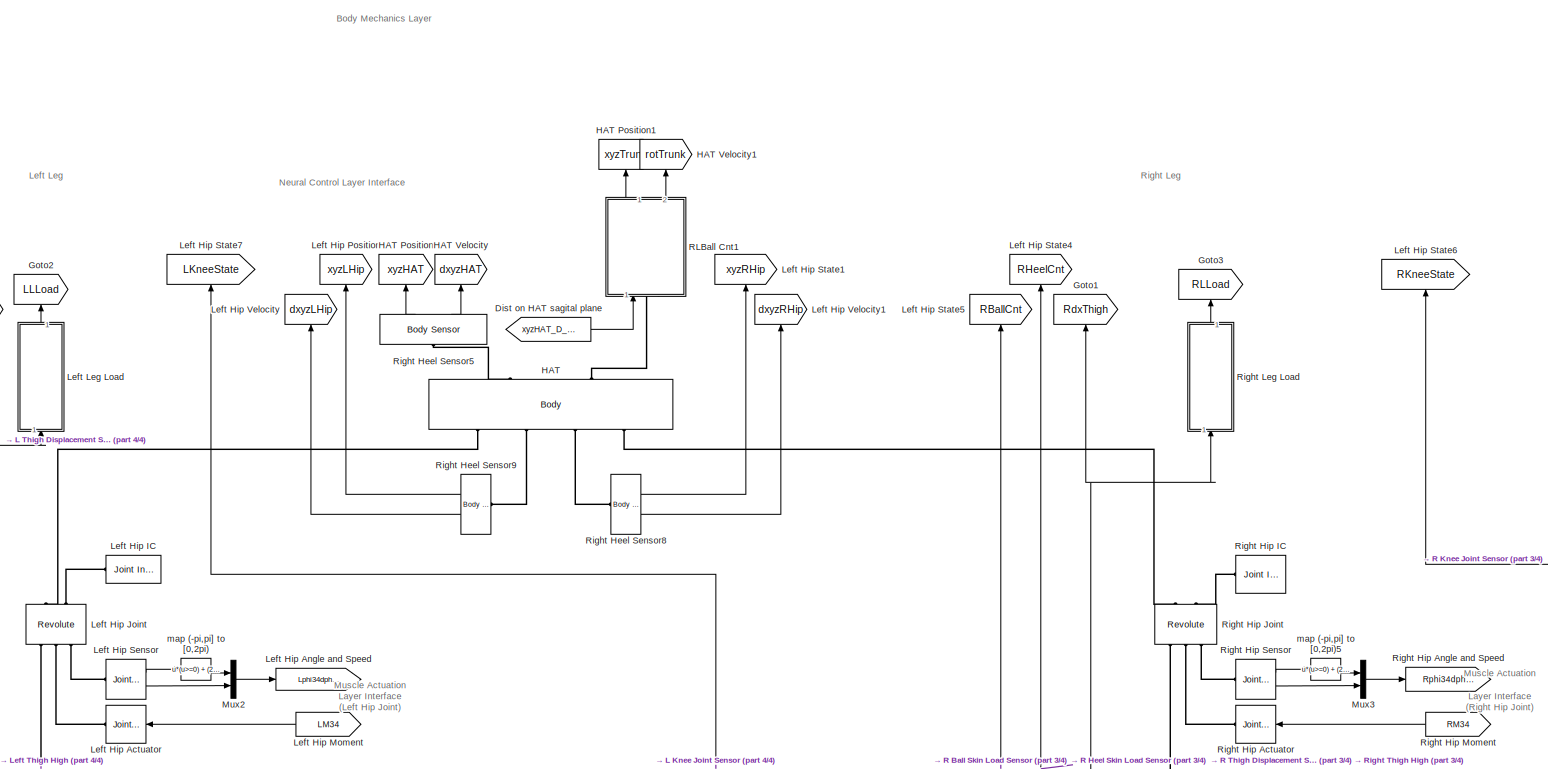
[diagram: Body Mechanics Layer - part 1/4, top center region]
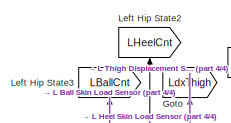
[diagram: Body Mechanics Layer - part 2/4, top left region]
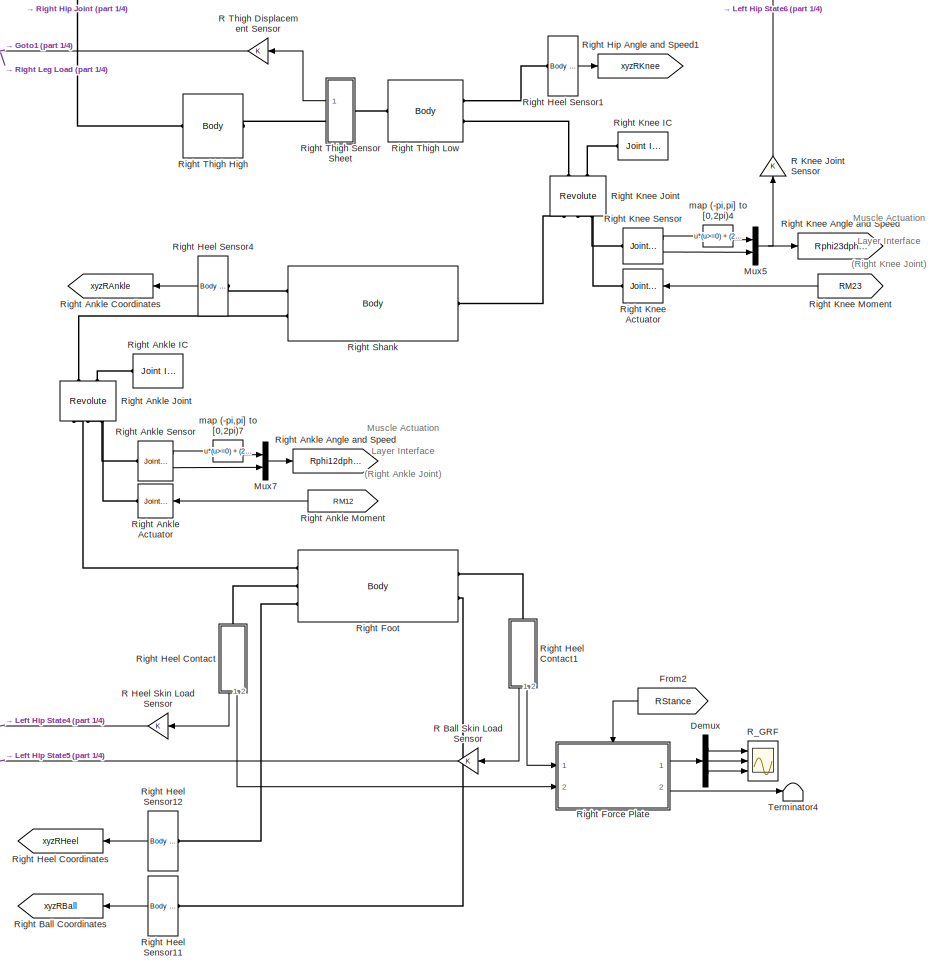
[diagram: Body Mechanics Layer - part 3/4, bottom right region]
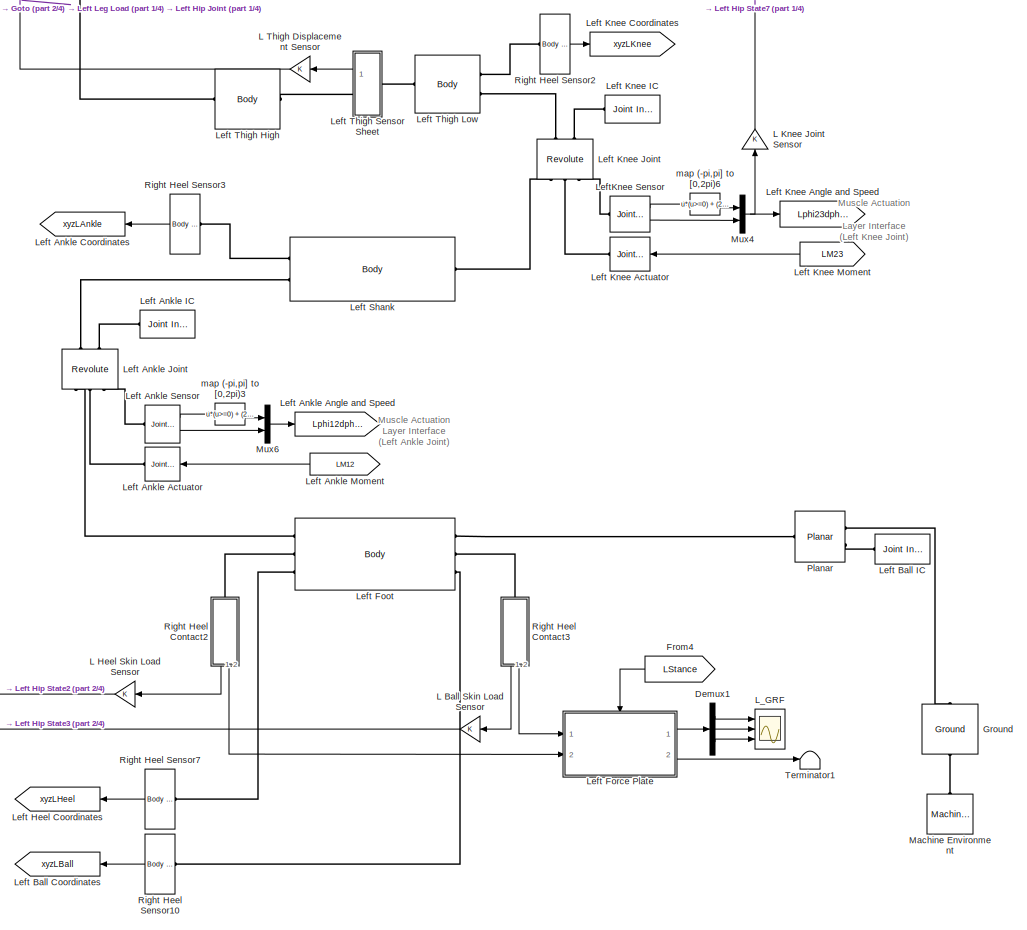
[diagram: Body Mechanics Layer - part 4/4, bottom left region]
BLOCK [SubSystem] Body Mechanics Layer
  Ports = []
  RequestExecContextInheritance = off
  Variant = off
BLOCK [Demux] Body Mechanics Layer/Demux
  DisplayOption = bar
  Outputs = 3
  Ports = [1, 3]
BLOCK [Demux] Body Mechanics Layer/Demux1
  DisplayOption = bar
  Outputs = 3
  Ports = [1, 3]
BLOCK [From] Body Mechanics Layer/Dist on HAT sagital plane
  CloseFcn = tagdialog Close
  GotoTag = xyzHAT_D_sag
  TagVisibility = global
BLOCK [From] Body Mechanics Layer/From2
  CloseFcn = tagdialog Close
  GotoTag = RStance
  TagVisibility = global
BLOCK [From] Body Mechanics Layer/From4
  CloseFcn = tagdialog Close
  GotoTag = LStance
  TagVisibility = global
BLOCK [Goto] Body Mechanics Layer/Goto
  GotoTag = LdxThigh
  TagVisibility = global
BLOCK [Goto] Body Mechanics Layer/Goto1
  GotoTag = RdxThigh
  TagVisibility = global
BLOCK [Goto] Body Mechanics Layer/Goto2
  GotoTag = LLLoad
  TagVisibility = global
BLOCK [Goto] Body Mechanics Layer/Goto3
  GotoTag = RLLoad
  TagVisibility = global
BLOCK [Reference] Body Mechanics Layer/Ground  REF=mblibv1/Bodies/Ground
  Ports = [0, 0, 0, 0, 0, 1, 1]
  SourceBlock = mblibv1/Bodies/Ground
  SourceType = Ground
  UserDataPersistent = on
BLOCK [Reference] Body Mechanics Layer/HAT  REF=mblibv1/Bodies/Body
  Ports = [0, 0, 0, 0, 0, 2, 4]
  SourceBlock = mblibv1/Bodies/Body
  SourceType = Body
BLOCK [Goto] Body Mechanics Layer/HAT Position
  GotoTag = xyzHAT
  TagVisibility = global
BLOCK [Goto] Body Mechanics Layer/HAT Position1
  GotoTag = xyzTrunk
  TagVisibility = global
BLOCK [Goto] Body Mechanics Layer/HAT Velocity
  GotoTag = dxyzHAT
  TagVisibility = global
BLOCK [Goto] Body Mechanics Layer/HAT Velocity1
  GotoTag = rotTrunk
  TagVisibility = global
BLOCK [Gain] Body Mechanics Layer/L Ball Skin Load Sensor
  OutDataTypeStr = Inherit: Inherit via internal rule
  ParamDataTypeStr = Inherit: Inherit via internal rule
  SaturateOnIntegerOverflow = off
BLOCK [Gain] Body Mechanics Layer/L Heel Skin Load Sensor
  OutDataTypeStr = Inherit: Inherit via internal rule
  ParamDataTypeStr = Inherit: Inherit via internal rule
  SaturateOnIntegerOverflow = off
BLOCK [Gain] Body Mechanics Layer/L Knee Joint Sensor
  OutDataTypeStr = Inherit: Inherit via internal rule
  ParamDataTypeStr = Inherit: Inherit via internal rule
  SaturateOnIntegerOverflow = off
BLOCK [Gain] Body Mechanics Layer/L Thigh Displacement  Sensor
  OutDataTypeStr = Inherit: Inherit via internal rule
  ParamDataTypeStr = Inherit: Inherit via internal rule
  SaturateOnIntegerOverflow = off
BLOCK [Scope] Body Mechanics Layer/L_GRF
  NumInputPorts = 3
  Ports = [3]
  ScopeSpecificationString = Simulink.scopes.TimeScopeBlockCfg('CurrentConfiguration', extmgr.ConfigurationSet(extmgr.Configuration('Core','General UI',true),extmgr.Configuration('Core','Source UI',true),extmgr.Configuration('Sources','WiredSimulink',true,'DataLoggingVariableName','GRF_Heel5','DataLoggingSaveFormat','Array','DataLoggingLimitDataPoints',true,'DataLoggingDecimation','1','DataLoggingDecimateData',true),extmgr.Co...<+3190ch>
BLOCK [Reference] Body Mechanics Layer/Left Ankle Actuator  REF=mblibv1/Sensors & 
Actuators/Joint Actuator
  Ports = [1, 0, 0, 0, 0, 0, 1]
  SourceBlock = mblibv1/Sensors & \nActuators/Joint Actuator
  SourceType = Joint Actuator
BLOCK [Goto] Body Mechanics Layer/Left Ankle Angle and Speed
  GotoTag = Lphi12dphi12
  TagVisibility = global
BLOCK [Goto] Body Mechanics Layer/Left Ankle Coordinates
  GotoTag = xyzLAnkle
  TagVisibility = global
BLOCK [Reference] Body Mechanics Layer/Left Ankle IC  REF=mblibv1/Sensors & 
Actuators/Joint Initial Condition
  Ports = [0, 0, 0, 0, 0, 0, 1]
  SourceBlock = mblibv1/Sensors & \nActuators/Joint Initial Condition
  SourceType = Joint Initial Condition
BLOCK [Reference] Body Mechanics Layer/Left Ankle Joint  REF=mblibv1/Joints/Revolute
  Ports = [0, 0, 0, 0, 0, 3, 2]
  SourceBlock = mblibv1/Joints/Revolute
  SourceType = Revolute
BLOCK [From] Body Mechanics Layer/Left Ankle Moment
  CloseFcn = tagdialog Close
  GotoTag = LM12
  TagVisibility = global
BLOCK [Reference] Body Mechanics Layer/Left Ankle Sensor  REF=mblibv1/Sensors & 
Actuators/Joint Sensor
  Ports = [0, 2, 0, 0, 0, 1]
  SourceBlock = mblibv1/Sensors & \nActuators/Joint Sensor
  SourceType = Joint Sensor
BLOCK [Goto] Body Mechanics Layer/Left Ball Coordinates
  GotoTag = xyzLBall
  TagVisibility = global
BLOCK [Reference] Body Mechanics Layer/Left Ball IC  REF=mblibv1/Sensors & 
Actuators/Joint Initial Condition
  Ports = [0, 0, 0, 0, 0, 0, 1]
  SourceBlock = mblibv1/Sensors & \nActuators/Joint Initial Condition
  SourceType = Joint Initial Condition
BLOCK [Reference] Body Mechanics Layer/Left Foot  REF=mblibv1/Bodies/Body
  Ports = [0, 0, 0, 0, 0, 3, 3]
  SourceBlock = mblibv1/Bodies/Body
  SourceType = Body
BLOCK [SubSystem] Body Mechanics Layer/Left Force Plate
  Ports = [2, 2, 1]
  RequestExecContextInheritance = off
  TreatAsAtomicUnit = on
  Variant = off
BLOCK [Outport] Body Mechanics Layer/Left Force Plate/COP
  IconDisplay = Port number
  InitialOutput = 0
  OutputWhenDisabled = reset
  Port = 2
BLOCK [EnablePort] Body Mechanics Layer/Left Force Plate/Enable
  Ports = []
  StatesWhenEnabling = reset
BLOCK [Fcn] Body Mechanics Layer/Left Force Plate/Fcn
  Expr = u(1)/(u(2)+eps)
BLOCK [Inport] Body Mechanics Layer/Left Force Plate/GRF_Ball [N N] 
  IconDisplay = Port number
BLOCK [Inport] Body Mechanics Layer/Left Force Plate/GRF_Heel [N N]
  IconDisplay = Port number
  Port = 2
BLOCK [Outport] Body Mechanics Layer/Left Force Plate/GRFs
  IconDisplay = Port number
  InitialOutput = 0
  OutputWhenDisabled = reset
BLOCK [Mux] Body Mechanics Layer/Left Force Plate/Mux
  DisplayOption = bar
  Inputs = 3
  Ports = [3, 1]
BLOCK [Mux] Body Mechanics Layer/Left Force Plate/Mux1
  DisplayOption = bar
  Inputs = 2
  Ports = [2, 1]
BLOCK [Selector] Body Mechanics Layer/Left Force Plate/Selector
  IndexOptions = Index vector (dialog)
  Indices = 2
  InputPortWidth = 2
  OutputSizes = 1
  Ports = [1, 1]
BLOCK [Selector] Body Mechanics Layer/Left Force Plate/Selector1
  IndexOptions = Index vector (dialog)
  Indices = 2
  InputPortWidth = 2
  OutputSizes = 1
  Ports = [1, 1]
BLOCK [Sum] Body Mechanics Layer/Left Force Plate/Sum1
  IconShape = round
  InputSameDT = off
  OutDataTypeStr = Inherit: Inherit via internal rule
  Ports = [2, 1]
  SaturateOnIntegerOverflow = off
BLOCK [Goto] Body Mechanics Layer/Left Heel Coordinates
  GotoTag = xyzLHeel
  TagVisibility = global
BLOCK [Reference] Body Mechanics Layer/Left Hip Actuator  REF=mblibv1/Sensors & 
Actuators/Joint Actuator
  Ports = [1, 0, 0, 0, 0, 0, 1]
  SourceBlock = mblibv1/Sensors & \nActuators/Joint Actuator
  SourceType = Joint Actuator
BLOCK [Goto] Body Mechanics Layer/Left Hip Angle and Speed
  GotoTag = Lphi34dphi34
  TagVisibility = global
BLOCK [Reference] Body Mechanics Layer/Left Hip IC  REF=mblibv1/Sensors & 
Actuators/Joint Initial Condition
  Ports = [0, 0, 0, 0, 0, 0, 1]
  SourceBlock = mblibv1/Sensors & \nActuators/Joint Initial Condition
  SourceType = Joint Initial Condition
BLOCK [Reference] Body Mechanics Layer/Left Hip Joint  REF=mblibv1/Joints/Revolute
  Ports = [0, 0, 0, 0, 0, 3, 2]
  SourceBlock = mblibv1/Joints/Revolute
  SourceType = Revolute
BLOCK [From] Body Mechanics Layer/Left Hip Moment
  CloseFcn = tagdialog Close
  GotoTag = LM34
  TagVisibility = global
BLOCK [Goto] Body Mechanics Layer/Left Hip Position
  GotoTag = xyzLHip
  TagVisibility = global
BLOCK [Reference] Body Mechanics Layer/Left Hip Sensor  REF=mblibv1/Sensors & 
Actuators/Joint Sensor
  Ports = [0, 2, 0, 0, 0, 1]
  SourceBlock = mblibv1/Sensors & \nActuators/Joint Sensor
  SourceType = Joint Sensor
BLOCK [Goto] Body Mechanics Layer/Left Hip State1
  GotoTag = xyzRHip
  TagVisibility = global
BLOCK [Goto] Body Mechanics Layer/Left Hip State2
  GotoTag = LHeelCnt
  TagVisibility = global
BLOCK [Goto] Body Mechanics Layer/Left Hip State3
  GotoTag = LBallCnt
  TagVisibility = global
BLOCK [Goto] Body Mechanics Layer/Left Hip State4
  GotoTag = RHeelCnt
  TagVisibility = global
BLOCK [Goto] Body Mechanics Layer/Left Hip State5
  GotoTag = RBallCnt
  TagVisibility = global
BLOCK [Goto] Body Mechanics Layer/Left Hip State6
  GotoTag = RKneeState
  TagVisibility = global
BLOCK [Goto] Body Mechanics Layer/Left Hip State7
  GotoTag = LKneeState
  TagVisibility = global
BLOCK [Goto] Body Mechanics Layer/Left Hip Velocity
  GotoTag = dxyzLHip
  TagVisibility = global
BLOCK [Goto] Body Mechanics Layer/Left Hip Velocity1
  GotoTag = dxyzRHip
  TagVisibility = global
BLOCK [Reference] Body Mechanics Layer/Left Knee Actuator  REF=mblibv1/Sensors & 
Actuators/Joint Actuator
  Ports = [1, 0, 0, 0, 0, 0, 1]
  SourceBlock = mblibv1/Sensors & \nActuators/Joint Actuator
  SourceType = Joint Actuator
BLOCK [Goto] Body Mechanics Layer/Left Knee Angle and Speed
  GotoTag = Lphi23dphi23
  TagVisibility = global
BLOCK [Goto] Body Mechanics Layer/Left Knee Coordinates
  GotoTag = xyzLKnee
  TagVisibility = global
BLOCK [Reference] Body Mechanics Layer/Left Knee IC  REF=mblibv1/Sensors & 
Actuators/Joint Initial Condition
  Ports = [0, 0, 0, 0, 0, 0, 1]
  SourceBlock = mblibv1/Sensors & \nActuators/Joint Initial Condition
  SourceType = Joint Initial Condition
BLOCK [Reference] Body Mechanics Layer/Left Knee Joint  REF=mblibv1/Joints/Revolute
  Ports = [0, 0, 0, 0, 0, 3, 2]
  SourceBlock = mblibv1/Joints/Revolute
  SourceType = Revolute
BLOCK [From] Body Mechanics Layer/Left Knee Moment
  CloseFcn = tagdialog Close
  GotoTag = LM23
  TagVisibility = global
BLOCK [SubSystem] Body Mechanics Layer/Left Leg Load
  Ports = [1, 1]
  RequestExecContextInheritance = off
  Variant = off
BLOCK [Gain] Body Mechanics Layer/Left Leg Load/FB Gain1
  Gain = 1/DeltaThRef
BLOCK [Outport] Body Mechanics Layer/Left Leg Load/LLoad [F]
  IconDisplay = Port number
BLOCK [Saturate] Body Mechanics Layer/Left Leg Load/Saturation11
  InputPortMap = u0
  LowerLimit = 0
  Ports = [1, 1]
  UpperLimit = inf
  ZeroCross = off
BLOCK [Inport] Body Mechanics Layer/Left Leg Load/dxThigh [m]
  IconDisplay = Port number
BLOCK [TransferFcn] Body Mechanics Layer/Left Leg Load/smooth2
  Denominator = [0.02 1]
BLOCK [Reference] Body Mechanics Layer/Left Shank  REF=mblibv1/Bodies/Body
  Ports = [0, 0, 0, 0, 0, 2, 1]
  SourceBlock = mblibv1/Bodies/Body
  SourceType = Body
BLOCK [Reference] Body Mechanics Layer/Left Thigh High  REF=mblibv1/Bodies/Body
  Ports = [0, 0, 0, 0, 0, 1, 1]
  SourceBlock = mblibv1/Bodies/Body
  SourceType = Body
BLOCK [Reference] Body Mechanics Layer/Left Thigh Low  REF=mblibv1/Bodies/Body
  Ports = [0, 0, 0, 0, 0, 1, 2]
  SourceBlock = mblibv1/Bodies/Body
  SourceType = Body
BLOCK [SubSystem] Body Mechanics Layer/Left Thigh Sensor Sheet
  Ports = [0, 1, 0, 0, 0, 1, 1]
  RequestExecContextInheritance = off
  Variant = off
BLOCK [PMIOPort] Body Mechanics Layer/Left Thigh Sensor Sheet/B
  Port = 1
  Side = Left
  Tag = PMCPort
BLOCK [PMIOPort] Body Mechanics Layer/Left Thigh Sensor Sheet/F
  Port = 2
  Side = Right
  Tag = PMCPort
BLOCK [Gain] Body Mechanics Layer/Left Thigh Sensor Sheet/Gain3
  Gain = k_pressure
  OutDataTypeStr = Inherit: Inherit via internal rule
  ParamDataTypeStr = Inherit: Inherit via internal rule
  SaturateOnIntegerOverflow = off
BLOCK [Gain] Body Mechanics Layer/Left Thigh Sensor Sheet/Gain4
  Gain = 1/v_max_pressure
  OutDataTypeStr = Inherit: Inherit via internal rule
  ParamDataTypeStr = Inherit: Inherit via internal rule
  SaturateOnIntegerOverflow = off
BLOCK [Reference] Body Mechanics Layer/Left Thigh Sensor Sheet/Inner Thigh Shift Joint  REF=mblibv1/Joints/Prismatic
  Ports = [0, 0, 0, 0, 0, 3, 2]
  SourceBlock = mblibv1/Joints/Prismatic
  SourceType = Prismatic
BLOCK [Reference] Body Mechanics Layer/Left Thigh Sensor Sheet/Left Thigh Sensor Sheet IC  REF=mblibv1/Sensors & 
Actuators/Joint Initial Condition
  Ports = [0, 0, 0, 0, 0, 0, 1]
  SourceBlock = mblibv1/Sensors & \nActuators/Joint Initial Condition
  SourceType = Joint Initial Condition
BLOCK [Mux] Body Mechanics Layer/Left Thigh Sensor Sheet/Mux1
  DisplayOption = bar
  Inputs = 2
  Ports = [2, 1]
BLOCK [Fcn] Body Mechanics Layer/Left Thigh Sensor Sheet/Pressure Sheet Reaction Force
  Expr = -u(1) * (1+sgn(u(1))*u(2))
BLOCK [Reference] Body Mechanics Layer/Left Thigh Sensor Sheet/Thigh Actuator  REF=mblibv1/Sensors & 
Actuators/Joint Actuator
  Ports = [1, 0, 0, 0, 0, 0, 1]
  SourceBlock = mblibv1/Sensors & \nActuators/Joint Actuator
  SourceType = Joint Actuator
BLOCK [Reference] Body Mechanics Layer/Left Thigh Sensor Sheet/Thigh Sensor  REF=mblibv1/Sensors & 
Actuators/Joint Sensor
  Ports = [0, 2, 0, 0, 0, 1]
  SourceBlock = mblibv1/Sensors & \nActuators/Joint Sensor
  SourceType = Joint Sensor
BLOCK [Outport] Body Mechanics Layer/Left Thigh Sensor Sheet/dx
  IconDisplay = Port number
BLOCK [Reference] Body Mechanics Layer/LeftKnee Sensor  REF=mblibv1/Sensors & 
Actuators/Joint Sensor
  Ports = [0, 2, 0, 0, 0, 1]
  SourceBlock = mblibv1/Sensors & \nActuators/Joint Sensor
  SourceType = Joint Sensor
BLOCK [Reference] Body Mechanics Layer/Machine Environment  REF=mblibv1/Bodies/Machine
Environment
  Ports = [0, 0, 0, 0, 0, 0, 1]
  SourceBlock = mblibv1/Bodies/Machine\nEnvironment
  SourceType = Machine Environment
  Tag = Factory ground
BLOCK [Mux] Body Mechanics Layer/Mux2
  DisplayOption = bar
  Inputs = 2
  Ports = [2, 1]
BLOCK [Mux] Body Mechanics Layer/Mux3
  DisplayOption = bar
  Inputs = 2
  Ports = [2, 1]
BLOCK [Mux] Body Mechanics Layer/Mux4
  DisplayOption = bar
  Inputs = 2
  Ports = [2, 1]
BLOCK [Mux] Body Mechanics Layer/Mux5
  DisplayOption = bar
  Inputs = 2
  Ports = [2, 1]
BLOCK [Mux] Body Mechanics Layer/Mux6
  DisplayOption = bar
  Inputs = 2
  Ports = [2, 1]
BLOCK [Mux] Body Mechanics Layer/Mux7
  DisplayOption = bar
  Inputs = 2
  Ports = [2, 1]
BLOCK [Reference] Body Mechanics Layer/Planar  REF=mblibv1/Joints/Planar
  Ports = [0, 0, 0, 0, 0, 2, 1]
  SourceBlock = mblibv1/Joints/Planar
  SourceType = Planar
BLOCK [Gain] Body Mechanics Layer/R Ball Skin Load Sensor
  OutDataTypeStr = Inherit: Inherit via internal rule
  ParamDataTypeStr = Inherit: Inherit via internal rule
  SaturateOnIntegerOverflow = off
BLOCK [Gain] Body Mechanics Layer/R Heel Skin Load Sensor
  OutDataTypeStr = Inherit: Inherit via internal rule
  ParamDataTypeStr = Inherit: Inherit via internal rule
  SaturateOnIntegerOverflow = off
BLOCK [Gain] Body Mechanics Layer/R Knee Joint Sensor
  OutDataTypeStr = Inherit: Inherit via internal rule
  ParamDataTypeStr = Inherit: Inherit via internal rule
  SaturateOnIntegerOverflow = off
BLOCK [Gain] Body Mechanics Layer/R Thigh Displacement  Sensor
  OutDataTypeStr = Inherit: Inherit via internal rule
  ParamDataTypeStr = Inherit: Inherit via internal rule
  SaturateOnIntegerOverflow = off
BLOCK [SubSystem] Body Mechanics Layer/RLBall Cnt1
  Ports = [1, 2, 0, 0, 0, 1]
  RequestExecContextInheritance = off
  Variant = off
BLOCK [Reference] Body Mechanics Layer/RLBall Cnt1/Body Actuator  REF=mblibv1/Sensors & 
Actuators/Body Actuator
  Ports = [1, 0, 0, 0, 0, 0, 1]
  SourceBlock = mblibv1/Sensors & \nActuators/Body Actuator
  SourceType = Body Actuator
BLOCK [Constant] Body Mechanics Layer/RLBall Cnt1/Constant
  Value = 0
BLOCK [Inport] Body Mechanics Layer/RLBall Cnt1/Dist_sag
  IconDisplay = Port number
BLOCK [PMIOPort] Body Mechanics Layer/RLBall Cnt1/F
  Port = 1
  Side = Left
BLOCK [From] Body Mechanics Layer/RLBall Cnt1/From
  GotoTag = theta
  TagVisibility = global
BLOCK [Gain] Body Mechanics Layer/RLBall Cnt1/Gain
  Gain = -1
  OutDataTypeStr = Inherit: Inherit via internal rule
  ParamDataTypeStr = Inherit: Inherit via internal rule
  SaturateOnIntegerOverflow = off
BLOCK [Reference] Body Mechanics Layer/RLBall Cnt1/Mechanical Branching Bar  REF=mblibv1/Utilities/Mechanical
Branching
Bar
  Ports = [0, 0, 0, 0, 0, 1, 2]
  SourceBlock = mblibv1/Utilities/Mechanical\nBranching\nBar
  SourceType = Mechanical Branching Bar
BLOCK [Mux] Body Mechanics Layer/RLBall Cnt1/Mux
  DisplayOption = bar
  Inputs = 3
  Ports = [3, 1]
BLOCK [Outport] Body Mechanics Layer/RLBall Cnt1/Pos
  IconDisplay = Port number
BLOCK [Product] Body Mechanics Layer/RLBall Cnt1/Product
  InputSameDT = off
  OutDataTypeStr = Inherit: Inherit via internal rule
  Ports = [2, 1]
  RndMeth = Floor
  SaturateOnIntegerOverflow = off
BLOCK [Product] Body Mechanics Layer/RLBall Cnt1/Product1
  InputSameDT = off
  OutDataTypeStr = Inherit: Inherit via internal rule
  Ports = [2, 1]
  RndMeth = Floor
  SaturateOnIntegerOverflow = off
BLOCK [Reference] Body Mechanics Layer/RLBall Cnt1/Right Heel Sensor5  REF=mblibv1/Sensors & 
Actuators/Body Sensor
  Ports = [0, 2, 0, 0, 0, 1]
  SourceBlock = mblibv1/Sensors & \nActuators/Body Sensor
  SourceType = Body Sensor
BLOCK [Outport] Body Mechanics Layer/RLBall Cnt1/Rot
  IconDisplay = Port number
  Port = 2
BLOCK [Trigonometry] Body Mechanics Layer/RLBall Cnt1/Trigonometric Function
  Operator = cos
  Ports = [1, 1]
BLOCK [Trigonometry] Body Mechanics Layer/RLBall Cnt1/Trigonometric Function1
  Ports = [1, 1]
BLOCK [Scope] Body Mechanics Layer/R_GRF
  NumInputPorts = 3
  Ports = [3]
  ScopeSpecificationString = Simulink.scopes.TimeScopeBlockCfg('CurrentConfiguration', extmgr.ConfigurationSet(extmgr.Configuration('Core','General UI',true),extmgr.Configuration('Core','Source UI',true),extmgr.Configuration('Sources','WiredSimulink',true,'DataLoggingVariableName','GRF_Heel','DataLoggingSaveFormat','Array','DataLoggingLimitDataPoints',true,'DataLoggingDecimation','1','DataLoggingDecimateData',true),extmgr.Con...<+3071ch>
BLOCK [Reference] Body Mechanics Layer/Right Ankle Actuator  REF=mblibv1/Sensors & 
Actuators/Joint Actuator
  Ports = [1, 0, 0, 0, 0, 0, 1]
  SourceBlock = mblibv1/Sensors & \nActuators/Joint Actuator
  SourceType = Joint Actuator
BLOCK [Goto] Body Mechanics Layer/Right Ankle Angle and Speed
  GotoTag = Rphi12dphi12
  TagVisibility = global
BLOCK [Goto] Body Mechanics Layer/Right Ankle Coordinates
  GotoTag = xyzRAnkle
  TagVisibility = global
BLOCK [Reference] Body Mechanics Layer/Right Ankle IC  REF=mblibv1/Sensors & 
Actuators/Joint Initial Condition
  Ports = [0, 0, 0, 0, 0, 0, 1]
  SourceBlock = mblibv1/Sensors & \nActuators/Joint Initial Condition
  SourceType = Joint Initial Condition
BLOCK [Reference] Body Mechanics Layer/Right Ankle Joint  REF=mblibv1/Joints/Revolute
  Ports = [0, 0, 0, 0, 0, 3, 2]
  SourceBlock = mblibv1/Joints/Revolute
  SourceType = Revolute
BLOCK [From] Body Mechanics Layer/Right Ankle Moment
  CloseFcn = tagdialog Close
  GotoTag = RM12
  TagVisibility = global
BLOCK [Reference] Body Mechanics Layer/Right Ankle Sensor  REF=mblibv1/Sensors & 
Actuators/Joint Sensor
  Ports = [0, 2, 0, 0, 0, 1]
  SourceBlock = mblibv1/Sensors & \nActuators/Joint Sensor
  SourceType = Joint Sensor
BLOCK [Goto] Body Mechanics Layer/Right Ball Coordinates
  GotoTag = xyzRBall
  TagVisibility = global
BLOCK [Reference] Body Mechanics Layer/Right Foot  REF=mblibv1/Bodies/Body
  Ports = [0, 0, 0, 0, 0, 2, 3]
  SourceBlock = mblibv1/Bodies/Body
  SourceType = Body
BLOCK [SubSystem] Body Mechanics Layer/Right Force Plate
  Ports = [2, 2, 1]
  RequestExecContextInheritance = off
  TreatAsAtomicUnit = on
  Variant = off
BLOCK [Outport] Body Mechanics Layer/Right Force Plate/COP
  IconDisplay = Port number
  InitialOutput = 0
  OutputWhenDisabled = reset
  Port = 2
BLOCK [EnablePort] Body Mechanics Layer/Right Force Plate/Enable
  Ports = []
  StatesWhenEnabling = reset
BLOCK [Fcn] Body Mechanics Layer/Right Force Plate/Fcn
  Expr = u(1)/(u(2)+eps)
BLOCK [Inport] Body Mechanics Layer/Right Force Plate/GRF_Ball [N N] 
  IconDisplay = Port number
BLOCK [Inport] Body Mechanics Layer/Right Force Plate/GRF_Heel [N N]
  IconDisplay = Port number
  Port = 2
BLOCK [Outport] Body Mechanics Layer/Right Force Plate/GRFs
  IconDisplay = Port number
  InitialOutput = 0
  OutputWhenDisabled = reset
BLOCK [Mux] Body Mechanics Layer/Right Force Plate/Mux
  DisplayOption = bar
  Inputs = 3
  Ports = [3, 1]
BLOCK [Mux] Body Mechanics Layer/Right Force Plate/Mux1
  DisplayOption = bar
  Inputs = 2
  Ports = [2, 1]
BLOCK [Selector] Body Mechanics Layer/Right Force Plate/Selector
  IndexOptions = Index vector (dialog)
  Indices = 2
  InputPortWidth = 2
  OutputSizes = 1
  Ports = [1, 1]
BLOCK [Selector] Body Mechanics Layer/Right Force Plate/Selector1
  IndexOptions = Index vector (dialog)
  Indices = 2
  InputPortWidth = 2
  OutputSizes = 1
  Ports = [1, 1]
BLOCK [Sum] Body Mechanics Layer/Right Force Plate/Sum1
  IconShape = round
  InputSameDT = off
  OutDataTypeStr = Inherit: Inherit via internal rule
  Ports = [2, 1]
  SaturateOnIntegerOverflow = off
BLOCK [SubSystem] Body Mechanics Layer/Right Heel Contact
  Ports = [0, 2, 0, 0, 0, 1]
  RequestExecContextInheritance = off
  Variant = off
BLOCK [Reference] Body Mechanics Layer/Right Heel Contact/Body Actuator  REF=mblibv1/Sensors & 
Actuators/Body Actuator
  Ports = [1, 0, 0, 0, 0, 0, 1]
  SourceBlock = mblibv1/Sensors & \nActuators/Body Actuator
  SourceType = Body Actuator
BLOCK [Reference] Body Mechanics Layer/Right Heel Contact/Body Sensor  REF=mblibv1/Sensors & 
Actuators/Body Sensor
  Ports = [0, 1, 0, 0, 0, 1]
  SourceBlock = mblibv1/Sensors & \nActuators/Body Sensor
  SourceType = Body Sensor
BLOCK [Demux] Body Mechanics Layer/Right Heel Contact/Demux1
  DisplayOption = bar
  Ports = [1, 4]
BLOCK [PMIOPort] Body Mechanics Layer/Right Heel Contact/F
  Port = 1
  Side = Left
BLOCK [Outport] Body Mechanics Layer/Right Heel Contact/GRF [N N]
  IconDisplay = Port number
  Port = 2
BLOCK [Ground] Body Mechanics Layer/Right Heel Contact/Ground
BLOCK [SubSystem] Body Mechanics Layer/Right Heel Contact/Ground Friction Model
  Ports = [4, 3, 1]
  RequestExecContextInheritance = off
  Variant = off
BLOCK [EnablePort] Body Mechanics Layer/Right Heel Contact/Ground Friction Model/Contact!
  Ports = []
  StatesWhenEnabling = reset
BLOCK [DataTypeConversion] Body Mechanics Layer/Right Heel Contact/Ground Friction Model/Data Type Conversion
  OutDataTypeStr = double
  RndMeth = Floor
  SaturateOnIntegerOverflow = off
BLOCK [SubSystem] Body Mechanics Layer/Right Heel Contact/Ground Friction Model/Friction Switch
  Ports = [2, 1]
  RequestExecContextInheritance = off
  Variant = off
BLOCK [Memory] Body Mechanics Layer/Right Heel Contact/Ground Friction Model/Friction Switch/Memory
BLOCK [Reference] Body Mechanics Layer/Right Heel Contact/Ground Friction Model/Friction Switch/S-R Flip-Flop  REF=simulink_extras/Flip Flops/S-R
Flip-Flop
  Ports = [2, 2]
  SourceBlock = simulink_extras/Flip Flops/S-R\nFlip-Flop
  SourceType = SRFlipFlop
BLOCK [Inport] Body Mechanics Layer/Right Heel Contact/Ground Friction Model/Friction Switch/Slide!
  IconDisplay = Port number
BLOCK [Inport] Body Mechanics Layer/Right Heel Contact/Ground Friction Model/Friction Switch/Stick!
  IconDisplay = Port number
  Port = 2
BLOCK [Outport] Body Mechanics Layer/Right Heel Contact/Ground Friction Model/Friction Switch/Stiction
  IconDisplay = Port number
BLOCK [Terminator] Body Mechanics Layer/Right Heel Contact/Ground Friction Model/Friction Switch/Terminator
BLOCK [Outport] Body Mechanics Layer/Right Heel Contact/Ground Friction Model/Fx_Friction [N]
  AttributesFormatString = initial = '%<InitialOutput>'\nwhen\ndisabled\n'%<OutputWhenDisabled>'
  IconDisplay = Port number
  InitialOutput = 0
  OutputWhenDisabled = reset
  Port = 2
BLOCK [Outport] Body Mechanics Layer/Right Heel Contact/Ground Friction Model/Fy_Ground[N]
  AttributesFormatString = initial = '%<InitialOutput>'\nwhen disabled = '%<OutputWhenDisabled>'
  IconDisplay = Port number
  InitialOutput = 0
  OutputWhenDisabled = reset
BLOCK [Gain] Body Mechanics Layer/Right Heel Contact/Ground Friction Model/Gain3
  Gain = k_gy
  OutDataTypeStr = Inherit: Inherit via internal rule
  ParamDataTypeStr = Inherit: Inherit via internal rule
  SaturateOnIntegerOverflow = off
BLOCK [Gain] Body Mechanics Layer/Right Heel Contact/Ground Friction Model/Gain4
  Gain = 1/v_gy_max
  OutDataTypeStr = Inherit: Inherit via internal rule
  ParamDataTypeStr = Inherit: Inherit via internal rule
  SaturateOnIntegerOverflow = off
BLOCK [Logic] Body Mechanics Layer/Right Heel Contact/Ground Friction Model/Logical Operator
  AllPortsSameDT = off
  Operator = NOT
  OutDataTypeStr = boolean
  Ports = [1, 1]
BLOCK [Mux] Body Mechanics Layer/Right Heel Contact/Ground Friction Model/Mux1
  DisplayOption = bar
  Inputs = 2
  Ports = [2, 1]
BLOCK [Outport] Body Mechanics Layer/Right Heel Contact/Ground Friction Model/Stiction!
  AttributesFormatString = initial = '%<InitialOutput>'\nwhen\ndisabled\n'%<OutputWhenDisabled>'
  IconDisplay = Port number
  InitialOutput = 0
  OutputWhenDisabled = reset
  Port = 3
BLOCK [Sum] Body Mechanics Layer/Right Heel Contact/Ground Friction Model/Sum1
  IconShape = round
  InputSameDT = off
  OutDataTypeStr = Inherit: Inherit via internal rule
  Ports = [2, 1]
  SaturateOnIntegerOverflow = off
BLOCK [SubSystem] Body Mechanics Layer/Right Heel Contact/Ground Friction Model/X-Axis Kinetic Friction Model
  Ports = [3, 3, 1]
  RequestExecContextInheritance = off
  Variant = off
BLOCK [Abs] Body Mechanics Layer/Right Heel Contact/Ground Friction Model/X-Axis Kinetic Friction Model/Abs
  SaturateOnIntegerOverflow = off
BLOCK [Constant] Body Mechanics Layer/Right Heel Contact/Ground Friction Model/X-Axis Kinetic Friction Model/Constant
  Value = vLimit
BLOCK [EnablePort] Body Mechanics Layer/Right Heel Contact/Ground Friction Model/X-Axis Kinetic Friction Model/Enable
  Ports = []
  StatesWhenEnabling = reset
  ZeroCross = off
BLOCK [Inport] Body Mechanics Layer/Right Heel Contact/Ground Friction Model/X-Axis Kinetic Friction Model/F_Normal [N]
  IconDisplay = Port number
  Port = 3
BLOCK [Outport] Body Mechanics Layer/Right Heel Contact/Ground Friction Model/X-Axis Kinetic Friction Model/F_Slide [N]
  AttributesFormatString = initial = '%<InitialOutput>'\nwhen disabled = '%<OutputWhenDisabled>'
  IconDisplay = Port number
  InitialOutput = 0
  OutputWhenDisabled = reset
  Port = 3
BLOCK [RelationalOperator] Body Mechanics Layer/Right Heel Contact/Ground Friction Model/X-Axis Kinetic Friction Model/FixPt Relational Operator
  InputSameDT = off
  Operator = >
  OutDataTypeStr = boolean
  Ports = [2, 1]
  ZeroCross = off
BLOCK [Memory] Body Mechanics Layer/Right Heel Contact/Ground Friction Model/X-Axis Kinetic Friction Model/Memory
BLOCK [Reference] Body Mechanics Layer/Right Heel Contact/Ground Friction Model/X-Axis Kinetic Friction Model/Negative  REF=simulink/Logic and Bit
Operations/Compare
To Zero
  Ports = [1, 1]
  SourceBlock = simulink/Logic and Bit\nOperations/Compare\nTo Zero
  SourceType = Compare To Zero
BLOCK [Product] Body Mechanics Layer/Right Heel Contact/Ground Friction Model/X-Axis Kinetic Friction Model/Product
  InputSameDT = off
  OutDataTypeStr = Inherit: Inherit via internal rule
  Ports = [2, 1]
  SaturateOnIntegerOverflow = off
BLOCK [Signum] Body Mechanics Layer/Right Heel Contact/Ground Friction Model/X-Axis Kinetic Friction Model/Sign1
BLOCK [Outport] Body Mechanics Layer/Right Heel Contact/Ground Friction Model/X-Axis Kinetic Friction Model/Stiction!
  AttributesFormatString = initial = '%<InitialOutput>'\nwhen disabled = '%<OutputWhenDisabled>'
  IconDisplay = Port number
  InitialOutput = 0
  OutputWhenDisabled = reset
  Port = 2
BLOCK [Sum] Body Mechanics Layer/Right Heel Contact/Ground Friction Model/X-Axis Kinetic Friction Model/Sum
  IconShape = round
  InputSameDT = off
  Inputs = |+-
  OutDataTypeStr = Inherit: Inherit via internal rule
  Ports = [2, 1]
  SaturateOnIntegerOverflow = off
BLOCK [Inport] Body Mechanics Layer/Right Heel Contact/Ground Friction Model/X-Axis Kinetic Friction Model/pos [m]
  IconDisplay = Port number
BLOCK [Outport] Body Mechanics Layer/Right Heel Contact/Ground Friction Model/X-Axis Kinetic Friction Model/posFP [m]
  AttributesFormatString = initial = '%<InitialOutput>'\nwhen disabled = '%<OutputWhenDisabled>'
  IconDisplay = Port number
  InitialOutput = 0
BLOCK [Gain] Body Mechanics Layer/Right Heel Contact/Ground Friction Model/X-Axis Kinetic Friction Model/reverse
  Gain = -1
  OutDataTypeStr = Inherit: Inherit via internal rule
  ParamDataTypeStr = Inherit: Inherit via internal rule
  SaturateOnIntegerOverflow = off
BLOCK [Gain] Body Mechanics Layer/Right Heel Contact/Ground Friction Model/X-Axis Kinetic Friction Model/sliding friction coefficient
  Gain = mu_slide
  OutDataTypeStr = Inherit: Inherit via internal rule
  ParamDataTypeStr = Inherit: Inherit via internal rule
  SaturateOnIntegerOverflow = off
BLOCK [Inport] Body Mechanics Layer/Right Heel Contact/Ground Friction Model/X-Axis Kinetic Friction Model/vel [m//s]
  IconDisplay = Port number
  Port = 2
BLOCK [SubSystem] Body Mechanics Layer/Right Heel Contact/Ground Friction Model/X-Axis Static Friction Model
  Ports = [4, 2, 1]
  RequestExecContextInheritance = off
  Variant = off
BLOCK [Abs] Body Mechanics Layer/Right Heel Contact/Ground Friction Model/X-Axis Static Friction Model/Abs
  SaturateOnIntegerOverflow = off
BLOCK [Abs] Body Mechanics Layer/Right Heel Contact/Ground Friction Model/X-Axis Static Friction Model/Abs.
  SaturateOnIntegerOverflow = off
BLOCK [Product] Body Mechanics Layer/Right Heel Contact/Ground Friction Model/X-Axis Static Friction Model/Check Vertical Friction
  InputSameDT = off
  OutDataTypeStr = Inherit: Inherit via internal rule
  Ports = [2, 1]
  SaturateOnIntegerOverflow = off
BLOCK [EnablePort] Body Mechanics Layer/Right Heel Contact/Ground Friction Model/X-Axis Static Friction Model/Enable
  Ports = []
  StatesWhenEnabling = reset
  ZeroCross = off
BLOCK [Inport] Body Mechanics Layer/Right Heel Contact/Ground Friction Model/X-Axis Static Friction Model/F_Normal [N]
  IconDisplay = Port number
BLOCK [Outport] Body Mechanics Layer/Right Heel Contact/Ground Friction Model/X-Axis Static Friction Model/F_Stick [N]
  AttributesFormatString = when disabled: %<OutputWhenDisabled>\ninitial: %<InitialOutput>
  IconDisplay = Port number
  InitialOutput = 0
  OutputWhenDisabled = reset
BLOCK [RelationalOperator] Body Mechanics Layer/Right Heel Contact/Ground Friction Model/X-Axis Static Friction Model/FixPt Relational Operator
  InputSameDT = off
  Operator = >
  OutDataTypeStr = boolean
  Ports = [2, 1]
  ZeroCross = off
BLOCK [Gain] Body Mechanics Layer/Right Heel Contact/Ground Friction Model/X-Axis Static Friction Model/Gain3
  Gain = k_gx
  OutDataTypeStr = Inherit: Inherit via internal rule
  ParamDataTypeStr = Inherit: Inherit via internal rule
  SaturateOnIntegerOverflow = off
BLOCK [Gain] Body Mechanics Layer/Right Heel Contact/Ground Friction Model/X-Axis Static Friction Model/Gain4
  Gain = 1/v_gx_max
  OutDataTypeStr = Inherit: Inherit via internal rule
  ParamDataTypeStr = Inherit: Inherit via internal rule
  SaturateOnIntegerOverflow = off
BLOCK [Memory] Body Mechanics Layer/Right Heel Contact/Ground Friction Model/X-Axis Static Friction Model/Memory
BLOCK [Mux] Body Mechanics Layer/Right Heel Contact/Ground Friction Model/X-Axis Static Friction Model/Mux1
  DisplayOption = bar
  Inputs = 2
  Ports = [2, 1]
BLOCK [Reference] Body Mechanics Layer/Right Heel Contact/Ground Friction Model/X-Axis Static Friction Model/Positive  REF=simulink/Logic and Bit
Operations/Compare
To Zero
  Ports = [1, 1]
  SourceBlock = simulink/Logic and Bit\nOperations/Compare\nTo Zero
  SourceType = Compare To Zero
BLOCK [Reference] Body Mechanics Layer/Right Heel Contact/Ground Friction Model/X-Axis Static Friction Model/Positive1  REF=simulink/Logic and Bit
Operations/Compare
To Zero
  Ports = [1, 1]
  SourceBlock = simulink/Logic and Bit\nOperations/Compare\nTo Zero
  SourceType = Compare To Zero
BLOCK [Outport] Body Mechanics Layer/Right Heel Contact/Ground Friction Model/X-Axis Static Friction Model/Sliding!
  AttributesFormatString = when disabled: %<OutputWhenDisabled>\ninitial: %<InitialOutput>
  IconDisplay = Port number
  InitialOutput = 0
  OutputWhenDisabled = reset
  Port = 2
BLOCK [Sum] Body Mechanics Layer/Right Heel Contact/Ground Friction Model/X-Axis Static Friction Model/Sum
  IconShape = round
  InputSameDT = off
  Inputs = -+
  OutDataTypeStr = Inherit: Inherit via internal rule
  Ports = [2, 1]
  SaturateOnIntegerOverflow = off
BLOCK [Sum] Body Mechanics Layer/Right Heel Contact/Ground Friction Model/X-Axis Static Friction Model/Sum2
  IconShape = round
  InputSameDT = off
  Inputs = -+|
  OutDataTypeStr = Inherit: Inherit via internal rule
  Ports = [2, 1]
  SaturateOnIntegerOverflow = off
BLOCK [Fcn] Body Mechanics Layer/Right Heel Contact/Ground Friction Model/X-Axis Static Friction Model/X-Axis Stiction Force
  Expr = -u(1) * (1+sgn(u(1))*u(2))
BLOCK [Inport] Body Mechanics Layer/Right Heel Contact/Ground Friction Model/X-Axis Static Friction Model/pos [m]
  IconDisplay = Port number
  Port = 2
BLOCK [Inport] Body Mechanics Layer/Right Heel Contact/Ground Friction Model/X-Axis Static Friction Model/posFP [m]
  IconDisplay = Port number
  Port = 4
BLOCK [Gain] Body Mechanics Layer/Right Heel Contact/Ground Friction Model/X-Axis Static Friction Model/stiction limit force
  Gain = mu_stick
  OutDataTypeStr = Inherit: Inherit via internal rule
  ParamDataTypeStr = Inherit: Inherit via internal rule
  SaturateOnIntegerOverflow = off
BLOCK [Inport] Body Mechanics Layer/Right Heel Contact/Ground Friction Model/X-Axis Static Friction Model/vel [m//s]
  IconDisplay = Port number
  Port = 3
BLOCK [Fcn] Body Mechanics Layer/Right Heel Contact/Ground Friction Model/Y-Axis Ground Force
  Expr = - u(1)  *  (1-u(2)) * (u(2)<1)
BLOCK [Inport] Body Mechanics Layer/Right Heel Contact/Ground Friction Model/dy [m]
  IconDisplay = Port number
BLOCK [Inport] Body Mechanics Layer/Right Heel Contact/Ground Friction Model/vx [m//s]
  IconDisplay = Port number
  Port = 4
BLOCK [Inport] Body Mechanics Layer/Right Heel Contact/Ground Friction Model/vy [m//s]
  IconDisplay = Port number
  Port = 2
BLOCK [Inport] Body Mechanics Layer/Right Heel Contact/Ground Friction Model/x [m]
  IconDisplay = Port number
  Port = 3
BLOCK [Reference] Body Mechanics Layer/Right Heel Contact/GroundFunction  REF=cpg_lib/GroundFunction  (lib defined in slx_bab08664fd68)
  Ports = [1, 2]
  SourceBlock = cpg_lib/GroundFunction
  SourceType = SubSystem
BLOCK [Reference] Body Mechanics Layer/Right Heel Contact/Mechanical Branching Bar  REF=mblibv1/Utilities/Mechanical
Branching
Bar
  Ports = [0, 0, 0, 0, 0, 1, 2]
  SourceBlock = mblibv1/Utilities/Mechanical\nBranching\nBar
  SourceType = Mechanical Branching Bar
BLOCK [Mux] Body Mechanics Layer/Right Heel Contact/Mux
  DisplayOption = bar
  Inputs = 2
  Ports = [2, 1]
BLOCK [Mux] Body Mechanics Layer/Right Heel Contact/Mux1
  DisplayOption = bar
  Inputs = 3
  Ports = [3, 1]
BLOCK [Outport] Body Mechanics Layer/Right Heel Contact/RHeelCnt
  IconDisplay = Port number
BLOCK [Sum] Body Mechanics Layer/Right Heel Contact/Sum
  IconShape = round
  InputSameDT = off
  Inputs = -+|
  OutDataTypeStr = Inherit: Inherit via internal rule
  Ports = [2, 1]
  SaturateOnIntegerOverflow = off
BLOCK [Terminator] Body Mechanics Layer/Right Heel Contact/Terminator
BLOCK [Terminator] Body Mechanics Layer/Right Heel Contact/Terminator1
BLOCK [Selector] Body Mechanics Layer/Right Heel Contact/[y y' x x']
  IndexOptions = Index vector (dialog)
  Indices = [2 5 1 4]
  InputPortWidth = 6
  OutputSizes = 1
  Ports = [1, 1]
BLOCK [Selector] Body Mechanics Layer/Right Heel Contact/[y y' x x']1
  IndexOptions = Index vector (dialog)
  Indices = [1 2 3]
  InputPortWidth = 6
  OutputSizes = 1
  Ports = [1, 1]
BLOCK [Reference] Body Mechanics Layer/Right Heel Contact/contact?  REF=simulink/Logic and Bit
Operations/Compare
To Zero
  Ports = [1, 1]
  SourceBlock = simulink/Logic and Bit\nOperations/Compare\nTo Zero
  SourceType = Compare To Zero
BLOCK [SubSystem] Body Mechanics Layer/Right Heel Contact1
  Ports = [0, 2, 0, 0, 0, 1]
  RequestExecContextInheritance = off
  Variant = off
BLOCK [Reference] Body Mechanics Layer/Right Heel Contact1/Body Actuator  REF=mblibv1/Sensors & 
Actuators/Body Actuator
  Ports = [1, 0, 0, 0, 0, 0, 1]
  SourceBlock = mblibv1/Sensors & \nActuators/Body Actuator
  SourceType = Body Actuator
BLOCK [Reference] Body Mechanics Layer/Right Heel Contact1/Body Sensor  REF=mblibv1/Sensors & 
Actuators/Body Sensor
  Ports = [0, 1, 0, 0, 0, 1]
  SourceBlock = mblibv1/Sensors & \nActuators/Body Sensor
  SourceType = Body Sensor
BLOCK [Demux] Body Mechanics Layer/Right Heel Contact1/Demux1
  DisplayOption = bar
  Ports = [1, 4]
BLOCK [PMIOPort] Body Mechanics Layer/Right Heel Contact1/F
  Port = 1
  Side = Left
BLOCK [Outport] Body Mechanics Layer/Right Heel Contact1/GRF [N N]
  IconDisplay = Port number
  Port = 2
BLOCK [Ground] Body Mechanics Layer/Right Heel Contact1/Ground
BLOCK [SubSystem] Body Mechanics Layer/Right Heel Contact1/Ground Friction Model
  Ports = [4, 3, 1]
  RequestExecContextInheritance = off
  Variant = off
BLOCK [EnablePort] Body Mechanics Layer/Right Heel Contact1/Ground Friction Model/Contact!
  Ports = []
  StatesWhenEnabling = reset
BLOCK [DataTypeConversion] Body Mechanics Layer/Right Heel Contact1/Ground Friction Model/Data Type Conversion
  OutDataTypeStr = double
  RndMeth = Floor
  SaturateOnIntegerOverflow = off
BLOCK [SubSystem] Body Mechanics Layer/Right Heel Contact1/Ground Friction Model/Friction Switch
  Ports = [2, 1]
  RequestExecContextInheritance = off
  Variant = off
BLOCK [Memory] Body Mechanics Layer/Right Heel Contact1/Ground Friction Model/Friction Switch/Memory
BLOCK [Reference] Body Mechanics Layer/Right Heel Contact1/Ground Friction Model/Friction Switch/S-R Flip-Flop  REF=simulink_extras/Flip Flops/S-R
Flip-Flop
  Ports = [2, 2]
  SourceBlock = simulink_extras/Flip Flops/S-R\nFlip-Flop
  SourceType = SRFlipFlop
BLOCK [Inport] Body Mechanics Layer/Right Heel Contact1/Ground Friction Model/Friction Switch/Slide!
  IconDisplay = Port number
BLOCK [Inport] Body Mechanics Layer/Right Heel Contact1/Ground Friction Model/Friction Switch/Stick!
  IconDisplay = Port number
  Port = 2
BLOCK [Outport] Body Mechanics Layer/Right Heel Contact1/Ground Friction Model/Friction Switch/Stiction
  IconDisplay = Port number
BLOCK [Terminator] Body Mechanics Layer/Right Heel Contact1/Ground Friction Model/Friction Switch/Terminator
BLOCK [Outport] Body Mechanics Layer/Right Heel Contact1/Ground Friction Model/Fx_Friction [N]
  AttributesFormatString = initial = '%<InitialOutput>'\nwhen\ndisabled\n'%<OutputWhenDisabled>'
  IconDisplay = Port number
  InitialOutput = 0
  OutputWhenDisabled = reset
  Port = 2
BLOCK [Outport] Body Mechanics Layer/Right Heel Contact1/Ground Friction Model/Fy_Ground[N]
  AttributesFormatString = initial = '%<InitialOutput>'\nwhen disabled = '%<OutputWhenDisabled>'
  IconDisplay = Port number
  InitialOutput = 0
  OutputWhenDisabled = reset
BLOCK [Gain] Body Mechanics Layer/Right Heel Contact1/Ground Friction Model/Gain3
  Gain = k_gy
  OutDataTypeStr = Inherit: Inherit via internal rule
  ParamDataTypeStr = Inherit: Inherit via internal rule
  SaturateOnIntegerOverflow = off
BLOCK [Gain] Body Mechanics Layer/Right Heel Contact1/Ground Friction Model/Gain4
  Gain = 1/v_gy_max
  OutDataTypeStr = Inherit: Inherit via internal rule
  ParamDataTypeStr = Inherit: Inherit via internal rule
  SaturateOnIntegerOverflow = off
BLOCK [Logic] Body Mechanics Layer/Right Heel Contact1/Ground Friction Model/Logical Operator
  AllPortsSameDT = off
  Operator = NOT
  OutDataTypeStr = boolean
  Ports = [1, 1]
BLOCK [Mux] Body Mechanics Layer/Right Heel Contact1/Ground Friction Model/Mux1
  DisplayOption = bar
  Inputs = 2
  Ports = [2, 1]
BLOCK [Outport] Body Mechanics Layer/Right Heel Contact1/Ground Friction Model/Stiction!
  AttributesFormatString = initial = '%<InitialOutput>'\nwhen\ndisabled\n'%<OutputWhenDisabled>'
  IconDisplay = Port number
  InitialOutput = 0
  OutputWhenDisabled = reset
  Port = 3
BLOCK [Sum] Body Mechanics Layer/Right Heel Contact1/Ground Friction Model/Sum1
  IconShape = round
  InputSameDT = off
  OutDataTypeStr = Inherit: Inherit via internal rule
  Ports = [2, 1]
  SaturateOnIntegerOverflow = off
BLOCK [SubSystem] Body Mechanics Layer/Right Heel Contact1/Ground Friction Model/X-Axis Kinetic Friction Model
  Ports = [3, 3, 1]
  RequestExecContextInheritance = off
  Variant = off
BLOCK [Abs] Body Mechanics Layer/Right Heel Contact1/Ground Friction Model/X-Axis Kinetic Friction Model/Abs
  SaturateOnIntegerOverflow = off
BLOCK [Constant] Body Mechanics Layer/Right Heel Contact1/Ground Friction Model/X-Axis Kinetic Friction Model/Constant
  Value = vLimit
BLOCK [EnablePort] Body Mechanics Layer/Right Heel Contact1/Ground Friction Model/X-Axis Kinetic Friction Model/Enable
  Ports = []
  StatesWhenEnabling = reset
  ZeroCross = off
BLOCK [Inport] Body Mechanics Layer/Right Heel Contact1/Ground Friction Model/X-Axis Kinetic Friction Model/F_Normal [N]
  IconDisplay = Port number
  Port = 3
BLOCK [Outport] Body Mechanics Layer/Right Heel Contact1/Ground Friction Model/X-Axis Kinetic Friction Model/F_Slide [N]
  AttributesFormatString = initial = '%<InitialOutput>'\nwhen disabled = '%<OutputWhenDisabled>'
  IconDisplay = Port number
  InitialOutput = 0
  OutputWhenDisabled = reset
  Port = 3
BLOCK [RelationalOperator] Body Mechanics Layer/Right Heel Contact1/Ground Friction Model/X-Axis Kinetic Friction Model/FixPt Relational Operator
  InputSameDT = off
  Operator = >
  OutDataTypeStr = boolean
  Ports = [2, 1]
  ZeroCross = off
BLOCK [Memory] Body Mechanics Layer/Right Heel Contact1/Ground Friction Model/X-Axis Kinetic Friction Model/Memory
BLOCK [Reference] Body Mechanics Layer/Right Heel Contact1/Ground Friction Model/X-Axis Kinetic Friction Model/Negative  REF=simulink/Logic and Bit
Operations/Compare
To Zero
  Ports = [1, 1]
  SourceBlock = simulink/Logic and Bit\nOperations/Compare\nTo Zero
  SourceType = Compare To Zero
BLOCK [Product] Body Mechanics Layer/Right Heel Contact1/Ground Friction Model/X-Axis Kinetic Friction Model/Product
  InputSameDT = off
  OutDataTypeStr = Inherit: Inherit via internal rule
  Ports = [2, 1]
  SaturateOnIntegerOverflow = off
BLOCK [Signum] Body Mechanics Layer/Right Heel Contact1/Ground Friction Model/X-Axis Kinetic Friction Model/Sign1
BLOCK [Outport] Body Mechanics Layer/Right Heel Contact1/Ground Friction Model/X-Axis Kinetic Friction Model/Stiction!
  AttributesFormatString = initial = '%<InitialOutput>'\nwhen disabled = '%<OutputWhenDisabled>'
  IconDisplay = Port number
  InitialOutput = 0
  OutputWhenDisabled = reset
  Port = 2
BLOCK [Sum] Body Mechanics Layer/Right Heel Contact1/Ground Friction Model/X-Axis Kinetic Friction Model/Sum
  IconShape = round
  InputSameDT = off
  Inputs = |+-
  OutDataTypeStr = Inherit: Inherit via internal rule
  Ports = [2, 1]
  SaturateOnIntegerOverflow = off
BLOCK [Inport] Body Mechanics Layer/Right Heel Contact1/Ground Friction Model/X-Axis Kinetic Friction Model/pos [m]
  IconDisplay = Port number
BLOCK [Outport] Body Mechanics Layer/Right Heel Contact1/Ground Friction Model/X-Axis Kinetic Friction Model/posFP [m]
  AttributesFormatString = initial = '%<InitialOutput>'\nwhen disabled = '%<OutputWhenDisabled>'
  IconDisplay = Port number
  InitialOutput = 0
BLOCK [Gain] Body Mechanics Layer/Right Heel Contact1/Ground Friction Model/X-Axis Kinetic Friction Model/reverse
  Gain = -1
  OutDataTypeStr = Inherit: Inherit via internal rule
  ParamDataTypeStr = Inherit: Inherit via internal rule
  SaturateOnIntegerOverflow = off
BLOCK [Gain] Body Mechanics Layer/Right Heel Contact1/Ground Friction Model/X-Axis Kinetic Friction Model/sliding friction coefficient
  Gain = mu_slide
  OutDataTypeStr = Inherit: Inherit via internal rule
  ParamDataTypeStr = Inherit: Inherit via internal rule
  SaturateOnIntegerOverflow = off
BLOCK [Inport] Body Mechanics Layer/Right Heel Contact1/Ground Friction Model/X-Axis Kinetic Friction Model/vel [m//s]
  IconDisplay = Port number
  Port = 2
BLOCK [SubSystem] Body Mechanics Layer/Right Heel Contact1/Ground Friction Model/X-Axis Static Friction Model
  Ports = [4, 2, 1]
  RequestExecContextInheritance = off
  Variant = off
BLOCK [Abs] Body Mechanics Layer/Right Heel Contact1/Ground Friction Model/X-Axis Static Friction Model/Abs
  SaturateOnIntegerOverflow = off
BLOCK [Abs] Body Mechanics Layer/Right Heel Contact1/Ground Friction Model/X-Axis Static Friction Model/Abs.
  SaturateOnIntegerOverflow = off
BLOCK [Product] Body Mechanics Layer/Right Heel Contact1/Ground Friction Model/X-Axis Static Friction Model/Check Vertical Friction
  InputSameDT = off
  OutDataTypeStr = Inherit: Inherit via internal rule
  Ports = [2, 1]
  SaturateOnIntegerOverflow = off
BLOCK [EnablePort] Body Mechanics Layer/Right Heel Contact1/Ground Friction Model/X-Axis Static Friction Model/Enable
  Ports = []
  StatesWhenEnabling = reset
  ZeroCross = off
BLOCK [Inport] Body Mechanics Layer/Right Heel Contact1/Ground Friction Model/X-Axis Static Friction Model/F_Normal [N]
  IconDisplay = Port number
BLOCK [Outport] Body Mechanics Layer/Right Heel Contact1/Ground Friction Model/X-Axis Static Friction Model/F_Stick [N]
  AttributesFormatString = when disabled: %<OutputWhenDisabled>\ninitial: %<InitialOutput>
  IconDisplay = Port number
  InitialOutput = 0
  OutputWhenDisabled = reset
BLOCK [RelationalOperator] Body Mechanics Layer/Right Heel Contact1/Ground Friction Model/X-Axis Static Friction Model/FixPt Relational Operator
  InputSameDT = off
  Operator = >
  OutDataTypeStr = boolean
  Ports = [2, 1]
  ZeroCross = off
BLOCK [Gain] Body Mechanics Layer/Right Heel Contact1/Ground Friction Model/X-Axis Static Friction Model/Gain3
  Gain = k_gx
  OutDataTypeStr = Inherit: Inherit via internal rule
  ParamDataTypeStr = Inherit: Inherit via internal rule
  SaturateOnIntegerOverflow = off
BLOCK [Gain] Body Mechanics Layer/Right Heel Contact1/Ground Friction Model/X-Axis Static Friction Model/Gain4
  Gain = 1/v_gx_max
  OutDataTypeStr = Inherit: Inherit via internal rule
  ParamDataTypeStr = Inherit: Inherit via internal rule
  SaturateOnIntegerOverflow = off
BLOCK [Memory] Body Mechanics Layer/Right Heel Contact1/Ground Friction Model/X-Axis Static Friction Model/Memory
BLOCK [Mux] Body Mechanics Layer/Right Heel Contact1/Ground Friction Model/X-Axis Static Friction Model/Mux1
  DisplayOption = bar
  Inputs = 2
  Ports = [2, 1]
BLOCK [Reference] Body Mechanics Layer/Right Heel Contact1/Ground Friction Model/X-Axis Static Friction Model/Positive  REF=simulink/Logic and Bit
Operations/Compare
To Zero
  Ports = [1, 1]
  SourceBlock = simulink/Logic and Bit\nOperations/Compare\nTo Zero
  SourceType = Compare To Zero
BLOCK [Reference] Body Mechanics Layer/Right Heel Contact1/Ground Friction Model/X-Axis Static Friction Model/Positive1  REF=simulink/Logic and Bit
Operations/Compare
To Zero
  Ports = [1, 1]
  SourceBlock = simulink/Logic and Bit\nOperations/Compare\nTo Zero
  SourceType = Compare To Zero
BLOCK [Outport] Body Mechanics Layer/Right Heel Contact1/Ground Friction Model/X-Axis Static Friction Model/Sliding!
  AttributesFormatString = when disabled: %<OutputWhenDisabled>\ninitial: %<InitialOutput>
  IconDisplay = Port number
  InitialOutput = 0
  OutputWhenDisabled = reset
  Port = 2
BLOCK [Sum] Body Mechanics Layer/Right Heel Contact1/Ground Friction Model/X-Axis Static Friction Model/Sum
  IconShape = round
  InputSameDT = off
  Inputs = -+
  OutDataTypeStr = Inherit: Inherit via internal rule
  Ports = [2, 1]
  SaturateOnIntegerOverflow = off
BLOCK [Sum] Body Mechanics Layer/Right Heel Contact1/Ground Friction Model/X-Axis Static Friction Model/Sum2
  IconShape = round
  InputSameDT = off
  Inputs = -+|
  OutDataTypeStr = Inherit: Inherit via internal rule
  Ports = [2, 1]
  SaturateOnIntegerOverflow = off
BLOCK [Fcn] Body Mechanics Layer/Right Heel Contact1/Ground Friction Model/X-Axis Static Friction Model/X-Axis Stiction Force
  Expr = -u(1) * (1+sgn(u(1))*u(2))
BLOCK [Inport] Body Mechanics Layer/Right Heel Contact1/Ground Friction Model/X-Axis Static Friction Model/pos [m]
  IconDisplay = Port number
  Port = 2
BLOCK [Inport] Body Mechanics Layer/Right Heel Contact1/Ground Friction Model/X-Axis Static Friction Model/posFP [m]
  IconDisplay = Port number
  Port = 4
BLOCK [Gain] Body Mechanics Layer/Right Heel Contact1/Ground Friction Model/X-Axis Static Friction Model/stiction limit force
  Gain = mu_stick
  OutDataTypeStr = Inherit: Inherit via internal rule
  ParamDataTypeStr = Inherit: Inherit via internal rule
  SaturateOnIntegerOverflow = off
BLOCK [Inport] Body Mechanics Layer/Right Heel Contact1/Ground Friction Model/X-Axis Static Friction Model/vel [m//s]
  IconDisplay = Port number
  Port = 3
BLOCK [Fcn] Body Mechanics Layer/Right Heel Contact1/Ground Friction Model/Y-Axis Ground Force
  Expr = - u(1)  *  (1-u(2)) * (u(2)<1)
BLOCK [Inport] Body Mechanics Layer/Right Heel Contact1/Ground Friction Model/dy [m]
  IconDisplay = Port number
BLOCK [Inport] Body Mechanics Layer/Right Heel Contact1/Ground Friction Model/vx [m//s]
  IconDisplay = Port number
  Port = 4
BLOCK [Inport] Body Mechanics Layer/Right Heel Contact1/Ground Friction Model/vy [m//s]
  IconDisplay = Port number
  Port = 2
BLOCK [Inport] Body Mechanics Layer/Right Heel Contact1/Ground Friction Model/x [m]
  IconDisplay = Port number
  Port = 3
BLOCK [Reference] Body Mechanics Layer/Right Heel Contact1/GroundFunction  REF=cpg_lib/GroundFunction  (lib defined in slx_bab08664fd68)
  Ports = [1, 2]
  SourceBlock = cpg_lib/GroundFunction
  SourceType = SubSystem
BLOCK [Reference] Body Mechanics Layer/Right Heel Contact1/Mechanical Branching Bar  REF=mblibv1/Utilities/Mechanical
Branching
Bar
  Ports = [0, 0, 0, 0, 0, 1, 2]
  SourceBlock = mblibv1/Utilities/Mechanical\nBranching\nBar
  SourceType = Mechanical Branching Bar
BLOCK [Mux] Body Mechanics Layer/Right Heel Contact1/Mux
  DisplayOption = bar
  Inputs = 2
  Ports = [2, 1]
BLOCK [Mux] Body Mechanics Layer/Right Heel Contact1/Mux1
  DisplayOption = bar
  Inputs = 3
  Ports = [3, 1]
BLOCK [Outport] Body Mechanics Layer/Right Heel Contact1/RHeelCnt
  IconDisplay = Port number
BLOCK [Sum] Body Mechanics Layer/Right Heel Contact1/Sum
  IconShape = round
  InputSameDT = off
  Inputs = -+|
  OutDataTypeStr = Inherit: Inherit via internal rule
  Ports = [2, 1]
  SaturateOnIntegerOverflow = off
BLOCK [Terminator] Body Mechanics Layer/Right Heel Contact1/Terminator
BLOCK [Terminator] Body Mechanics Layer/Right Heel Contact1/Terminator1
BLOCK [Selector] Body Mechanics Layer/Right Heel Contact1/[y y' x x']
  IndexOptions = Index vector (dialog)
  Indices = [2 5 1 4]
  InputPortWidth = 6
  OutputSizes = 1
  Ports = [1, 1]
BLOCK [Selector] Body Mechanics Layer/Right Heel Contact1/[y y' x x']1
  IndexOptions = Index vector (dialog)
  Indices = [1 2 3]
  InputPortWidth = 6
  OutputSizes = 1
  Ports = [1, 1]
BLOCK [Reference] Body Mechanics Layer/Right Heel Contact1/contact?  REF=simulink/Logic and Bit
Operations/Compare
To Zero
  Ports = [1, 1]
  SourceBlock = simulink/Logic and Bit\nOperations/Compare\nTo Zero
  SourceType = Compare To Zero
BLOCK [SubSystem] Body Mechanics Layer/Right Heel Contact2
  Ports = [0, 2, 0, 0, 0, 1]
  RequestExecContextInheritance = off
  Variant = off
BLOCK [Reference] Body Mechanics Layer/Right Heel Contact2/Body Actuator  REF=mblibv1/Sensors & 
Actuators/Body Actuator
  Ports = [1, 0, 0, 0, 0, 0, 1]
  SourceBlock = mblibv1/Sensors & \nActuators/Body Actuator
  SourceType = Body Actuator
BLOCK [Reference] Body Mechanics Layer/Right Heel Contact2/Body Sensor  REF=mblibv1/Sensors & 
Actuators/Body Sensor
  Ports = [0, 1, 0, 0, 0, 1]
  SourceBlock = mblibv1/Sensors & \nActuators/Body Sensor
  SourceType = Body Sensor
BLOCK [Demux] Body Mechanics Layer/Right Heel Contact2/Demux1
  DisplayOption = bar
  Ports = [1, 4]
BLOCK [PMIOPort] Body Mechanics Layer/Right Heel Contact2/F
  Port = 1
  Side = Left
BLOCK [Outport] Body Mechanics Layer/Right Heel Contact2/GRF [N N]
  IconDisplay = Port number
  Port = 2
BLOCK [Ground] Body Mechanics Layer/Right Heel Contact2/Ground
BLOCK [SubSystem] Body Mechanics Layer/Right Heel Contact2/Ground Friction Model
  Ports = [4, 3, 1]
  RequestExecContextInheritance = off
  Variant = off
BLOCK [EnablePort] Body Mechanics Layer/Right Heel Contact2/Ground Friction Model/Contact!
  Ports = []
  StatesWhenEnabling = reset
BLOCK [DataTypeConversion] Body Mechanics Layer/Right Heel Contact2/Ground Friction Model/Data Type Conversion
  OutDataTypeStr = double
  RndMeth = Floor
  SaturateOnIntegerOverflow = off
BLOCK [SubSystem] Body Mechanics Layer/Right Heel Contact2/Ground Friction Model/Friction Switch
  Ports = [2, 1]
  RequestExecContextInheritance = off
  Variant = off
BLOCK [Memory] Body Mechanics Layer/Right Heel Contact2/Ground Friction Model/Friction Switch/Memory
BLOCK [Reference] Body Mechanics Layer/Right Heel Contact2/Ground Friction Model/Friction Switch/S-R Flip-Flop  REF=simulink_extras/Flip Flops/S-R
Flip-Flop
  Ports = [2, 2]
  SourceBlock = simulink_extras/Flip Flops/S-R\nFlip-Flop
  SourceType = SRFlipFlop
BLOCK [Inport] Body Mechanics Layer/Right Heel Contact2/Ground Friction Model/Friction Switch/Slide!
  IconDisplay = Port number
BLOCK [Inport] Body Mechanics Layer/Right Heel Contact2/Ground Friction Model/Friction Switch/Stick!
  IconDisplay = Port number
  Port = 2
BLOCK [Outport] Body Mechanics Layer/Right Heel Contact2/Ground Friction Model/Friction Switch/Stiction
  IconDisplay = Port number
BLOCK [Terminator] Body Mechanics Layer/Right Heel Contact2/Ground Friction Model/Friction Switch/Terminator
BLOCK [Outport] Body Mechanics Layer/Right Heel Contact2/Ground Friction Model/Fx_Friction [N]
  AttributesFormatString = initial = '%<InitialOutput>'\nwhen\ndisabled\n'%<OutputWhenDisabled>'
  IconDisplay = Port number
  InitialOutput = 0
  OutputWhenDisabled = reset
  Port = 2
BLOCK [Outport] Body Mechanics Layer/Right Heel Contact2/Ground Friction Model/Fy_Ground[N]
  AttributesFormatString = initial = '%<InitialOutput>'\nwhen disabled = '%<OutputWhenDisabled>'
  IconDisplay = Port number
  InitialOutput = 0
  OutputWhenDisabled = reset
BLOCK [Gain] Body Mechanics Layer/Right Heel Contact2/Ground Friction Model/Gain3
  Gain = k_gy
  OutDataTypeStr = Inherit: Inherit via internal rule
  ParamDataTypeStr = Inherit: Inherit via internal rule
  SaturateOnIntegerOverflow = off
BLOCK [Gain] Body Mechanics Layer/Right Heel Contact2/Ground Friction Model/Gain4
  Gain = 1/v_gy_max
  OutDataTypeStr = Inherit: Inherit via internal rule
  ParamDataTypeStr = Inherit: Inherit via internal rule
  SaturateOnIntegerOverflow = off
BLOCK [Logic] Body Mechanics Layer/Right Heel Contact2/Ground Friction Model/Logical Operator
  AllPortsSameDT = off
  Operator = NOT
  OutDataTypeStr = boolean
  Ports = [1, 1]
BLOCK [Mux] Body Mechanics Layer/Right Heel Contact2/Ground Friction Model/Mux1
  DisplayOption = bar
  Inputs = 2
  Ports = [2, 1]
BLOCK [Outport] Body Mechanics Layer/Right Heel Contact2/Ground Friction Model/Stiction!
  AttributesFormatString = initial = '%<InitialOutput>'\nwhen\ndisabled\n'%<OutputWhenDisabled>'
  IconDisplay = Port number
  InitialOutput = 0
  OutputWhenDisabled = reset
  Port = 3
BLOCK [Sum] Body Mechanics Layer/Right Heel Contact2/Ground Friction Model/Sum1
  IconShape = round
  InputSameDT = off
  OutDataTypeStr = Inherit: Inherit via internal rule
  Ports = [2, 1]
  SaturateOnIntegerOverflow = off
BLOCK [SubSystem] Body Mechanics Layer/Right Heel Contact2/Ground Friction Model/X-Axis Kinetic Friction Model
  Ports = [3, 3, 1]
  RequestExecContextInheritance = off
  Variant = off
BLOCK [Abs] Body Mechanics Layer/Right Heel Contact2/Ground Friction Model/X-Axis Kinetic Friction Model/Abs
  SaturateOnIntegerOverflow = off
BLOCK [Constant] Body Mechanics Layer/Right Heel Contact2/Ground Friction Model/X-Axis Kinetic Friction Model/Constant
  Value = vLimit
BLOCK [EnablePort] Body Mechanics Layer/Right Heel Contact2/Ground Friction Model/X-Axis Kinetic Friction Model/Enable
  Ports = []
  StatesWhenEnabling = reset
  ZeroCross = off
BLOCK [Inport] Body Mechanics Layer/Right Heel Contact2/Ground Friction Model/X-Axis Kinetic Friction Model/F_Normal [N]
  IconDisplay = Port number
  Port = 3
BLOCK [Outport] Body Mechanics Layer/Right Heel Contact2/Ground Friction Model/X-Axis Kinetic Friction Model/F_Slide [N]
  AttributesFormatString = initial = '%<InitialOutput>'\nwhen disabled = '%<OutputWhenDisabled>'
  IconDisplay = Port number
  InitialOutput = 0
  OutputWhenDisabled = reset
  Port = 3
BLOCK [RelationalOperator] Body Mechanics Layer/Right Heel Contact2/Ground Friction Model/X-Axis Kinetic Friction Model/FixPt Relational Operator
  InputSameDT = off
  Operator = >
  OutDataTypeStr = boolean
  Ports = [2, 1]
  ZeroCross = off
BLOCK [Memory] Body Mechanics Layer/Right Heel Contact2/Ground Friction Model/X-Axis Kinetic Friction Model/Memory
BLOCK [Reference] Body Mechanics Layer/Right Heel Contact2/Ground Friction Model/X-Axis Kinetic Friction Model/Negative  REF=simulink/Logic and Bit
Operations/Compare
To Zero
  Ports = [1, 1]
  SourceBlock = simulink/Logic and Bit\nOperations/Compare\nTo Zero
  SourceType = Compare To Zero
BLOCK [Product] Body Mechanics Layer/Right Heel Contact2/Ground Friction Model/X-Axis Kinetic Friction Model/Product
  InputSameDT = off
  OutDataTypeStr = Inherit: Inherit via internal rule
  Ports = [2, 1]
  SaturateOnIntegerOverflow = off
BLOCK [Signum] Body Mechanics Layer/Right Heel Contact2/Ground Friction Model/X-Axis Kinetic Friction Model/Sign1
BLOCK [Outport] Body Mechanics Layer/Right Heel Contact2/Ground Friction Model/X-Axis Kinetic Friction Model/Stiction!
  AttributesFormatString = initial = '%<InitialOutput>'\nwhen disabled = '%<OutputWhenDisabled>'
  IconDisplay = Port number
  InitialOutput = 0
  OutputWhenDisabled = reset
  Port = 2
BLOCK [Sum] Body Mechanics Layer/Right Heel Contact2/Ground Friction Model/X-Axis Kinetic Friction Model/Sum
  IconShape = round
  InputSameDT = off
  Inputs = |+-
  OutDataTypeStr = Inherit: Inherit via internal rule
  Ports = [2, 1]
  SaturateOnIntegerOverflow = off
BLOCK [Inport] Body Mechanics Layer/Right Heel Contact2/Ground Friction Model/X-Axis Kinetic Friction Model/pos [m]
  IconDisplay = Port number
BLOCK [Outport] Body Mechanics Layer/Right Heel Contact2/Ground Friction Model/X-Axis Kinetic Friction Model/posFP [m]
  AttributesFormatString = initial = '%<InitialOutput>'\nwhen disabled = '%<OutputWhenDisabled>'
  IconDisplay = Port number
  InitialOutput = 0
BLOCK [Gain] Body Mechanics Layer/Right Heel Contact2/Ground Friction Model/X-Axis Kinetic Friction Model/reverse
  Gain = -1
  OutDataTypeStr = Inherit: Inherit via internal rule
  ParamDataTypeStr = Inherit: Inherit via internal rule
  SaturateOnIntegerOverflow = off
BLOCK [Gain] Body Mechanics Layer/Right Heel Contact2/Ground Friction Model/X-Axis Kinetic Friction Model/sliding friction coefficient
  Gain = mu_slide
  OutDataTypeStr = Inherit: Inherit via internal rule
  ParamDataTypeStr = Inherit: Inherit via internal rule
  SaturateOnIntegerOverflow = off
BLOCK [Inport] Body Mechanics Layer/Right Heel Contact2/Ground Friction Model/X-Axis Kinetic Friction Model/vel [m//s]
  IconDisplay = Port number
  Port = 2
BLOCK [SubSystem] Body Mechanics Layer/Right Heel Contact2/Ground Friction Model/X-Axis Static Friction Model
  Ports = [4, 2, 1]
  RequestExecContextInheritance = off
  Variant = off
BLOCK [Abs] Body Mechanics Layer/Right Heel Contact2/Ground Friction Model/X-Axis Static Friction Model/Abs
  SaturateOnIntegerOverflow = off
BLOCK [Abs] Body Mechanics Layer/Right Heel Contact2/Ground Friction Model/X-Axis Static Friction Model/Abs.
  SaturateOnIntegerOverflow = off
BLOCK [Product] Body Mechanics Layer/Right Heel Contact2/Ground Friction Model/X-Axis Static Friction Model/Check Vertical Friction
  InputSameDT = off
  OutDataTypeStr = Inherit: Inherit via internal rule
  Ports = [2, 1]
  SaturateOnIntegerOverflow = off
BLOCK [EnablePort] Body Mechanics Layer/Right Heel Contact2/Ground Friction Model/X-Axis Static Friction Model/Enable
  Ports = []
  StatesWhenEnabling = reset
  ZeroCross = off
BLOCK [Inport] Body Mechanics Layer/Right Heel Contact2/Ground Friction Model/X-Axis Static Friction Model/F_Normal [N]
  IconDisplay = Port number
BLOCK [Outport] Body Mechanics Layer/Right Heel Contact2/Ground Friction Model/X-Axis Static Friction Model/F_Stick [N]
  AttributesFormatString = when disabled: %<OutputWhenDisabled>\ninitial: %<InitialOutput>
  IconDisplay = Port number
  InitialOutput = 0
  OutputWhenDisabled = reset
BLOCK [RelationalOperator] Body Mechanics Layer/Right Heel Contact2/Ground Friction Model/X-Axis Static Friction Model/FixPt Relational Operator
  InputSameDT = off
  Operator = >
  OutDataTypeStr = boolean
  Ports = [2, 1]
  ZeroCross = off
BLOCK [Gain] Body Mechanics Layer/Right Heel Contact2/Ground Friction Model/X-Axis Static Friction Model/Gain3
  Gain = k_gx
  OutDataTypeStr = Inherit: Inherit via internal rule
  ParamDataTypeStr = Inherit: Inherit via internal rule
  SaturateOnIntegerOverflow = off
BLOCK [Gain] Body Mechanics Layer/Right Heel Contact2/Ground Friction Model/X-Axis Static Friction Model/Gain4
  Gain = 1/v_gx_max
  OutDataTypeStr = Inherit: Inherit via internal rule
  ParamDataTypeStr = Inherit: Inherit via internal rule
  SaturateOnIntegerOverflow = off
BLOCK [Memory] Body Mechanics Layer/Right Heel Contact2/Ground Friction Model/X-Axis Static Friction Model/Memory
BLOCK [Mux] Body Mechanics Layer/Right Heel Contact2/Ground Friction Model/X-Axis Static Friction Model/Mux1
  DisplayOption = bar
  Inputs = 2
  Ports = [2, 1]
BLOCK [Reference] Body Mechanics Layer/Right Heel Contact2/Ground Friction Model/X-Axis Static Friction Model/Positive  REF=simulink/Logic and Bit
Operations/Compare
To Zero
  Ports = [1, 1]
  SourceBlock = simulink/Logic and Bit\nOperations/Compare\nTo Zero
  SourceType = Compare To Zero
BLOCK [Reference] Body Mechanics Layer/Right Heel Contact2/Ground Friction Model/X-Axis Static Friction Model/Positive1  REF=simulink/Logic and Bit
Operations/Compare
To Zero
  Ports = [1, 1]
  SourceBlock = simulink/Logic and Bit\nOperations/Compare\nTo Zero
  SourceType = Compare To Zero
BLOCK [Outport] Body Mechanics Layer/Right Heel Contact2/Ground Friction Model/X-Axis Static Friction Model/Sliding!
  AttributesFormatString = when disabled: %<OutputWhenDisabled>\ninitial: %<InitialOutput>
  IconDisplay = Port number
  InitialOutput = 0
  OutputWhenDisabled = reset
  Port = 2
BLOCK [Sum] Body Mechanics Layer/Right Heel Contact2/Ground Friction Model/X-Axis Static Friction Model/Sum
  IconShape = round
  InputSameDT = off
  Inputs = -+
  OutDataTypeStr = Inherit: Inherit via internal rule
  Ports = [2, 1]
  SaturateOnIntegerOverflow = off
BLOCK [Sum] Body Mechanics Layer/Right Heel Contact2/Ground Friction Model/X-Axis Static Friction Model/Sum2
  IconShape = round
  InputSameDT = off
  Inputs = -+|
  OutDataTypeStr = Inherit: Inherit via internal rule
  Ports = [2, 1]
  SaturateOnIntegerOverflow = off
BLOCK [Fcn] Body Mechanics Layer/Right Heel Contact2/Ground Friction Model/X-Axis Static Friction Model/X-Axis Stiction Force
  Expr = -u(1) * (1+sgn(u(1))*u(2))
BLOCK [Inport] Body Mechanics Layer/Right Heel Contact2/Ground Friction Model/X-Axis Static Friction Model/pos [m]
  IconDisplay = Port number
  Port = 2
BLOCK [Inport] Body Mechanics Layer/Right Heel Contact2/Ground Friction Model/X-Axis Static Friction Model/posFP [m]
  IconDisplay = Port number
  Port = 4
BLOCK [Gain] Body Mechanics Layer/Right Heel Contact2/Ground Friction Model/X-Axis Static Friction Model/stiction limit force
  Gain = mu_stick
  OutDataTypeStr = Inherit: Inherit via internal rule
  ParamDataTypeStr = Inherit: Inherit via internal rule
  SaturateOnIntegerOverflow = off
BLOCK [Inport] Body Mechanics Layer/Right Heel Contact2/Ground Friction Model/X-Axis Static Friction Model/vel [m//s]
  IconDisplay = Port number
  Port = 3
BLOCK [Fcn] Body Mechanics Layer/Right Heel Contact2/Ground Friction Model/Y-Axis Ground Force
  Expr = - u(1)  *  (1-u(2)) * (u(2)<1)
BLOCK [Inport] Body Mechanics Layer/Right Heel Contact2/Ground Friction Model/dy [m]
  IconDisplay = Port number
BLOCK [Inport] Body Mechanics Layer/Right Heel Contact2/Ground Friction Model/vx [m//s]
  IconDisplay = Port number
  Port = 4
BLOCK [Inport] Body Mechanics Layer/Right Heel Contact2/Ground Friction Model/vy [m//s]
  IconDisplay = Port number
  Port = 2
BLOCK [Inport] Body Mechanics Layer/Right Heel Contact2/Ground Friction Model/x [m]
  IconDisplay = Port number
  Port = 3
BLOCK [Reference] Body Mechanics Layer/Right Heel Contact2/GroundFunction  REF=cpg_lib/GroundFunction  (lib defined in slx_bab08664fd68)
  Ports = [1, 2]
  SourceBlock = cpg_lib/GroundFunction
  SourceType = SubSystem
BLOCK [Reference] Body Mechanics Layer/Right Heel Contact2/Mechanical Branching Bar  REF=mblibv1/Utilities/Mechanical
Branching
Bar
  Ports = [0, 0, 0, 0, 0, 1, 2]
  SourceBlock = mblibv1/Utilities/Mechanical\nBranching\nBar
  SourceType = Mechanical Branching Bar
BLOCK [Mux] Body Mechanics Layer/Right Heel Contact2/Mux
  DisplayOption = bar
  Inputs = 2
  Ports = [2, 1]
BLOCK [Mux] Body Mechanics Layer/Right Heel Contact2/Mux1
  DisplayOption = bar
  Inputs = 3
  Ports = [3, 1]
BLOCK [Outport] Body Mechanics Layer/Right Heel Contact2/RHeelCnt
  IconDisplay = Port number
BLOCK [Sum] Body Mechanics Layer/Right Heel Contact2/Sum
  IconShape = round
  InputSameDT = off
  Inputs = -+|
  OutDataTypeStr = Inherit: Inherit via internal rule
  Ports = [2, 1]
  SaturateOnIntegerOverflow = off
BLOCK [Terminator] Body Mechanics Layer/Right Heel Contact2/Terminator
BLOCK [Terminator] Body Mechanics Layer/Right Heel Contact2/Terminator1
BLOCK [Selector] Body Mechanics Layer/Right Heel Contact2/[y y' x x']
  IndexOptions = Index vector (dialog)
  Indices = [2 5 1 4]
  InputPortWidth = 6
  OutputSizes = 1
  Ports = [1, 1]
BLOCK [Selector] Body Mechanics Layer/Right Heel Contact2/[y y' x x']1
  IndexOptions = Index vector (dialog)
  Indices = [1 2 3]
  InputPortWidth = 6
  OutputSizes = 1
  Ports = [1, 1]
BLOCK [Reference] Body Mechanics Layer/Right Heel Contact2/contact?  REF=simulink/Logic and Bit
Operations/Compare
To Zero
  Ports = [1, 1]
  SourceBlock = simulink/Logic and Bit\nOperations/Compare\nTo Zero
  SourceType = Compare To Zero
BLOCK [SubSystem] Body Mechanics Layer/Right Heel Contact3
  Ports = [0, 2, 0, 0, 0, 1]
  RequestExecContextInheritance = off
  Variant = off
BLOCK [Reference] Body Mechanics Layer/Right Heel Contact3/Body Actuator  REF=mblibv1/Sensors & 
Actuators/Body Actuator
  Ports = [1, 0, 0, 0, 0, 0, 1]
  SourceBlock = mblibv1/Sensors & \nActuators/Body Actuator
  SourceType = Body Actuator
BLOCK [Reference] Body Mechanics Layer/Right Heel Contact3/Body Sensor  REF=mblibv1/Sensors & 
Actuators/Body Sensor
  Ports = [0, 1, 0, 0, 0, 1]
  SourceBlock = mblibv1/Sensors & \nActuators/Body Sensor
  SourceType = Body Sensor
BLOCK [Demux] Body Mechanics Layer/Right Heel Contact3/Demux1
  DisplayOption = bar
  Ports = [1, 4]
BLOCK [PMIOPort] Body Mechanics Layer/Right Heel Contact3/F
  Port = 1
  Side = Left
BLOCK [Outport] Body Mechanics Layer/Right Heel Contact3/GRF [N N]
  IconDisplay = Port number
  Port = 2
BLOCK [Ground] Body Mechanics Layer/Right Heel Contact3/Ground
BLOCK [SubSystem] Body Mechanics Layer/Right Heel Contact3/Ground Friction Model
  Ports = [4, 3, 1]
  RequestExecContextInheritance = off
  Variant = off
BLOCK [EnablePort] Body Mechanics Layer/Right Heel Contact3/Ground Friction Model/Contact!
  Ports = []
  StatesWhenEnabling = reset
BLOCK [DataTypeConversion] Body Mechanics Layer/Right Heel Contact3/Ground Friction Model/Data Type Conversion
  OutDataTypeStr = double
  RndMeth = Floor
  SaturateOnIntegerOverflow = off
BLOCK [SubSystem] Body Mechanics Layer/Right Heel Contact3/Ground Friction Model/Friction Switch
  Ports = [2, 1]
  RequestExecContextInheritance = off
  Variant = off
BLOCK [Memory] Body Mechanics Layer/Right Heel Contact3/Ground Friction Model/Friction Switch/Memory
BLOCK [Reference] Body Mechanics Layer/Right Heel Contact3/Ground Friction Model/Friction Switch/S-R Flip-Flop  REF=simulink_extras/Flip Flops/S-R
Flip-Flop
  Ports = [2, 2]
  SourceBlock = simulink_extras/Flip Flops/S-R\nFlip-Flop
  SourceType = SRFlipFlop
BLOCK [Inport] Body Mechanics Layer/Right Heel Contact3/Ground Friction Model/Friction Switch/Slide!
  IconDisplay = Port number
BLOCK [Inport] Body Mechanics Layer/Right Heel Contact3/Ground Friction Model/Friction Switch/Stick!
  IconDisplay = Port number
  Port = 2
BLOCK [Outport] Body Mechanics Layer/Right Heel Contact3/Ground Friction Model/Friction Switch/Stiction
  IconDisplay = Port number
BLOCK [Terminator] Body Mechanics Layer/Right Heel Contact3/Ground Friction Model/Friction Switch/Terminator
BLOCK [Outport] Body Mechanics Layer/Right Heel Contact3/Ground Friction Model/Fx_Friction [N]
  AttributesFormatString = initial = '%<InitialOutput>'\nwhen\ndisabled\n'%<OutputWhenDisabled>'
  IconDisplay = Port number
  InitialOutput = 0
  OutputWhenDisabled = reset
  Port = 2
BLOCK [Outport] Body Mechanics Layer/Right Heel Contact3/Ground Friction Model/Fy_Ground[N]
  AttributesFormatString = initial = '%<InitialOutput>'\nwhen disabled = '%<OutputWhenDisabled>'
  IconDisplay = Port number
  InitialOutput = 0
  OutputWhenDisabled = reset
BLOCK [Gain] Body Mechanics Layer/Right Heel Contact3/Ground Friction Model/Gain3
  Gain = k_gy
  OutDataTypeStr = Inherit: Inherit via internal rule
  ParamDataTypeStr = Inherit: Inherit via internal rule
  SaturateOnIntegerOverflow = off
BLOCK [Gain] Body Mechanics Layer/Right Heel Contact3/Ground Friction Model/Gain4
  Gain = 1/v_gy_max
  OutDataTypeStr = Inherit: Inherit via internal rule
  ParamDataTypeStr = Inherit: Inherit via internal rule
  SaturateOnIntegerOverflow = off
BLOCK [Logic] Body Mechanics Layer/Right Heel Contact3/Ground Friction Model/Logical Operator
  AllPortsSameDT = off
  Operator = NOT
  OutDataTypeStr = boolean
  Ports = [1, 1]
BLOCK [Mux] Body Mechanics Layer/Right Heel Contact3/Ground Friction Model/Mux1
  DisplayOption = bar
  Inputs = 2
  Ports = [2, 1]
BLOCK [Outport] Body Mechanics Layer/Right Heel Contact3/Ground Friction Model/Stiction!
  AttributesFormatString = initial = '%<InitialOutput>'\nwhen\ndisabled\n'%<OutputWhenDisabled>'
  IconDisplay = Port number
  InitialOutput = 0
  OutputWhenDisabled = reset
  Port = 3
BLOCK [Sum] Body Mechanics Layer/Right Heel Contact3/Ground Friction Model/Sum1
  IconShape = round
  InputSameDT = off
  OutDataTypeStr = Inherit: Inherit via internal rule
  Ports = [2, 1]
  SaturateOnIntegerOverflow = off
BLOCK [SubSystem] Body Mechanics Layer/Right Heel Contact3/Ground Friction Model/X-Axis Kinetic Friction Model
  Ports = [3, 3, 1]
  RequestExecContextInheritance = off
  Variant = off
BLOCK [Abs] Body Mechanics Layer/Right Heel Contact3/Ground Friction Model/X-Axis Kinetic Friction Model/Abs
  SaturateOnIntegerOverflow = off
BLOCK [Constant] Body Mechanics Layer/Right Heel Contact3/Ground Friction Model/X-Axis Kinetic Friction Model/Constant
  Value = vLimit
BLOCK [EnablePort] Body Mechanics Layer/Right Heel Contact3/Ground Friction Model/X-Axis Kinetic Friction Model/Enable
  Ports = []
  StatesWhenEnabling = reset
  ZeroCross = off
BLOCK [Inport] Body Mechanics Layer/Right Heel Contact3/Ground Friction Model/X-Axis Kinetic Friction Model/F_Normal [N]
  IconDisplay = Port number
  Port = 3
BLOCK [Outport] Body Mechanics Layer/Right Heel Contact3/Ground Friction Model/X-Axis Kinetic Friction Model/F_Slide [N]
  AttributesFormatString = initial = '%<InitialOutput>'\nwhen disabled = '%<OutputWhenDisabled>'
  IconDisplay = Port number
  InitialOutput = 0
  OutputWhenDisabled = reset
  Port = 3
BLOCK [RelationalOperator] Body Mechanics Layer/Right Heel Contact3/Ground Friction Model/X-Axis Kinetic Friction Model/FixPt Relational Operator
  InputSameDT = off
  Operator = >
  OutDataTypeStr = boolean
  Ports = [2, 1]
  ZeroCross = off
BLOCK [Memory] Body Mechanics Layer/Right Heel Contact3/Ground Friction Model/X-Axis Kinetic Friction Model/Memory
BLOCK [Reference] Body Mechanics Layer/Right Heel Contact3/Ground Friction Model/X-Axis Kinetic Friction Model/Negative  REF=simulink/Logic and Bit
Operations/Compare
To Zero
  Ports = [1, 1]
  SourceBlock = simulink/Logic and Bit\nOperations/Compare\nTo Zero
  SourceType = Compare To Zero
BLOCK [Product] Body Mechanics Layer/Right Heel Contact3/Ground Friction Model/X-Axis Kinetic Friction Model/Product
  InputSameDT = off
  OutDataTypeStr = Inherit: Inherit via internal rule
  Ports = [2, 1]
  SaturateOnIntegerOverflow = off
BLOCK [Signum] Body Mechanics Layer/Right Heel Contact3/Ground Friction Model/X-Axis Kinetic Friction Model/Sign1
BLOCK [Outport] Body Mechanics Layer/Right Heel Contact3/Ground Friction Model/X-Axis Kinetic Friction Model/Stiction!
  AttributesFormatString = initial = '%<InitialOutput>'\nwhen disabled = '%<OutputWhenDisabled>'
  IconDisplay = Port number
  InitialOutput = 0
  OutputWhenDisabled = reset
  Port = 2
BLOCK [Sum] Body Mechanics Layer/Right Heel Contact3/Ground Friction Model/X-Axis Kinetic Friction Model/Sum
  IconShape = round
  InputSameDT = off
  Inputs = |+-
  OutDataTypeStr = Inherit: Inherit via internal rule
  Ports = [2, 1]
  SaturateOnIntegerOverflow = off
BLOCK [Inport] Body Mechanics Layer/Right Heel Contact3/Ground Friction Model/X-Axis Kinetic Friction Model/pos [m]
  IconDisplay = Port number
BLOCK [Outport] Body Mechanics Layer/Right Heel Contact3/Ground Friction Model/X-Axis Kinetic Friction Model/posFP [m]
  AttributesFormatString = initial = '%<InitialOutput>'\nwhen disabled = '%<OutputWhenDisabled>'
  IconDisplay = Port number
  InitialOutput = 0
BLOCK [Gain] Body Mechanics Layer/Right Heel Contact3/Ground Friction Model/X-Axis Kinetic Friction Model/reverse
  Gain = -1
  OutDataTypeStr = Inherit: Inherit via internal rule
  ParamDataTypeStr = Inherit: Inherit via internal rule
  SaturateOnIntegerOverflow = off
BLOCK [Gain] Body Mechanics Layer/Right Heel Contact3/Ground Friction Model/X-Axis Kinetic Friction Model/sliding friction coefficient
  Gain = mu_slide
  OutDataTypeStr = Inherit: Inherit via internal rule
  ParamDataTypeStr = Inherit: Inherit via internal rule
  SaturateOnIntegerOverflow = off
BLOCK [Inport] Body Mechanics Layer/Right Heel Contact3/Ground Friction Model/X-Axis Kinetic Friction Model/vel [m//s]
  IconDisplay = Port number
  Port = 2
BLOCK [SubSystem] Body Mechanics Layer/Right Heel Contact3/Ground Friction Model/X-Axis Static Friction Model
  Ports = [4, 2, 1]
  RequestExecContextInheritance = off
  Variant = off
BLOCK [Abs] Body Mechanics Layer/Right Heel Contact3/Ground Friction Model/X-Axis Static Friction Model/Abs
  SaturateOnIntegerOverflow = off
BLOCK [Abs] Body Mechanics Layer/Right Heel Contact3/Ground Friction Model/X-Axis Static Friction Model/Abs.
  SaturateOnIntegerOverflow = off
BLOCK [Product] Body Mechanics Layer/Right Heel Contact3/Ground Friction Model/X-Axis Static Friction Model/Check Vertical Friction
  InputSameDT = off
  OutDataTypeStr = Inherit: Inherit via internal rule
  Ports = [2, 1]
  SaturateOnIntegerOverflow = off
BLOCK [EnablePort] Body Mechanics Layer/Right Heel Contact3/Ground Friction Model/X-Axis Static Friction Model/Enable
  Ports = []
  StatesWhenEnabling = reset
  ZeroCross = off
BLOCK [Inport] Body Mechanics Layer/Right Heel Contact3/Ground Friction Model/X-Axis Static Friction Model/F_Normal [N]
  IconDisplay = Port number
BLOCK [Outport] Body Mechanics Layer/Right Heel Contact3/Ground Friction Model/X-Axis Static Friction Model/F_Stick [N]
  AttributesFormatString = when disabled: %<OutputWhenDisabled>\ninitial: %<InitialOutput>
  IconDisplay = Port number
  InitialOutput = 0
  OutputWhenDisabled = reset
BLOCK [RelationalOperator] Body Mechanics Layer/Right Heel Contact3/Ground Friction Model/X-Axis Static Friction Model/FixPt Relational Operator
  InputSameDT = off
  Operator = >
  OutDataTypeStr = boolean
  Ports = [2, 1]
  ZeroCross = off
BLOCK [Gain] Body Mechanics Layer/Right Heel Contact3/Ground Friction Model/X-Axis Static Friction Model/Gain3
  Gain = k_gx
  OutDataTypeStr = Inherit: Inherit via internal rule
  ParamDataTypeStr = Inherit: Inherit via internal rule
  SaturateOnIntegerOverflow = off
BLOCK [Gain] Body Mechanics Layer/Right Heel Contact3/Ground Friction Model/X-Axis Static Friction Model/Gain4
  Gain = 1/v_gx_max
  OutDataTypeStr = Inherit: Inherit via internal rule
  ParamDataTypeStr = Inherit: Inherit via internal rule
  SaturateOnIntegerOverflow = off
BLOCK [Memory] Body Mechanics Layer/Right Heel Contact3/Ground Friction Model/X-Axis Static Friction Model/Memory
BLOCK [Mux] Body Mechanics Layer/Right Heel Contact3/Ground Friction Model/X-Axis Static Friction Model/Mux1
  DisplayOption = bar
  Inputs = 2
  Ports = [2, 1]
BLOCK [Reference] Body Mechanics Layer/Right Heel Contact3/Ground Friction Model/X-Axis Static Friction Model/Positive  REF=simulink/Logic and Bit
Operations/Compare
To Zero
  Ports = [1, 1]
  SourceBlock = simulink/Logic and Bit\nOperations/Compare\nTo Zero
  SourceType = Compare To Zero
BLOCK [Reference] Body Mechanics Layer/Right Heel Contact3/Ground Friction Model/X-Axis Static Friction Model/Positive1  REF=simulink/Logic and Bit
Operations/Compare
To Zero
  Ports = [1, 1]
  SourceBlock = simulink/Logic and Bit\nOperations/Compare\nTo Zero
  SourceType = Compare To Zero
BLOCK [Outport] Body Mechanics Layer/Right Heel Contact3/Ground Friction Model/X-Axis Static Friction Model/Sliding!
  AttributesFormatString = when disabled: %<OutputWhenDisabled>\ninitial: %<InitialOutput>
  IconDisplay = Port number
  InitialOutput = 0
  OutputWhenDisabled = reset
  Port = 2
BLOCK [Sum] Body Mechanics Layer/Right Heel Contact3/Ground Friction Model/X-Axis Static Friction Model/Sum
  IconShape = round
  InputSameDT = off
  Inputs = -+
  OutDataTypeStr = Inherit: Inherit via internal rule
  Ports = [2, 1]
  SaturateOnIntegerOverflow = off
BLOCK [Sum] Body Mechanics Layer/Right Heel Contact3/Ground Friction Model/X-Axis Static Friction Model/Sum2
  IconShape = round
  InputSameDT = off
  Inputs = -+|
  OutDataTypeStr = Inherit: Inherit via internal rule
  Ports = [2, 1]
  SaturateOnIntegerOverflow = off
BLOCK [Fcn] Body Mechanics Layer/Right Heel Contact3/Ground Friction Model/X-Axis Static Friction Model/X-Axis Stiction Force
  Expr = -u(1) * (1+sgn(u(1))*u(2))
BLOCK [Inport] Body Mechanics Layer/Right Heel Contact3/Ground Friction Model/X-Axis Static Friction Model/pos [m]
  IconDisplay = Port number
  Port = 2
BLOCK [Inport] Body Mechanics Layer/Right Heel Contact3/Ground Friction Model/X-Axis Static Friction Model/posFP [m]
  IconDisplay = Port number
  Port = 4
BLOCK [Gain] Body Mechanics Layer/Right Heel Contact3/Ground Friction Model/X-Axis Static Friction Model/stiction limit force
  Gain = mu_stick
  OutDataTypeStr = Inherit: Inherit via internal rule
  ParamDataTypeStr = Inherit: Inherit via internal rule
  SaturateOnIntegerOverflow = off
BLOCK [Inport] Body Mechanics Layer/Right Heel Contact3/Ground Friction Model/X-Axis Static Friction Model/vel [m//s]
  IconDisplay = Port number
  Port = 3
BLOCK [Fcn] Body Mechanics Layer/Right Heel Contact3/Ground Friction Model/Y-Axis Ground Force
  Expr = - u(1)  *  (1-u(2)) * (u(2)<1)
BLOCK [Inport] Body Mechanics Layer/Right Heel Contact3/Ground Friction Model/dy [m]
  IconDisplay = Port number
BLOCK [Inport] Body Mechanics Layer/Right Heel Contact3/Ground Friction Model/vx [m//s]
  IconDisplay = Port number
  Port = 4
BLOCK [Inport] Body Mechanics Layer/Right Heel Contact3/Ground Friction Model/vy [m//s]
  IconDisplay = Port number
  Port = 2
BLOCK [Inport] Body Mechanics Layer/Right Heel Contact3/Ground Friction Model/x [m]
  IconDisplay = Port number
  Port = 3
BLOCK [Reference] Body Mechanics Layer/Right Heel Contact3/GroundFunction  REF=cpg_lib/GroundFunction  (lib defined in slx_bab08664fd68)
  Ports = [1, 2]
  SourceBlock = cpg_lib/GroundFunction
  SourceType = SubSystem
BLOCK [Reference] Body Mechanics Layer/Right Heel Contact3/Mechanical Branching Bar  REF=mblibv1/Utilities/Mechanical
Branching
Bar
  Ports = [0, 0, 0, 0, 0, 1, 2]
  SourceBlock = mblibv1/Utilities/Mechanical\nBranching\nBar
  SourceType = Mechanical Branching Bar
BLOCK [Mux] Body Mechanics Layer/Right Heel Contact3/Mux
  DisplayOption = bar
  Inputs = 2
  Ports = [2, 1]
BLOCK [Mux] Body Mechanics Layer/Right Heel Contact3/Mux1
  DisplayOption = bar
  Inputs = 3
  Ports = [3, 1]
BLOCK [Outport] Body Mechanics Layer/Right Heel Contact3/RHeelCnt
  IconDisplay = Port number
BLOCK [Sum] Body Mechanics Layer/Right Heel Contact3/Sum
  IconShape = round
  InputSameDT = off
  Inputs = -+|
  OutDataTypeStr = Inherit: Inherit via internal rule
  Ports = [2, 1]
  SaturateOnIntegerOverflow = off
BLOCK [Terminator] Body Mechanics Layer/Right Heel Contact3/Terminator
BLOCK [Terminator] Body Mechanics Layer/Right Heel Contact3/Terminator1
BLOCK [Selector] Body Mechanics Layer/Right Heel Contact3/[y y' x x']
  IndexOptions = Index vector (dialog)
  Indices = [2 5 1 4]
  InputPortWidth = 6
  OutputSizes = 1
  Ports = [1, 1]
BLOCK [Selector] Body Mechanics Layer/Right Heel Contact3/[y y' x x']1
  IndexOptions = Index vector (dialog)
  Indices = [1 2 3]
  InputPortWidth = 6
  OutputSizes = 1
  Ports = [1, 1]
BLOCK [Reference] Body Mechanics Layer/Right Heel Contact3/contact?  REF=simulink/Logic and Bit
Operations/Compare
To Zero
  Ports = [1, 1]
  SourceBlock = simulink/Logic and Bit\nOperations/Compare\nTo Zero
  SourceType = Compare To Zero
BLOCK [Goto] Body Mechanics Layer/Right Heel Coordinates
  GotoTag = xyzRHeel
  TagVisibility = global
BLOCK [Reference] Body Mechanics Layer/Right Heel Sensor1  REF=mblibv1/Sensors & 
Actuators/Body Sensor
  Ports = [0, 1, 0, 0, 0, 1]
  SourceBlock = mblibv1/Sensors & \nActuators/Body Sensor
  SourceType = Body Sensor
BLOCK [Reference] Body Mechanics Layer/Right Heel Sensor10  REF=mblibv1/Sensors & 
Actuators/Body Sensor
  Ports = [0, 1, 0, 0, 0, 1]
  SourceBlock = mblibv1/Sensors & \nActuators/Body Sensor
  SourceType = Body Sensor
BLOCK [Reference] Body Mechanics Layer/Right Heel Sensor11  REF=mblibv1/Sensors & 
Actuators/Body Sensor
  Ports = [0, 1, 0, 0, 0, 1]
  SourceBlock = mblibv1/Sensors & \nActuators/Body Sensor
  SourceType = Body Sensor
BLOCK [Reference] Body Mechanics Layer/Right Heel Sensor12  REF=mblibv1/Sensors & 
Actuators/Body Sensor
  Ports = [0, 1, 0, 0, 0, 1]
  SourceBlock = mblibv1/Sensors & \nActuators/Body Sensor
  SourceType = Body Sensor
BLOCK [Reference] Body Mechanics Layer/Right Heel Sensor2  REF=mblibv1/Sensors & 
Actuators/Body Sensor
  Ports = [0, 1, 0, 0, 0, 1]
  SourceBlock = mblibv1/Sensors & \nActuators/Body Sensor
  SourceType = Body Sensor
BLOCK [Reference] Body Mechanics Layer/Right Heel Sensor3  REF=mblibv1/Sensors & 
Actuators/Body Sensor
  Ports = [0, 1, 0, 0, 0, 1]
  SourceBlock = mblibv1/Sensors & \nActuators/Body Sensor
  SourceType = Body Sensor
BLOCK [Reference] Body Mechanics Layer/Right Heel Sensor4  REF=mblibv1/Sensors & 
Actuators/Body Sensor
  Ports = [0, 1, 0, 0, 0, 1]
  SourceBlock = mblibv1/Sensors & \nActuators/Body Sensor
  SourceType = Body Sensor
BLOCK [Reference] Body Mechanics Layer/Right Heel Sensor5  REF=mblibv1/Sensors & 
Actuators/Body Sensor
  Ports = [0, 2, 0, 0, 0, 1]
  SourceBlock = mblibv1/Sensors & \nActuators/Body Sensor
  SourceType = Body Sensor
BLOCK [Reference] Body Mechanics Layer/Right Heel Sensor7  REF=mblibv1/Sensors & 
Actuators/Body Sensor
  Ports = [0, 1, 0, 0, 0, 1]
  SourceBlock = mblibv1/Sensors & \nActuators/Body Sensor
  SourceType = Body Sensor
BLOCK [Reference] Body Mechanics Layer/Right Heel Sensor8  REF=mblibv1/Sensors & 
Actuators/Body Sensor
  Ports = [0, 2, 0, 0, 0, 1]
  SourceBlock = mblibv1/Sensors & \nActuators/Body Sensor
  SourceType = Body Sensor
BLOCK [Reference] Body Mechanics Layer/Right Heel Sensor9  REF=mblibv1/Sensors & 
Actuators/Body Sensor
  Ports = [0, 2, 0, 0, 0, 1]
  SourceBlock = mblibv1/Sensors & \nActuators/Body Sensor
  SourceType = Body Sensor
BLOCK [Reference] Body Mechanics Layer/Right Hip Actuator  REF=mblibv1/Sensors & 
Actuators/Joint Actuator
  Ports = [1, 0, 0, 0, 0, 0, 1]
  SourceBlock = mblibv1/Sensors & \nActuators/Joint Actuator
  SourceType = Joint Actuator
BLOCK [Goto] Body Mechanics Layer/Right Hip Angle and Speed
  GotoTag = Rphi34dphi34
  TagVisibility = global
BLOCK [Goto] Body Mechanics Layer/Right Hip Angle and Speed1
  GotoTag = xyzRKnee
  TagVisibility = global
BLOCK [Reference] Body Mechanics Layer/Right Hip IC  REF=mblibv1/Sensors & 
Actuators/Joint Initial Condition
  Ports = [0, 0, 0, 0, 0, 0, 1]
  SourceBlock = mblibv1/Sensors & \nActuators/Joint Initial Condition
  SourceType = Joint Initial Condition
BLOCK [Reference] Body Mechanics Layer/Right Hip Joint  REF=mblibv1/Joints/Revolute
  Ports = [0, 0, 0, 0, 0, 3, 2]
  SourceBlock = mblibv1/Joints/Revolute
  SourceType = Revolute
BLOCK [From] Body Mechanics Layer/Right Hip Moment
  CloseFcn = tagdialog Close
  GotoTag = RM34
  TagVisibility = global
BLOCK [Reference] Body Mechanics Layer/Right Hip Sensor  REF=mblibv1/Sensors & 
Actuators/Joint Sensor
  Ports = [0, 2, 0, 0, 0, 1]
  SourceBlock = mblibv1/Sensors & \nActuators/Joint Sensor
  SourceType = Joint Sensor
BLOCK [Reference] Body Mechanics Layer/Right Knee Actuator  REF=mblibv1/Sensors & 
Actuators/Joint Actuator
  Ports = [1, 0, 0, 0, 0, 0, 1]
  SourceBlock = mblibv1/Sensors & \nActuators/Joint Actuator
  SourceType = Joint Actuator
BLOCK [Goto] Body Mechanics Layer/Right Knee Angle and Speed
  GotoTag = Rphi23dphi23
  TagVisibility = global
BLOCK [Reference] Body Mechanics Layer/Right Knee IC  REF=mblibv1/Sensors & 
Actuators/Joint Initial Condition
  Ports = [0, 0, 0, 0, 0, 0, 1]
  SourceBlock = mblibv1/Sensors & \nActuators/Joint Initial Condition
  SourceType = Joint Initial Condition
BLOCK [Reference] Body Mechanics Layer/Right Knee Joint  REF=mblibv1/Joints/Revolute
  Ports = [0, 0, 0, 0, 0, 3, 2]
  SourceBlock = mblibv1/Joints/Revolute
  SourceType = Revolute
BLOCK [From] Body Mechanics Layer/Right Knee Moment
  CloseFcn = tagdialog Close
  GotoTag = RM23
  TagVisibility = global
BLOCK [Reference] Body Mechanics Layer/Right Knee Sensor  REF=mblibv1/Sensors & 
Actuators/Joint Sensor
  Ports = [0, 2, 0, 0, 0, 1]
  SourceBlock = mblibv1/Sensors & \nActuators/Joint Sensor
  SourceType = Joint Sensor
BLOCK [SubSystem] Body Mechanics Layer/Right Leg Load
  Ports = [1, 1]
  RequestExecContextInheritance = off
  Variant = off
BLOCK [Gain] Body Mechanics Layer/Right Leg Load/FB Gain1
  Gain = 1/DeltaThRef
BLOCK [Outport] Body Mechanics Layer/Right Leg Load/LLoad [F]
  IconDisplay = Port number
BLOCK [Saturate] Body Mechanics Layer/Right Leg Load/Saturation11
  InputPortMap = u0
  LowerLimit = 0
  Ports = [1, 1]
  UpperLimit = inf
  ZeroCross = off
BLOCK [Inport] Body Mechanics Layer/Right Leg Load/dxThigh [m]
  IconDisplay = Port number
BLOCK [TransferFcn] Body Mechanics Layer/Right Leg Load/smooth2
  Denominator = [0.02 1]
BLOCK [Reference] Body Mechanics Layer/Right Shank  REF=mblibv1/Bodies/Body
  Ports = [0, 0, 0, 0, 0, 2, 1]
  SourceBlock = mblibv1/Bodies/Body
  SourceType = Body
BLOCK [Reference] Body Mechanics Layer/Right Thigh High  REF=mblibv1/Bodies/Body
  Ports = [0, 0, 0, 0, 0, 1, 1]
  SourceBlock = mblibv1/Bodies/Body
  SourceType = Body
BLOCK [Reference] Body Mechanics Layer/Right Thigh Low  REF=mblibv1/Bodies/Body
  Ports = [0, 0, 0, 0, 0, 1, 2]
  SourceBlock = mblibv1/Bodies/Body
  SourceType = Body
BLOCK [SubSystem] Body Mechanics Layer/Right Thigh Sensor Sheet
  Ports = [0, 1, 0, 0, 0, 1, 1]
  RequestExecContextInheritance = off
  Variant = off
BLOCK [PMIOPort] Body Mechanics Layer/Right Thigh Sensor Sheet/B
  Port = 1
  Side = Left
  Tag = PMCPort
BLOCK [PMIOPort] Body Mechanics Layer/Right Thigh Sensor Sheet/F
  Port = 2
  Side = Right
  Tag = PMCPort
BLOCK [Gain] Body Mechanics Layer/Right Thigh Sensor Sheet/Gain3
  Gain = k_pressure
  OutDataTypeStr = Inherit: Inherit via internal rule
  ParamDataTypeStr = Inherit: Inherit via internal rule
  SaturateOnIntegerOverflow = off
BLOCK [Gain] Body Mechanics Layer/Right Thigh Sensor Sheet/Gain4
  Gain = 1/v_max_pressure
  OutDataTypeStr = Inherit: Inherit via internal rule
  ParamDataTypeStr = Inherit: Inherit via internal rule
  SaturateOnIntegerOverflow = off
BLOCK [Reference] Body Mechanics Layer/Right Thigh Sensor Sheet/Inner Thigh Shift Joint  REF=mblibv1/Joints/Prismatic
  Ports = [0, 0, 0, 0, 0, 3, 2]
  SourceBlock = mblibv1/Joints/Prismatic
  SourceType = Prismatic
BLOCK [Mux] Body Mechanics Layer/Right Thigh Sensor Sheet/Mux1
  DisplayOption = bar
  Inputs = 2
  Ports = [2, 1]
BLOCK [Fcn] Body Mechanics Layer/Right Thigh Sensor Sheet/Pressure Sheet Reaction Force
  Expr = -u(1) * (1+sgn(u(1))*u(2))
BLOCK [Reference] Body Mechanics Layer/Right Thigh Sensor Sheet/Right Thigh Sensor Sheet IC  REF=mblibv1/Sensors & 
Actuators/Joint Initial Condition
  Ports = [0, 0, 0, 0, 0, 0, 1]
  SourceBlock = mblibv1/Sensors & \nActuators/Joint Initial Condition
  SourceType = Joint Initial Condition
BLOCK [Reference] Body Mechanics Layer/Right Thigh Sensor Sheet/Thigh Actuator  REF=mblibv1/Sensors & 
Actuators/Joint Actuator
  Ports = [1, 0, 0, 0, 0, 0, 1]
  SourceBlock = mblibv1/Sensors & \nActuators/Joint Actuator
  SourceType = Joint Actuator
BLOCK [Reference] Body Mechanics Layer/Right Thigh Sensor Sheet/Thigh Sensor  REF=mblibv1/Sensors & 
Actuators/Joint Sensor
  Ports = [0, 2, 0, 0, 0, 1]
  SourceBlock = mblibv1/Sensors & \nActuators/Joint Sensor
  SourceType = Joint Sensor
BLOCK [Outport] Body Mechanics Layer/Right Thigh Sensor Sheet/dx
  IconDisplay = Port number
BLOCK [Terminator] Body Mechanics Layer/Terminator1
BLOCK [Terminator] Body Mechanics Layer/Terminator4
BLOCK [Fcn] Body Mechanics Layer/map (-pi,pi] to [0,2pi)
  Expr = u*(u>=0) + (2*pi+u)*(u<0)
BLOCK [Fcn] Body Mechanics Layer/map (-pi,pi] to [0,2pi)3
  Expr = u*(u>=0) + (2*pi+u)*(u<0)
BLOCK [Fcn] Body Mechanics Layer/map (-pi,pi] to [0,2pi)4
  Expr = u*(u>=0) + (2*pi+u)*(u<0)
BLOCK [Fcn] Body Mechanics Layer/map (-pi,pi] to [0,2pi)5
  Expr = u*(u>=0) + (2*pi+u)*(u<0)
BLOCK [Fcn] Body Mechanics Layer/map (-pi,pi] to [0,2pi)6
  Expr = u*(u>=0) + (2*pi+u)*(u<0)
BLOCK [Fcn] Body Mechanics Layer/map (-pi,pi] to [0,2pi)7
  Expr = u*(u>=0) + (2*pi+u)*(u<0)
BLOCK [BusCreator] Bus Creator
  DisplayOption = bar
  InheritFromInputs = on
  Inputs = 5
  Ports = [5, 1]
BLOCK [SubSystem] Data Logging
  Commented = on
  Ports = []
  RequestExecContextInheritance = off
  Variant = off
BLOCK [SubSystem] Data Logging/Angles1
  Ports = [0, 1]
  RequestExecContextInheritance = off
  Variant = off
BLOCK [Outport] Data Logging/Angles1/Angles
  IconDisplay = Port number
BLOCK [Constant] Data Logging/Angles1/Constant
  Value = zeros(2,1)
BLOCK [Constant] Data Logging/Angles1/Constant1
  Value = zeros(2,1)
BLOCK [From] Data Logging/Angles1/From
  GotoTag = Lphi34dphi34
  TagVisibility = global
BLOCK [From] Data Logging/Angles1/From10
  GotoTag = Rphi23dphi23
  TagVisibility = global
BLOCK [From] Data Logging/Angles1/From11
  GotoTag = Rphi12dphi12
  TagVisibility = global
BLOCK [From] Data Logging/Angles1/From2
  GotoTag = Lphi23dphi23
  TagVisibility = global
BLOCK [From] Data Logging/Angles1/From3
  GotoTag = Lphi12dphi12
  TagVisibility = global
BLOCK [From] Data Logging/Angles1/From8
  GotoTag = Rphi34dphi34
  TagVisibility = global
BLOCK [Mux] Data Logging/Angles1/Mux
  DisplayOption = bar
  Inputs = 8
  Ports = [8, 1]
BLOCK [SubSystem] Data Logging/BodyInfo1
  Ports = [3]
  RequestExecContextInheritance = off
  Variant = off
BLOCK [Inport] Data Logging/BodyInfo1/Angles
  IconDisplay = Port number
BLOCK [Inport] Data Logging/BodyInfo1/Loads
  IconDisplay = Port number
  Port = 3
BLOCK [Mux] Data Logging/BodyInfo1/Mux1
  DisplayOption = bar
  Inputs = 3
  Ports = [3, 1]
BLOCK [Inport] Data Logging/BodyInfo1/Postitions
  IconDisplay = Port number
  Port = 2
BLOCK [ToFile] Data Logging/BodyInfo1/To File8
  Filename = Records/BodyInfo
  Ports = [1]
BLOCK [SubSystem] Data Logging/COMCalculation 1
  Ports = []
  RequestExecContextInheritance = off
  Variant = off
BLOCK [Sum] Data Logging/COMCalculation 1/Add4
  InputSameDT = off
  Inputs = 9
  OutDataTypeStr = Inherit: Inherit via internal rule
  Ports = [9, 1]
  SaturateOnIntegerOverflow = off
BLOCK [Sum] Data Logging/COMCalculation 1/Add5
  InputSameDT = off
  Inputs = 9
  OutDataTypeStr = Inherit: Inherit via internal rule
  Ports = [9, 1]
  SaturateOnIntegerOverflow = off
BLOCK [Constant] Data Logging/COMCalculation 1/Constant
  Value = m_HAT/m_Total
BLOCK [Constant] Data Logging/COMCalculation 1/Constant14
  Value = m_S/m_Total
BLOCK [Constant] Data Logging/COMCalculation 1/Constant16
  Value = m_F/m_Total
BLOCK [Constant] Data Logging/COMCalculation 1/Constant17
  Value = m_HAT/m_Total
BLOCK [Constant] Data Logging/COMCalculation 1/Constant18
  Value = (m_T*(1-ThPos))/m_Total
BLOCK [Constant] Data Logging/COMCalculation 1/Constant19
  Value = (m_T*(ThPos))/m_Total
BLOCK [Constant] Data Logging/COMCalculation 1/Constant20
  Value = m_S/m_Total
BLOCK [Constant] Data Logging/COMCalculation 1/Constant21
  Value = m_F/m_Total
BLOCK [Constant] Data Logging/COMCalculation 1/Constant7
  Value = (m_T*(1-ThPos))/m_Total
BLOCK [Constant] Data Logging/COMCalculation 1/Constant8
  Value = (m_T*(ThPos))/m_Total
BLOCK [From] Data Logging/COMCalculation 1/From14
  GotoTag = dxyzLThighHigh
  TagVisibility = global
BLOCK [From] Data Logging/COMCalculation 1/From15
  GotoTag = xyzLShank
  TagVisibility = global
BLOCK [From] Data Logging/COMCalculation 1/From16
  GotoTag = dxyzRFoot
  TagVisibility = global
BLOCK [From] Data Logging/COMCalculation 1/From17
  GotoTag = dxyzHAT
  TagVisibility = global
BLOCK [From] Data Logging/COMCalculation 1/From18
  GotoTag = dxyzLThighLow
  TagVisibility = global
BLOCK [From] Data Logging/COMCalculation 1/From19
  GotoTag = dxyzRThighLow
  TagVisibility = global
BLOCK [From] Data Logging/COMCalculation 1/From20
  GotoTag = dxyzLShank
  TagVisibility = global
BLOCK [From] Data Logging/COMCalculation 1/From21
  GotoTag = dxyzRShank
  TagVisibility = global
BLOCK [From] Data Logging/COMCalculation 1/From22
  GotoTag = dxyzLFoot
  TagVisibility = global
BLOCK [From] Data Logging/COMCalculation 1/From23
  GotoTag = xyzRShank
  TagVisibility = global
BLOCK [From] Data Logging/COMCalculation 1/From24
  GotoTag = xyzLFoot
  TagVisibility = global
BLOCK [From] Data Logging/COMCalculation 1/From25
  GotoTag = xyzRThighHigh
  TagVisibility = global
BLOCK [From] Data Logging/COMCalculation 1/From26
  GotoTag = dxyzRThighHigh
  TagVisibility = global
BLOCK [From] Data Logging/COMCalculation 1/From27
  GotoTag = xyzHAT
  TagVisibility = global
BLOCK [From] Data Logging/COMCalculation 1/From28
  GotoTag = xyzLThighLow
  TagVisibility = global
BLOCK [From] Data Logging/COMCalculation 1/From3
  GotoTag = xyzLThighHigh
  TagVisibility = global
BLOCK [From] Data Logging/COMCalculation 1/From4
  GotoTag = xyzRThighLow
  TagVisibility = global
BLOCK [From] Data Logging/COMCalculation 1/From5
  GotoTag = xyzRFoot
  TagVisibility = global
BLOCK [Goto] Data Logging/COMCalculation 1/Left Hip State4
  GotoTag = xyzCOM
  TagVisibility = global
BLOCK [Goto] Data Logging/COMCalculation 1/Left Hip State5
  GotoTag = dxyzCOM
  TagVisibility = global
BLOCK [Product] Data Logging/COMCalculation 1/Product
  InputSameDT = off
  OutDataTypeStr = Inherit: Inherit via internal rule
  Ports = [2, 1]
  RndMeth = Floor
  SaturateOnIntegerOverflow = off
BLOCK [Product] Data Logging/COMCalculation 1/Product1
  InputSameDT = off
  OutDataTypeStr = Inherit: Inherit via internal rule
  Ports = [2, 1]
  RndMeth = Floor
  SaturateOnIntegerOverflow = off
BLOCK [Product] Data Logging/COMCalculation 1/Product10
  InputSameDT = off
  OutDataTypeStr = Inherit: Inherit via internal rule
  Ports = [2, 1]
  RndMeth = Floor
  SaturateOnIntegerOverflow = off
BLOCK [Product] Data Logging/COMCalculation 1/Product11
  InputSameDT = off
  OutDataTypeStr = Inherit: Inherit via internal rule
  Ports = [2, 1]
  RndMeth = Floor
  SaturateOnIntegerOverflow = off
BLOCK [Product] Data Logging/COMCalculation 1/Product12
  InputSameDT = off
  OutDataTypeStr = Inherit: Inherit via internal rule
  Ports = [2, 1]
  RndMeth = Floor
  SaturateOnIntegerOverflow = off
BLOCK [Product] Data Logging/COMCalculation 1/Product13
  InputSameDT = off
  OutDataTypeStr = Inherit: Inherit via internal rule
  Ports = [2, 1]
  RndMeth = Floor
  SaturateOnIntegerOverflow = off
BLOCK [Product] Data Logging/COMCalculation 1/Product14
  InputSameDT = off
  OutDataTypeStr = Inherit: Inherit via internal rule
  Ports = [2, 1]
  RndMeth = Floor
  SaturateOnIntegerOverflow = off
BLOCK [Product] Data Logging/COMCalculation 1/Product15
  InputSameDT = off
  OutDataTypeStr = Inherit: Inherit via internal rule
  Ports = [2, 1]
  RndMeth = Floor
  SaturateOnIntegerOverflow = off
BLOCK [Product] Data Logging/COMCalculation 1/Product16
  InputSameDT = off
  OutDataTypeStr = Inherit: Inherit via internal rule
  Ports = [2, 1]
  RndMeth = Floor
  SaturateOnIntegerOverflow = off
BLOCK [Product] Data Logging/COMCalculation 1/Product17
  InputSameDT = off
  OutDataTypeStr = Inherit: Inherit via internal rule
  Ports = [2, 1]
  RndMeth = Floor
  SaturateOnIntegerOverflow = off
BLOCK [Product] Data Logging/COMCalculation 1/Product2
  InputSameDT = off
  OutDataTypeStr = Inherit: Inherit via internal rule
  Ports = [2, 1]
  RndMeth = Floor
  SaturateOnIntegerOverflow = off
BLOCK [Product] Data Logging/COMCalculation 1/Product3
  InputSameDT = off
  OutDataTypeStr = Inherit: Inherit via internal rule
  Ports = [2, 1]
  RndMeth = Floor
  SaturateOnIntegerOverflow = off
BLOCK [Product] Data Logging/COMCalculation 1/Product4
  InputSameDT = off
  OutDataTypeStr = Inherit: Inherit via internal rule
  Ports = [2, 1]
  RndMeth = Floor
  SaturateOnIntegerOverflow = off
BLOCK [Product] Data Logging/COMCalculation 1/Product5
  InputSameDT = off
  OutDataTypeStr = Inherit: Inherit via internal rule
  Ports = [2, 1]
  RndMeth = Floor
  SaturateOnIntegerOverflow = off
BLOCK [Product] Data Logging/COMCalculation 1/Product6
  InputSameDT = off
  OutDataTypeStr = Inherit: Inherit via internal rule
  Ports = [2, 1]
  RndMeth = Floor
  SaturateOnIntegerOverflow = off
BLOCK [Product] Data Logging/COMCalculation 1/Product7
  InputSameDT = off
  OutDataTypeStr = Inherit: Inherit via internal rule
  Ports = [2, 1]
  RndMeth = Floor
  SaturateOnIntegerOverflow = off
BLOCK [Product] Data Logging/COMCalculation 1/Product8
  InputSameDT = off
  OutDataTypeStr = Inherit: Inherit via internal rule
  Ports = [2, 1]
  RndMeth = Floor
  SaturateOnIntegerOverflow = off
BLOCK [Product] Data Logging/COMCalculation 1/Product9
  InputSameDT = off
  OutDataTypeStr = Inherit: Inherit via internal rule
  Ports = [2, 1]
  RndMeth = Floor
  SaturateOnIntegerOverflow = off
BLOCK [From] Data Logging/CPG_Stim1
  CloseFcn = tagdialog Close
  GotoTag = RStance
  TagVisibility = global
BLOCK [SubSystem] Data Logging/Dist
  Ports = [0, 1]
  RequestExecContextInheritance = off
  Variant = off
BLOCK [From] Data Logging/Dist/CPG_Stim1
  CloseFcn = tagdialog Close
  GotoTag = xyzHAT_D_sag
  TagVisibility = global
BLOCK [Outport] Data Logging/Dist/Dist
  IconDisplay = Port number
BLOCK [SubSystem] Data Logging/Disturbances
  Ports = [1]
  RequestExecContextInheritance = off
  Variant = off
BLOCK [Inport] Data Logging/Disturbances/Dist
  IconDisplay = Port number
BLOCK [ToFile] Data Logging/Disturbances/To File21
  Filename = Records/Disturbance
  Ports = [1]
BLOCK [From] Data Logging/From10
  GotoTag = dxyzCOM
  TagVisibility = global
BLOCK [From] Data Logging/From11
  GotoTag = M11_Control
  TagVisibility = global
BLOCK [From] Data Logging/From12
  GotoTag = R_M11_TOT
  TagVisibility = global
BLOCK [From] Data Logging/From13
  GotoTag = L_M_TOT
  TagVisibility = global
BLOCK [From] Data Logging/From14
  GotoTag = R_M_TOT
  TagVisibility = global
BLOCK [From] Data Logging/From15
  CloseFcn = tagdialog Close
  GotoTag = front_dv_R
  TagVisibility = global
BLOCK [From] Data Logging/From16
  GotoTag = front_v_est
  TagVisibility = global
BLOCK [From] Data Logging/From17
  GotoTag = L_M11_TOT
  TagVisibility = global
BLOCK [From] Data Logging/From18
  GotoTag = xyzCOM
  TagVisibility = global
BLOCK [From] Data Logging/From19
  CloseFcn = tagdialog Close
  GotoTag = front_dv_L
  TagVisibility = global
BLOCK [From] Data Logging/From4
  GotoTag = rotTrunk
  TagVisibility = global
BLOCK [From] Data Logging/From5
  GotoTag = theta
  TagVisibility = global
BLOCK [SubSystem] Data Logging/Joint Torques2
  Ports = [1]
  RequestExecContextInheritance = off
  Variant = off
BLOCK [Inport] Data Logging/Joint Torques2/Target
  IconDisplay = Port number
BLOCK [ToFile] Data Logging/Joint Torques2/To File12
  Filename = Records/TargetAngle
  Ports = [1]
BLOCK [SubSystem] Data Logging/Joint TorquesPassive1
  Ports = [2]
  RequestExecContextInheritance = off
  Variant = off
BLOCK [Inport] Data Logging/Joint TorquesPassive1/LTor
  IconDisplay = Port number
BLOCK [Inport] Data Logging/Joint TorquesPassive1/RTor
  IconDisplay = Port number
  Port = 2
BLOCK [ToFile] Data Logging/Joint TorquesPassive1/To File12
  Filename = Records/L_Tor_Passive
  Ports = [1]
BLOCK [ToFile] Data Logging/Joint TorquesPassive1/To File9
  Filename = Records/R_Tor_Passvie
  Ports = [1]
BLOCK [SubSystem] Data Logging/Joint TorquesTotal1
  Ports = [2]
  RequestExecContextInheritance = off
  Variant = off
BLOCK [Inport] Data Logging/Joint TorquesTotal1/LTor
  IconDisplay = Port number
BLOCK [Inport] Data Logging/Joint TorquesTotal1/RTor
  IconDisplay = Port number
  Port = 2
BLOCK [ToFile] Data Logging/Joint TorquesTotal1/To File12
  Filename = Records/L_Tor
  Ports = [1]
BLOCK [ToFile] Data Logging/Joint TorquesTotal1/To File9
  Filename = Records/R_Tor
  Ports = [1]
BLOCK [SubSystem] Data Logging/Loads1
  Ports = [0, 1]
  RequestExecContextInheritance = off
  Variant = off
BLOCK [From] Data Logging/Loads1/From
  GotoTag = RLLoad
  TagVisibility = global
BLOCK [From] Data Logging/Loads1/From1
  GotoTag = LLLoad
  TagVisibility = global
BLOCK [Outport] Data Logging/Loads1/Loads
  IconDisplay = Port number
BLOCK [Mux] Data Logging/Loads1/Mux
  DisplayOption = bar
  Inputs = 2
  Ports = [2, 1]
BLOCK [SubSystem] Data Logging/M1
  Ports = [1]
  RequestExecContextInheritance = off
  Variant = off
BLOCK [Inport] Data Logging/M1/M11
  IconDisplay = Port number
BLOCK [ToFile] Data Logging/M1/To File2
  Filename = Records/M11
  Ports = [1]
BLOCK [SubSystem] Data Logging/Muscle Activation1
  Ports = [2]
  RequestExecContextInheritance = off
  Variant = off
BLOCK [Inport] Data Logging/Muscle Activation1/L_MA
  IconDisplay = Port number
BLOCK [Inport] Data Logging/Muscle Activation1/R_MA
  IconDisplay = Port number
  Port = 2
BLOCK [ToFile] Data Logging/Muscle Activation1/To File1
  Filename = Records/R_MA
  Ports = [1]
BLOCK [ToFile] Data Logging/Muscle Activation1/To File5
  Filename = Records/L_MA
  Ports = [1]
BLOCK [SubSystem] Data Logging/Muscle Power1
  Ports = [2]
  RequestExecContextInheritance = off
  Variant = off
BLOCK [Inport] Data Logging/Muscle Power1/L_MA
  IconDisplay = Port number
BLOCK [Inport] Data Logging/Muscle Power1/R_MA
  IconDisplay = Port number
  Port = 2
BLOCK [ToFile] Data Logging/Muscle Power1/To File1
  Filename = Records/R_Power
  Ports = [1]
BLOCK [ToFile] Data Logging/Muscle Power1/To File5
  Filename = Records/L_Power
  Ports = [1]
BLOCK [Mux] Data Logging/Mux3
  DisplayOption = bar
  Inputs = 2
  Ports = [2, 1]
BLOCK [Mux] Data Logging/Mux4
  DisplayOption = bar
  Inputs = 2
  Ports = [2, 1]
BLOCK [Mux] Data Logging/Mux5
  DisplayOption = bar
  Inputs = 8
  Ports = [8, 1]
BLOCK [From] Data Logging/NMC_Stim2
  CloseFcn = tagdialog Close
  GotoTag = LStance
  TagVisibility = global
BLOCK [SubSystem] Data Logging/Positions1
  Ports = [0, 1]
  RequestExecContextInheritance = off
  Variant = off
BLOCK [From] Data Logging/Positions1/From
  GotoTag = xyzHAT
  TagVisibility = global
BLOCK [From] Data Logging/Positions1/From1
  GotoTag = dxyzHAT
  TagVisibility = global
BLOCK [From] Data Logging/Positions1/From10
  GotoTag = xyzTrunk
  TagVisibility = global
BLOCK [From] Data Logging/Positions1/From11
  GotoTag = xyzLHeel
  TagVisibility = global
BLOCK [From] Data Logging/Positions1/From13
  GotoTag = xyzLBall
  TagVisibility = global
BLOCK [From] Data Logging/Positions1/From15
  GotoTag = xyzRHeel
  TagVisibility = global
BLOCK [From] Data Logging/Positions1/From17
  GotoTag = xyzRBall
  TagVisibility = global
BLOCK [From] Data Logging/Positions1/From2
  GotoTag = xyzLAnkle
  TagVisibility = global
BLOCK [From] Data Logging/Positions1/From3
  GotoTag = xyzLKnee
  TagVisibility = global
BLOCK [From] Data Logging/Positions1/From4
  GotoTag = xyzLHip
  TagVisibility = global
BLOCK [From] Data Logging/Positions1/From5
  GotoTag = dxyzLHip
  TagVisibility = global
BLOCK [From] Data Logging/Positions1/From6
  GotoTag = xyzRAnkle
  TagVisibility = global
BLOCK [From] Data Logging/Positions1/From7
  GotoTag = xyzRKnee
  TagVisibility = global
BLOCK [From] Data Logging/Positions1/From8
  GotoTag = xyzRHip
  TagVisibility = global
BLOCK [From] Data Logging/Positions1/From9
  GotoTag = dxyzRHip
  TagVisibility = global
BLOCK [Mux] Data Logging/Positions1/Mux
  DisplayOption = bar
  Inputs = 19
  Ports = [19, 1]
BLOCK [Outport] Data Logging/Positions1/Positions
  IconDisplay = Port number
BLOCK [Selector] Data Logging/Selector2
  IndexOptions = Index vector (dialog)
  Indices = [2]
  InputPortWidth = 2
  OutputSizes = 1
  Ports = [1, 1]
BLOCK [Selector] Data Logging/Selector3
  IndexOptions = Index vector (dialog)
  Indices = [2]
  InputPortWidth = 2
  OutputSizes = 1
  Ports = [1, 1]
BLOCK [SubSystem] Data Logging/Signals NMC Left1
  Ports = [0, 1]
  RequestExecContextInheritance = off
  Variant = off
BLOCK [From] Data Logging/Signals NMC Left1/From
  GotoTag = Lalpha_tgt
BLOCK [From] Data Logging/Signals NMC Left1/From1
  GotoTag = Ralpha_tgt
BLOCK [From] Data Logging/Signals NMC Left1/From2
  GotoTag = LhipR_tgt
BLOCK [From] Data Logging/Signals NMC Left1/From3
  GotoTag = RhipR_tgt
BLOCK [Mux] Data Logging/Signals NMC Left1/Mux
  DisplayOption = bar
  Ports = [4, 1]
BLOCK [Outport] Data Logging/Signals NMC Left1/Target
  IconDisplay = Port number
BLOCK [SubSystem] Data Logging/Signals NMC Left10
  Ports = [0, 1]
  RequestExecContextInheritance = off
  Variant = off
BLOCK [Mux] Data Logging/Signals NMC Left10/Mux
  DisplayOption = bar
  Inputs = 11
  Ports = [11, 1]
BLOCK [From] Data Logging/Signals NMC Left10/sig_par1
  CloseFcn = tagdialog Close
  GotoTag = LEnergyHFL
  TagVisibility = global
BLOCK [From] Data Logging/Signals NMC Left10/sig_par10
  CloseFcn = tagdialog Close
  GotoTag = LEnergyHAB
  TagVisibility = global
BLOCK [From] Data Logging/Signals NMC Left10/sig_par11
  CloseFcn = tagdialog Close
  GotoTag = LEnergyHAD
  TagVisibility = global
BLOCK [From] Data Logging/Signals NMC Left10/sig_par2
  CloseFcn = tagdialog Close
  GotoTag = LEnergyRF
  TagVisibility = global
BLOCK [From] Data Logging/Signals NMC Left10/sig_par3
  CloseFcn = tagdialog Close
  GotoTag = LEnergyVAS
  TagVisibility = global
BLOCK [From] Data Logging/Signals NMC Left10/sig_par4
  CloseFcn = tagdialog Close
  GotoTag = LEnergyTA
  TagVisibility = global
BLOCK [From] Data Logging/Signals NMC Left10/sig_par5
  CloseFcn = tagdialog Close
  GotoTag = LEnergySOL
  TagVisibility = global
BLOCK [From] Data Logging/Signals NMC Left10/sig_par6
  CloseFcn = tagdialog Close
  GotoTag = LEnergyGAS
  TagVisibility = global
BLOCK [From] Data Logging/Signals NMC Left10/sig_par7
  CloseFcn = tagdialog Close
  GotoTag = LEnergyBFSH
  TagVisibility = global
BLOCK [From] Data Logging/Signals NMC Left10/sig_par8
  CloseFcn = tagdialog Close
  GotoTag = LEnergyHAM
  TagVisibility = global
BLOCK [From] Data Logging/Signals NMC Left10/sig_par9
  CloseFcn = tagdialog Close
  GotoTag = LEnergyGLU
  TagVisibility = global
BLOCK [Outport] Data Logging/Signals NMC Left10/signals
  IconDisplay = Port number
BLOCK [SubSystem] Data Logging/Signals NMC Left2
  Ports = [0, 1]
  RequestExecContextInheritance = off
  Variant = off
BLOCK [Mux] Data Logging/Signals NMC Left2/Mux
  DisplayOption = bar
  Inputs = 11
  Ports = [11, 1]
BLOCK [From] Data Logging/Signals NMC Left2/sig_par1
  CloseFcn = tagdialog Close
  GotoTag = LStimHFL
  TagVisibility = global
BLOCK [From] Data Logging/Signals NMC Left2/sig_par10
  CloseFcn = tagdialog Close
  GotoTag = LStimHAB
  TagVisibility = global
BLOCK [From] Data Logging/Signals NMC Left2/sig_par11
  CloseFcn = tagdialog Close
  GotoTag = LStimHAD
  TagVisibility = global
BLOCK [From] Data Logging/Signals NMC Left2/sig_par2
  CloseFcn = tagdialog Close
  GotoTag = LStimRF
  TagVisibility = global
BLOCK [From] Data Logging/Signals NMC Left2/sig_par3
  CloseFcn = tagdialog Close
  GotoTag = LStimVAS
  TagVisibility = global
BLOCK [From] Data Logging/Signals NMC Left2/sig_par4
  CloseFcn = tagdialog Close
  GotoTag = LStimTA
  TagVisibility = global
BLOCK [From] Data Logging/Signals NMC Left2/sig_par5
  CloseFcn = tagdialog Close
  GotoTag = LStimSOL
  TagVisibility = global
BLOCK [From] Data Logging/Signals NMC Left2/sig_par6
  CloseFcn = tagdialog Close
  GotoTag = LStimGAS
  TagVisibility = global
BLOCK [From] Data Logging/Signals NMC Left2/sig_par7
  CloseFcn = tagdialog Close
  GotoTag = LStimBFSH
  TagVisibility = global
BLOCK [From] Data Logging/Signals NMC Left2/sig_par8
  CloseFcn = tagdialog Close
  GotoTag = LStimHAM
  TagVisibility = global
BLOCK [From] Data Logging/Signals NMC Left2/sig_par9
  CloseFcn = tagdialog Close
  GotoTag = LStimGLU
  TagVisibility = global
BLOCK [Outport] Data Logging/Signals NMC Left2/signals
  IconDisplay = Port number
BLOCK [SubSystem] Data Logging/Signals NMC Left5
  Ports = [0, 1]
  RequestExecContextInheritance = off
  Variant = off
BLOCK [Mux] Data Logging/Signals NMC Left5/Mux
  DisplayOption = bar
  Ports = [4, 1]
BLOCK [From] Data Logging/Signals NMC Left5/sig_par1
  CloseFcn = tagdialog Close
  GotoTag = LM34
  TagVisibility = global
BLOCK [From] Data Logging/Signals NMC Left5/sig_par2
  CloseFcn = tagdialog Close
  GotoTag = LM34R
  TagVisibility = global
BLOCK [From] Data Logging/Signals NMC Left5/sig_par3
  CloseFcn = tagdialog Close
  GotoTag = LM23
  TagVisibility = global
BLOCK [From] Data Logging/Signals NMC Left5/sig_par4
  CloseFcn = tagdialog Close
  GotoTag = LM12
  TagVisibility = global
BLOCK [Outport] Data Logging/Signals NMC Left5/signals
  IconDisplay = Port number
BLOCK [SubSystem] Data Logging/Signals NMC Left8
  Ports = [0, 1]
  RequestExecContextInheritance = off
  Variant = off
BLOCK [Mux] Data Logging/Signals NMC Left8/Mux
  DisplayOption = bar
  Ports = [4, 1]
BLOCK [From] Data Logging/Signals NMC Left8/sig_par1
  CloseFcn = tagdialog Close
  GotoTag = LHipStop
  TagVisibility = global
BLOCK [From] Data Logging/Signals NMC Left8/sig_par2
  CloseFcn = tagdialog Close
  GotoTag = LHipRStop
  TagVisibility = global
BLOCK [From] Data Logging/Signals NMC Left8/sig_par3
  CloseFcn = tagdialog Close
  GotoTag = LKneeStop
  TagVisibility = global
BLOCK [From] Data Logging/Signals NMC Left8/sig_par4
  CloseFcn = tagdialog Close
  GotoTag = LAnkleStop
  TagVisibility = global
BLOCK [Outport] Data Logging/Signals NMC Left8/signals
  IconDisplay = Port number
BLOCK [SubSystem] Data Logging/Signals NMC Left9
  Ports = [0, 1]
  RequestExecContextInheritance = off
  Variant = off
BLOCK [Mux] Data Logging/Signals NMC Left9/Mux
  DisplayOption = bar
  Inputs = 11
  Ports = [11, 1]
BLOCK [From] Data Logging/Signals NMC Left9/sig_par1
  CloseFcn = tagdialog Close
  GotoTag = REnergyHFL
  TagVisibility = global
BLOCK [From] Data Logging/Signals NMC Left9/sig_par10
  CloseFcn = tagdialog Close
  GotoTag = REnergyHAB
  TagVisibility = global
BLOCK [From] Data Logging/Signals NMC Left9/sig_par11
  CloseFcn = tagdialog Close
  GotoTag = REnergyHAD
  TagVisibility = global
BLOCK [From] Data Logging/Signals NMC Left9/sig_par2
  CloseFcn = tagdialog Close
  GotoTag = REnergyRF
  TagVisibility = global
BLOCK [From] Data Logging/Signals NMC Left9/sig_par3
  CloseFcn = tagdialog Close
  GotoTag = REnergyVAS
  TagVisibility = global
BLOCK [From] Data Logging/Signals NMC Left9/sig_par4
  CloseFcn = tagdialog Close
  GotoTag = REnergyTA
  TagVisibility = global
BLOCK [From] Data Logging/Signals NMC Left9/sig_par5
  CloseFcn = tagdialog Close
  GotoTag = REnergySOL
  TagVisibility = global
BLOCK [From] Data Logging/Signals NMC Left9/sig_par6
  CloseFcn = tagdialog Close
  GotoTag = REnergyGAS
  TagVisibility = global
BLOCK [From] Data Logging/Signals NMC Left9/sig_par7
  CloseFcn = tagdialog Close
  GotoTag = REnergyBFSH
  TagVisibility = global
BLOCK [From] Data Logging/Signals NMC Left9/sig_par8
  CloseFcn = tagdialog Close
  GotoTag = REnergyHAM
  TagVisibility = global
BLOCK [From] Data Logging/Signals NMC Left9/sig_par9
  CloseFcn = tagdialog Close
  GotoTag = REnergyGLU
  TagVisibility = global
BLOCK [Outport] Data Logging/Signals NMC Left9/signals
  IconDisplay = Port number
BLOCK [SubSystem] Data Logging/Signals NMC Right2
  Ports = [0, 1]
  RequestExecContextInheritance = off
  Variant = off
BLOCK [Mux] Data Logging/Signals NMC Right2/Mux
  DisplayOption = bar
  Ports = [4, 1]
BLOCK [From] Data Logging/Signals NMC Right2/sig_par1
  CloseFcn = tagdialog Close
  GotoTag = RHipStop
  TagVisibility = global
BLOCK [From] Data Logging/Signals NMC Right2/sig_par2
  CloseFcn = tagdialog Close
  GotoTag = RHipStopR
  TagVisibility = global
BLOCK [From] Data Logging/Signals NMC Right2/sig_par3
  CloseFcn = tagdialog Close
  GotoTag = RKneeStop
  TagVisibility = global
BLOCK [From] Data Logging/Signals NMC Right2/sig_par4
  CloseFcn = tagdialog Close
  GotoTag = RAnkleStop
  TagVisibility = global
BLOCK [Outport] Data Logging/Signals NMC Right2/signals
  IconDisplay = Port number
BLOCK [SubSystem] Data Logging/Signals NMC Right4
  Ports = [0, 1]
  RequestExecContextInheritance = off
  Variant = off
BLOCK [Mux] Data Logging/Signals NMC Right4/Mux
  DisplayOption = bar
  Inputs = 11
  Ports = [11, 1]
BLOCK [From] Data Logging/Signals NMC Right4/sig_par1
  CloseFcn = tagdialog Close
  GotoTag = RStimHFL
  TagVisibility = global
BLOCK [From] Data Logging/Signals NMC Right4/sig_par10
  CloseFcn = tagdialog Close
  GotoTag = RStimHAB
  TagVisibility = global
BLOCK [From] Data Logging/Signals NMC Right4/sig_par11
  CloseFcn = tagdialog Close
  GotoTag = RStimHAD
  TagVisibility = global
BLOCK [From] Data Logging/Signals NMC Right4/sig_par2
  CloseFcn = tagdialog Close
  GotoTag = RStimRF
  TagVisibility = global
BLOCK [From] Data Logging/Signals NMC Right4/sig_par3
  CloseFcn = tagdialog Close
  GotoTag = RStimVAS
  TagVisibility = global
BLOCK [From] Data Logging/Signals NMC Right4/sig_par4
  CloseFcn = tagdialog Close
  GotoTag = RStimTA
  TagVisibility = global
BLOCK [From] Data Logging/Signals NMC Right4/sig_par5
  CloseFcn = tagdialog Close
  GotoTag = RStimSOL
  TagVisibility = global
BLOCK [From] Data Logging/Signals NMC Right4/sig_par6
  CloseFcn = tagdialog Close
  GotoTag = RStimGAS
  TagVisibility = global
BLOCK [From] Data Logging/Signals NMC Right4/sig_par7
  CloseFcn = tagdialog Close
  GotoTag = RStimBFSH
  TagVisibility = global
BLOCK [From] Data Logging/Signals NMC Right4/sig_par8
  CloseFcn = tagdialog Close
  GotoTag = RStimHAM
  TagVisibility = global
BLOCK [From] Data Logging/Signals NMC Right4/sig_par9
  CloseFcn = tagdialog Close
  GotoTag = RStimGLU
  TagVisibility = global
BLOCK [Outport] Data Logging/Signals NMC Right4/signals
  IconDisplay = Port number
BLOCK [SubSystem] Data Logging/Signals NMC Right5
  Ports = [0, 1]
  RequestExecContextInheritance = off
  Variant = off
BLOCK [Mux] Data Logging/Signals NMC Right5/Mux
  DisplayOption = bar
  Ports = [4, 1]
BLOCK [From] Data Logging/Signals NMC Right5/sig_par1
  CloseFcn = tagdialog Close
  GotoTag = RM34
  TagVisibility = global
BLOCK [From] Data Logging/Signals NMC Right5/sig_par2
  CloseFcn = tagdialog Close
  GotoTag = RM34R
  TagVisibility = global
BLOCK [From] Data Logging/Signals NMC Right5/sig_par3
  CloseFcn = tagdialog Close
  GotoTag = RM23
  TagVisibility = global
BLOCK [From] Data Logging/Signals NMC Right5/sig_par4
  CloseFcn = tagdialog Close
  GotoTag = RM12
  TagVisibility = global
BLOCK [Outport] Data Logging/Signals NMC Right5/signals
  IconDisplay = Port number
BLOCK [SubSystem] Data Logging/StanceInfo1
  Ports = [2]
  RequestExecContextInheritance = off
  Variant = off
BLOCK [Inport] Data Logging/StanceInfo1/LStance
  IconDisplay = Port number
BLOCK [Mux] Data Logging/StanceInfo1/Mux4
  DisplayOption = bar
  Inputs = 2
  Ports = [2, 1]
BLOCK [Inport] Data Logging/StanceInfo1/RStance
  IconDisplay = Port number
  Port = 2
BLOCK [ToFile] Data Logging/StanceInfo1/To File4
  Filename = Records/StanceSig
  Ports = [1]
BLOCK [SubSystem] Data Logging/Subsystem1
  Ports = [1]
  RequestExecContextInheritance = off
  Variant = off
BLOCK [Inport] Data Logging/Subsystem1/RotTrunk
  IconDisplay = Port number
BLOCK [ToFile] Data Logging/Subsystem1/To File8
  Filename = Records/rotTrunk
  Ports = [1]
BLOCK [ToFile] Data Logging/To File1
  Filename = Records/COM
  Ports = [1]
BLOCK [SubSystem] Disturbances
  Ports = []
  RequestExecContextInheritance = off
  Variant = off
BLOCK [Clock] Disturbances/Clock
BLOCK [Reference] Disturbances/Compare To Constant  REF=simulink/Logic and Bit
Operations/Compare
To Constant
  Ports = [1, 1]
  SourceBlock = simulink/Logic and Bit\nOperations/Compare\nTo Constant
  SourceType = Compare To Constant
BLOCK [Reference] Disturbances/Compare To Constant1  REF=simulink/Logic and Bit
Operations/Compare
To Constant
  Ports = [1, 1]
  SourceBlock = simulink/Logic and Bit\nOperations/Compare\nTo Constant
  SourceType = Compare To Constant
BLOCK [Reference] Disturbances/Compare To Constant2  REF=simulink/Logic and Bit
Operations/Compare
To Constant
  Ports = [1, 1]
  SourceBlock = simulink/Logic and Bit\nOperations/Compare\nTo Constant
  SourceType = Compare To Constant
BLOCK [Reference] Disturbances/Compare To Constant3  REF=simulink/Logic and Bit
Operations/Compare
To Constant
  Ports = [1, 1]
  SourceBlock = simulink/Logic and Bit\nOperations/Compare\nTo Constant
  SourceType = Compare To Constant
BLOCK [Constant] Disturbances/Constant
  Value = 0
BLOCK [Constant] Disturbances/Constant1
  Value = Dist_On
BLOCK [Constant] Disturbances/Constant2
  Value = Dist_xyzHAT_sag_PH
BLOCK [SubSystem] Disturbances/Disturbances
  Ports = [1]
  RequestExecContextInheritance = off
  Variant = off
BLOCK [Demux] Disturbances/Disturbances/Demux
  DisplayOption = bar
  Outputs = 1
  Ports = [1, 1]
BLOCK [Inport] Disturbances/Disturbances/Dist
  IconDisplay = Port number
BLOCK [Goto] Disturbances/Disturbances/xyzHAT disturbance
  GotoTag = xyzHAT_D_sag
  TagVisibility = global
BLOCK [From] Disturbances/From
  GotoTag = LStance
  TagVisibility = global
BLOCK [Integrator] Disturbances/Integrator
  Ports = [1, 1]
BLOCK [Logic] Disturbances/Logical Operator
  AllPortsSameDT = off
  Inputs = 4
  OutDataTypeStr = boolean
  Ports = [4, 1]
BLOCK [Logic] Disturbances/Logical Operator1
  AllPortsSameDT = off
  OutDataTypeStr = boolean
  Ports = [2, 1]
BLOCK [SubSystem] Disturbances/SampleAndHold
  Ports = [2, 1]
  RequestExecContextInheritance = off
  Variant = off
BLOCK [Memory] Disturbances/SampleAndHold/IC=ic
  LinearizeAsDelay = on
BLOCK [Outport] Disturbances/SampleAndHold/Out
  IconDisplay = Port number
BLOCK [Inport] Disturbances/SampleAndHold/Sample
  IconDisplay = Port number
BLOCK [Switch] Disturbances/SampleAndHold/Switch
  InputSameDT = off
  Threshold = 0.5
BLOCK [Inport] Disturbances/SampleAndHold/Value
  IconDisplay = Port number
  Port = 2
BLOCK [Switch] Disturbances/Start Disturbance torques onces CPG is turned on
  Criteria = u2 ~= 0
  InputSameDT = off
  SaturateOnIntegerOverflow = off
BLOCK [TransportDelay] Disturbances/Transport Delay1
  DelayTime = 0.01
  Ports = [1, 1]
BLOCK [From] From1
  GotoTag = LStance
  TagVisibility = global
BLOCK [From] From14
  GotoTag = dxyzHAT
  TagVisibility = global
BLOCK [From] From15
  GotoTag = xyzHAT
  TagVisibility = global
BLOCK [From] From2
  GotoTag = RStance
  TagVisibility = global
BLOCK [SubSystem] Full Body Control
  Ports = []
  RequestExecContextInheritance = off
  Variant = off
BLOCK [Constant] Full Body Control/EnableJointLimits
  OpenFcn = b = get_param(gcb,'value');   \nif (strcmp(b,'1')),           \n  set_param (gcb,'value','0');\nelse                          \n  set_param(gcb,'value','1'); \nend;
  OutDataTypeStr = double
BLOCK [From] Full Body Control/From1
  CloseFcn = tagdialog Close
  GotoTag = Rphi12dphi12
  TagVisibility = global
BLOCK [From] Full Body Control/From2
  CloseFcn = tagdialog Close
  GotoTag = Rphi34dphi34
  TagVisibility = global
BLOCK [From] Full Body Control/From3
  CloseFcn = tagdialog Close
  GotoTag = Rphi23dphi23
  TagVisibility = global
BLOCK [From] Full Body Control/From5
  CloseFcn = tagdialog Close
  GotoTag = Lphi12dphi12
  TagVisibility = global
BLOCK [From] Full Body Control/From54
  CloseFcn = tagdialog Close
  GotoTag = Lphi34dphi34
  TagVisibility = global
BLOCK [From] Full Body Control/From56
  CloseFcn = tagdialog Close
  GotoTag = Lphi23dphi23
  TagVisibility = global
BLOCK [Goto] Full Body Control/Goto1
  GotoTag = LM23
  TagVisibility = global
BLOCK [Goto] Full Body Control/Goto2
  GotoTag = RM23
  TagVisibility = global
BLOCK [Goto] Full Body Control/Goto3
  GotoTag = RM34
  TagVisibility = global
BLOCK [Goto] Full Body Control/Goto4
  GotoTag = LM34
  TagVisibility = global
BLOCK [Goto] Full Body Control/Goto5
  GotoTag = LM12
  TagVisibility = global
BLOCK [Goto] Full Body Control/Goto6
  GotoTag = RM12
  TagVisibility = global
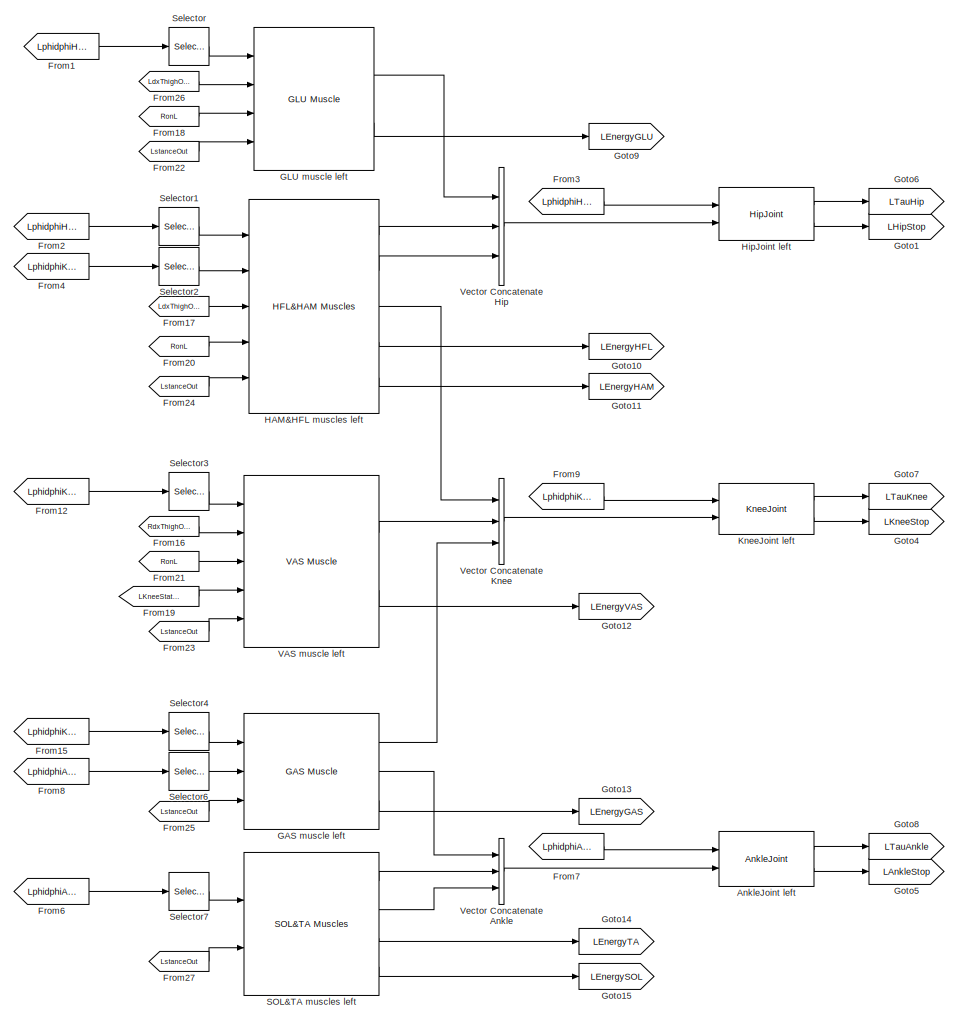
[diagram: Full Body Control/Left Side - part 1/2, most of the canvas]
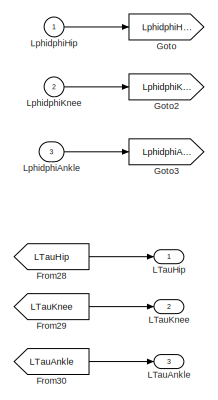
[diagram: Full Body Control/Left Side - part 2/2, top left region]
BLOCK [SubSystem] Full Body Control/Left Side
  Ports = [3, 3]
  RequestExecContextInheritance = off
  Variant = off
BLOCK [Reference] Full Body Control/Left Side/AnkleJoint left  REF=cpg_lib/AnkleJoint  (lib defined in slx_bab08664fd68)
  Ports = [2, 2]
  SourceBlock = cpg_lib/AnkleJoint
  SourceType = SubSystem
BLOCK [From] Full Body Control/Left Side/From1
  CloseFcn = tagdialog Close
  GotoTag = LphidphiHip
BLOCK [From] Full Body Control/Left Side/From12
  CloseFcn = tagdialog Close
  GotoTag = LphidphiKnee
BLOCK [From] Full Body Control/Left Side/From15
  CloseFcn = tagdialog Close
  GotoTag = LphidphiKnee
BLOCK [From] Full Body Control/Left Side/From16
  GotoTag = RdxThighOut
  TagVisibility = global
BLOCK [From] Full Body Control/Left Side/From17
  GotoTag = LdxThighOut
  TagVisibility = global
BLOCK [From] Full Body Control/Left Side/From18
  GotoTag = RonL
  TagVisibility = global
BLOCK [From] Full Body Control/Left Side/From19
  GotoTag = LKneeStateOut
  TagVisibility = global
BLOCK [From] Full Body Control/Left Side/From2
  CloseFcn = tagdialog Close
  GotoTag = LphidphiHip
BLOCK [From] Full Body Control/Left Side/From20
  GotoTag = RonL
  TagVisibility = global
BLOCK [From] Full Body Control/Left Side/From21
  GotoTag = RonL
  TagVisibility = global
BLOCK [From] Full Body Control/Left Side/From22
  GotoTag = LstanceOut
  TagVisibility = global
BLOCK [From] Full Body Control/Left Side/From23
  GotoTag = LstanceOut
  TagVisibility = global
BLOCK [From] Full Body Control/Left Side/From24
  GotoTag = LstanceOut
  TagVisibility = global
BLOCK [From] Full Body Control/Left Side/From25
  GotoTag = LstanceOut
  TagVisibility = global
BLOCK [From] Full Body Control/Left Side/From26
  GotoTag = LdxThighOut
  TagVisibility = global
BLOCK [From] Full Body Control/Left Side/From27
  GotoTag = LstanceOut
  TagVisibility = global
BLOCK [From] Full Body Control/Left Side/From28
  CloseFcn = tagdialog Close
  GotoTag = LTauHip
BLOCK [From] Full Body Control/Left Side/From29
  CloseFcn = tagdialog Close
  GotoTag = LTauKnee
BLOCK [From] Full Body Control/Left Side/From3
  CloseFcn = tagdialog Close
  GotoTag = LphidphiHip
BLOCK [From] Full Body Control/Left Side/From30
  CloseFcn = tagdialog Close
  GotoTag = LTauAnkle
BLOCK [From] Full Body Control/Left Side/From4
  CloseFcn = tagdialog Close
  GotoTag = LphidphiKnee
BLOCK [From] Full Body Control/Left Side/From6
  CloseFcn = tagdialog Close
  GotoTag = LphidphiAnkle
BLOCK [From] Full Body Control/Left Side/From7
  CloseFcn = tagdialog Close
  GotoTag = LphidphiAnkle
BLOCK [From] Full Body Control/Left Side/From8
  CloseFcn = tagdialog Close
  GotoTag = LphidphiAnkle
BLOCK [From] Full Body Control/Left Side/From9
  CloseFcn = tagdialog Close
  GotoTag = LphidphiKnee
BLOCK [Reference] Full Body Control/Left Side/GAS muscle left  REF=cpg_lib/GAS Muscle  (lib defined in slx_bab08664fd68)
  Ports = [3, 3]
  SourceBlock = cpg_lib/GAS Muscle
  SourceType = SubSystem
BLOCK [Reference] Full Body Control/Left Side/GLU muscle left  REF=cpg_lib/GLU Muscle  (lib defined in slx_bab08664fd68)
  Ports = [4, 2]
  SourceBlock = cpg_lib/GLU Muscle
  SourceType = SubSystem
BLOCK [Goto] Full Body Control/Left Side/Goto
  GotoTag = LphidphiHip
BLOCK [Goto] Full Body Control/Left Side/Goto1
  GotoTag = LHipStop
  TagVisibility = global
BLOCK [Goto] Full Body Control/Left Side/Goto10
  GotoTag = LEnergyHFL
  TagVisibility = global
BLOCK [Goto] Full Body Control/Left Side/Goto11
  GotoTag = LEnergyHAM
  TagVisibility = global
BLOCK [Goto] Full Body Control/Left Side/Goto12
  GotoTag = LEnergyVAS
  TagVisibility = global
BLOCK [Goto] Full Body Control/Left Side/Goto13
  GotoTag = LEnergyGAS
  TagVisibility = global
BLOCK [Goto] Full Body Control/Left Side/Goto14
  GotoTag = LEnergyTA
  TagVisibility = global
BLOCK [Goto] Full Body Control/Left Side/Goto15
  GotoTag = LEnergySOL
  TagVisibility = global
BLOCK [Goto] Full Body Control/Left Side/Goto2
  GotoTag = LphidphiKnee
BLOCK [Goto] Full Body Control/Left Side/Goto3
  GotoTag = LphidphiAnkle
BLOCK [Goto] Full Body Control/Left Side/Goto4
  GotoTag = LKneeStop
  TagVisibility = global
BLOCK [Goto] Full Body Control/Left Side/Goto5
  GotoTag = LAnkleStop
  TagVisibility = global
BLOCK [Goto] Full Body Control/Left Side/Goto6
  GotoTag = LTauHip
BLOCK [Goto] Full Body Control/Left Side/Goto7
  GotoTag = LTauKnee
BLOCK [Goto] Full Body Control/Left Side/Goto8
  GotoTag = LTauAnkle
BLOCK [Goto] Full Body Control/Left Side/Goto9
  GotoTag = LEnergyGLU
  TagVisibility = global
BLOCK [Reference] Full Body Control/Left Side/HAM&HFL muscles left  REF=cpg_lib/HFL&HAM Muscles  (lib defined in slx_bab08664fd68)
  Ports = [5, 5]
  SourceBlock = cpg_lib/HFL&HAM Muscles
  SourceType = SubSystem
BLOCK [Reference] Full Body Control/Left Side/HipJoint left  REF=cpg_lib/HipJoint  (lib defined in slx_bab08664fd68)
  Ports = [2, 2]
  SourceBlock = cpg_lib/HipJoint
  SourceType = SubSystem
BLOCK [Reference] Full Body Control/Left Side/KneeJoint left  REF=cpg_lib/KneeJoint  (lib defined in slx_bab08664fd68)
  Ports = [2, 2]
  SourceBlock = cpg_lib/KneeJoint
  SourceType = SubSystem
BLOCK [Outport] Full Body Control/Left Side/LTauAnkle
  IconDisplay = Port number
  Port = 3
BLOCK [Outport] Full Body Control/Left Side/LTauHip
  IconDisplay = Port number
BLOCK [Outport] Full Body Control/Left Side/LTauKnee
  IconDisplay = Port number
  Port = 2
BLOCK [Inport] Full Body Control/Left Side/LphidphiAnkle
  IconDisplay = Port number
  Port = 3
BLOCK [Inport] Full Body Control/Left Side/LphidphiHip
  IconDisplay = Port number
BLOCK [Inport] Full Body Control/Left Side/LphidphiKnee
  IconDisplay = Port number
  Port = 2
BLOCK [Reference] Full Body Control/Left Side/SOL&TA muscles left  REF=cpg_lib/SOL&TA Muscles  (lib defined in slx_bab08664fd68)
  Ports = [2, 4]
  SourceBlock = cpg_lib/SOL&TA Muscles
  SourceType = SubSystem
BLOCK [Selector] Full Body Control/Left Side/Selector
  IndexOptions = Index vector (dialog)
  Indices = [1 ]
  InputPortWidth = 2
  OutputSizes = 1
  Ports = [1, 1]
BLOCK [Selector] Full Body Control/Left Side/Selector1
  IndexOptions = Index vector (dialog)
  Indices = [1 ]
  InputPortWidth = 2
  OutputSizes = 1
  Ports = [1, 1]
BLOCK [Selector] Full Body Control/Left Side/Selector2
  IndexOptions = Index vector (dialog)
  Indices = [1 ]
  InputPortWidth = 2
  OutputSizes = 1
  Ports = [1, 1]
BLOCK [Selector] Full Body Control/Left Side/Selector3
  IndexOptions = Index vector (dialog)
  Indices = [1 ]
  InputPortWidth = 2
  OutputSizes = 1
  Ports = [1, 1]
BLOCK [Selector] Full Body Control/Left Side/Selector4
  IndexOptions = Index vector (dialog)
  Indices = [1 ]
  InputPortWidth = 2
  OutputSizes = 1
  Ports = [1, 1]
BLOCK [Selector] Full Body Control/Left Side/Selector6
  IndexOptions = Index vector (dialog)
  Indices = [1 ]
  InputPortWidth = 2
  OutputSizes = 1
  Ports = [1, 1]
BLOCK [Selector] Full Body Control/Left Side/Selector7
  IndexOptions = Index vector (dialog)
  Indices = [1 ]
  InputPortWidth = 2
  OutputSizes = 1
  Ports = [1, 1]
BLOCK [Reference] Full Body Control/Left Side/VAS muscle left  REF=cpg_lib/VAS Muscle  (lib defined in slx_bab08664fd68)
  Ports = [5, 2]
  SourceBlock = cpg_lib/VAS Muscle
  SourceType = SubSystem
BLOCK [Concatenate] Full Body Control/Left Side/Vector ConcatenateAnkle
  NumInputs = 3
  Ports = [3, 1]
BLOCK [Concatenate] Full Body Control/Left Side/Vector ConcatenateHip
  NumInputs = 3
  Ports = [3, 1]
BLOCK [Concatenate] Full Body Control/Left Side/Vector ConcatenateKnee
  NumInputs = 3
  Ports = [3, 1]
BLOCK [SubSystem] Full Body Control/Main Control Goto
  Ports = [1]
  RequestExecContextInheritance = off
  Variant = off
BLOCK [Inport] Full Body Control/Main Control Goto/EnableNMC_JointLimits
  IconDisplay = Port number
BLOCK [Goto] Full Body Control/Main Control Goto/Goto24
  GotoTag = DisableNMC_JointLimits
  TagVisibility = global
BLOCK [SubSystem] Full Body Control/Right Side
  Ports = [3, 3]
  RequestExecContextInheritance = off
  Variant = off
BLOCK [Reference] Full Body Control/Right Side/AnkleJoint right  REF=cpg_lib/AnkleJoint  (lib defined in slx_bab08664fd68)
  Ports = [2, 2]
  SourceBlock = cpg_lib/AnkleJoint
  SourceType = SubSystem
BLOCK [From] Full Body Control/Right Side/From1
  CloseFcn = tagdialog Close
  GotoTag = RphidphiHip
BLOCK [From] Full Body Control/Right Side/From12
  CloseFcn = tagdialog Close
  GotoTag = RphidphiKnee
BLOCK [From] Full Body Control/Right Side/From15
  CloseFcn = tagdialog Close
  GotoTag = RphidphiKnee
BLOCK [From] Full Body Control/Right Side/From16
  GotoTag = LdxThighOut
  TagVisibility = global
BLOCK [From] Full Body Control/Right Side/From17
  GotoTag = RdxThighOut
  TagVisibility = global
BLOCK [From] Full Body Control/Right Side/From18
  GotoTag = LonR
  TagVisibility = global
BLOCK [From] Full Body Control/Right Side/From19
  GotoTag = RKneeStateOut
  TagVisibility = global
BLOCK [From] Full Body Control/Right Side/From2
  CloseFcn = tagdialog Close
  GotoTag = RphidphiHip
BLOCK [From] Full Body Control/Right Side/From20
  GotoTag = LonR
  TagVisibility = global
BLOCK [From] Full Body Control/Right Side/From21
  GotoTag = LonR
  TagVisibility = global
BLOCK [From] Full Body Control/Right Side/From22
  GotoTag = RstanceOut
  TagVisibility = global
BLOCK [From] Full Body Control/Right Side/From23
  GotoTag = RstanceOut
  TagVisibility = global
BLOCK [From] Full Body Control/Right Side/From24
  GotoTag = RstanceOut
  TagVisibility = global
BLOCK [From] Full Body Control/Right Side/From25
  GotoTag = RstanceOut
  TagVisibility = global
BLOCK [From] Full Body Control/Right Side/From26
  GotoTag = RdxThighOut
  TagVisibility = global
BLOCK [From] Full Body Control/Right Side/From27
  GotoTag = RstanceOut
  TagVisibility = global
BLOCK [From] Full Body Control/Right Side/From28
  CloseFcn = tagdialog Close
  GotoTag = RTauHip
BLOCK [From] Full Body Control/Right Side/From29
  CloseFcn = tagdialog Close
  GotoTag = RTauKnee
BLOCK [From] Full Body Control/Right Side/From3
  CloseFcn = tagdialog Close
  GotoTag = RphidphiHip
BLOCK [From] Full Body Control/Right Side/From30
  CloseFcn = tagdialog Close
  GotoTag = RTauAnkle
BLOCK [From] Full Body Control/Right Side/From4
  CloseFcn = tagdialog Close
  GotoTag = RphidphiKnee
BLOCK [From] Full Body Control/Right Side/From6
  CloseFcn = tagdialog Close
  GotoTag = RphidphiAnkle
BLOCK [From] Full Body Control/Right Side/From7
  CloseFcn = tagdialog Close
  GotoTag = RphidphiAnkle
BLOCK [From] Full Body Control/Right Side/From8
  CloseFcn = tagdialog Close
  GotoTag = RphidphiAnkle
BLOCK [From] Full Body Control/Right Side/From9
  CloseFcn = tagdialog Close
  GotoTag = RphidphiKnee
BLOCK [Reference] Full Body Control/Right Side/GAS muscle right  REF=cpg_lib/GAS Muscle  (lib defined in slx_bab08664fd68)
  Ports = [3, 3]
  SourceBlock = cpg_lib/GAS Muscle
  SourceType = SubSystem
BLOCK [Reference] Full Body Control/Right Side/GLU muscle right  REF=cpg_lib/GLU Muscle  (lib defined in slx_bab08664fd68)
  Ports = [4, 2]
  SourceBlock = cpg_lib/GLU Muscle
  SourceType = SubSystem
BLOCK [Goto] Full Body Control/Right Side/Goto
  GotoTag = RphidphiHip
BLOCK [Goto] Full Body Control/Right Side/Goto1
  GotoTag = RHipStop
  TagVisibility = global
BLOCK [Goto] Full Body Control/Right Side/Goto10
  GotoTag = REnergyHFL
  TagVisibility = global
BLOCK [Goto] Full Body Control/Right Side/Goto11
  GotoTag = REnergyHAM
  TagVisibility = global
BLOCK [Goto] Full Body Control/Right Side/Goto12
  GotoTag = REnergyVAS
  TagVisibility = global
BLOCK [Goto] Full Body Control/Right Side/Goto13
  GotoTag = REnergyGAS
  TagVisibility = global
BLOCK [Goto] Full Body Control/Right Side/Goto14
  GotoTag = REnergyTA
  TagVisibility = global
BLOCK [Goto] Full Body Control/Right Side/Goto15
  GotoTag = REnergySOL
  TagVisibility = global
BLOCK [Goto] Full Body Control/Right Side/Goto2
  GotoTag = RphidphiKnee
BLOCK [Goto] Full Body Control/Right Side/Goto3
  GotoTag = RphidphiAnkle
BLOCK [Goto] Full Body Control/Right Side/Goto4
  GotoTag = RKneeStop
  TagVisibility = global
BLOCK [Goto] Full Body Control/Right Side/Goto5
  GotoTag = RAnkleStop
  TagVisibility = global
BLOCK [Goto] Full Body Control/Right Side/Goto6
  GotoTag = RTauHip
BLOCK [Goto] Full Body Control/Right Side/Goto7
  GotoTag = RTauKnee
BLOCK [Goto] Full Body Control/Right Side/Goto8
  GotoTag = RTauAnkle
BLOCK [Goto] Full Body Control/Right Side/Goto9
  GotoTag = REnergyGLU
  TagVisibility = global
BLOCK [Reference] Full Body Control/Right Side/HAM&HFL muscles right  REF=cpg_lib/HFL&HAM Muscles  (lib defined in slx_bab08664fd68)
  Ports = [5, 5]
  SourceBlock = cpg_lib/HFL&HAM Muscles
  SourceType = SubSystem
BLOCK [Reference] Full Body Control/Right Side/HipJoint right  REF=cpg_lib/HipJoint  (lib defined in slx_bab08664fd68)
  Ports = [2, 2]
  SourceBlock = cpg_lib/HipJoint
  SourceType = SubSystem
BLOCK [Reference] Full Body Control/Right Side/KneeJoint right  REF=cpg_lib/KneeJoint  (lib defined in slx_bab08664fd68)
  Ports = [2, 2]
  SourceBlock = cpg_lib/KneeJoint
  SourceType = SubSystem
BLOCK [Outport] Full Body Control/Right Side/RTauAnkle
  IconDisplay = Port number
  Port = 3
BLOCK [Outport] Full Body Control/Right Side/RTauHip
  IconDisplay = Port number
BLOCK [Outport] Full Body Control/Right Side/RTauKnee
  IconDisplay = Port number
  Port = 2
BLOCK [Inport] Full Body Control/Right Side/RphidphiAnkle
  IconDisplay = Port number
  Port = 3
BLOCK [Inport] Full Body Control/Right Side/RphidphiHip
  IconDisplay = Port number
BLOCK [Inport] Full Body Control/Right Side/RphidphiKnee
  IconDisplay = Port number
  Port = 2
BLOCK [Reference] Full Body Control/Right Side/SOL&TA muscles right  REF=cpg_lib/SOL&TA Muscles  (lib defined in slx_bab08664fd68)
  Ports = [2, 4]
  SourceBlock = cpg_lib/SOL&TA Muscles
  SourceType = SubSystem
BLOCK [Selector] Full Body Control/Right Side/Selector
  IndexOptions = Index vector (dialog)
  Indices = [1 ]
  InputPortWidth = 2
  OutputSizes = 1
  Ports = [1, 1]
BLOCK [Selector] Full Body Control/Right Side/Selector1
  IndexOptions = Index vector (dialog)
  Indices = [1 ]
  InputPortWidth = 2
  OutputSizes = 1
  Ports = [1, 1]
BLOCK [Selector] Full Body Control/Right Side/Selector2
  IndexOptions = Index vector (dialog)
  Indices = [1 ]
  InputPortWidth = 2
  OutputSizes = 1
  Ports = [1, 1]
BLOCK [Selector] Full Body Control/Right Side/Selector3
  IndexOptions = Index vector (dialog)
  Indices = [1 ]
  InputPortWidth = 2
  OutputSizes = 1
  Ports = [1, 1]
BLOCK [Selector] Full Body Control/Right Side/Selector4
  IndexOptions = Index vector (dialog)
  Indices = [1 ]
  InputPortWidth = 2
  OutputSizes = 1
  Ports = [1, 1]
BLOCK [Selector] Full Body Control/Right Side/Selector6
  IndexOptions = Index vector (dialog)
  Indices = [1 ]
  InputPortWidth = 2
  OutputSizes = 1
  Ports = [1, 1]
BLOCK [Selector] Full Body Control/Right Side/Selector7
  IndexOptions = Index vector (dialog)
  Indices = [1 ]
  InputPortWidth = 2
  OutputSizes = 1
  Ports = [1, 1]
BLOCK [Reference] Full Body Control/Right Side/VAS muscle right  REF=cpg_lib/VAS Muscle  (lib defined in slx_bab08664fd68)
  Ports = [5, 2]
  SourceBlock = cpg_lib/VAS Muscle
  SourceType = SubSystem
BLOCK [Concatenate] Full Body Control/Right Side/Vector ConcatenateAnkle
  NumInputs = 3
  Ports = [3, 1]
BLOCK [Concatenate] Full Body Control/Right Side/Vector ConcatenateHip
  NumInputs = 3
  Ports = [3, 1]
BLOCK [Concatenate] Full Body Control/Right Side/Vector ConcatenateKnee
  NumInputs = 3
  Ports = [3, 1]
BLOCK [SubSystem] Full Body Control/Sensors
  Ports = []
  RequestExecContextInheritance = off
  Variant = off
BLOCK [From] Full Body Control/Sensors/From1
  CloseFcn = tagdialog Close
  GotoTag = xyzRHip
  TagVisibility = global
BLOCK [From] Full Body Control/Sensors/From10
  CloseFcn = tagdialog Close
  GotoTag = LdxThigh
  TagVisibility = global
BLOCK [From] Full Body Control/Sensors/From11
  CloseFcn = tagdialog Close
  GotoTag = RdxThigh
  TagVisibility = global
BLOCK [From] Full Body Control/Sensors/From12
  CloseFcn = tagdialog Close
  GotoTag = LKneeState
  TagVisibility = global
BLOCK [From] Full Body Control/Sensors/From13
  CloseFcn = tagdialog Close
  GotoTag = RKneeState
  TagVisibility = global
BLOCK [From] Full Body Control/Sensors/From14
  CloseFcn = tagdialog Close
  GotoTag = RHeelCnt
  TagVisibility = global
BLOCK [From] Full Body Control/Sensors/From2
  CloseFcn = tagdialog Close
  GotoTag = xyzLHip
  TagVisibility = global
BLOCK [From] Full Body Control/Sensors/From3
  CloseFcn = tagdialog Close
  GotoTag = LBallCnt
  TagVisibility = global
BLOCK [From] Full Body Control/Sensors/From4
  CloseFcn = tagdialog Close
  GotoTag = dxyzHAT
  TagVisibility = global
BLOCK [From] Full Body Control/Sensors/From5
  CloseFcn = tagdialog Close
  GotoTag = LHeelCnt
  TagVisibility = global
BLOCK [From] Full Body Control/Sensors/From6
  CloseFcn = tagdialog Close
  GotoTag = dxyzRHip
  TagVisibility = global
BLOCK [From] Full Body Control/Sensors/From7
  CloseFcn = tagdialog Close
  GotoTag = xyzHAT
  TagVisibility = global
BLOCK [From] Full Body Control/Sensors/From8
  CloseFcn = tagdialog Close
  GotoTag = dxyzLHip
  TagVisibility = global
BLOCK [From] Full Body Control/Sensors/From9
  CloseFcn = tagdialog Close
  GotoTag = RBallCnt
  TagVisibility = global
BLOCK [SubSystem] Full Body Control/Sensors/GeyerFootSensor
  AncestorBlock = cpg_lib/GeyerFootSensor
  Ports = [4, 4]
  RequestExecContextInheritance = off
  Variant = off
BLOCK [SubSystem] Full Body Control/Sensors/GeyerFootSensor/Cross Influence Detection
  Ports = [2, 3]
  RequestExecContextInheritance = off
  Variant = off
BLOCK [HitCross] Full Body Control/Sensors/GeyerFootSensor/Cross Influence Detection/DSup ends
  HitCrossingDirection = falling
  HitCrossingOffset = 0.5
  Ports = [1, 1]
  ZeroCross = off
BLOCK [Logic] Full Body Control/Sensors/GeyerFootSensor/Cross Influence Detection/Double Support?
  AllPortsSameDT = off
  Ports = [2, 1]
BLOCK [Logic] Full Body Control/Sensors/GeyerFootSensor/Cross Influence Detection/Double Support?1
  AllPortsSameDT = off
  Ports = [2, 1]
BLOCK [Logic] Full Body Control/Sensors/GeyerFootSensor/Cross Influence Detection/Double Support?4
  AllPortsSameDT = off
  Ports = [2, 1]
BLOCK [Outport] Full Body Control/Sensors/GeyerFootSensor/Cross Influence Detection/Flight
  IconDisplay = Port number
  OutDataTypeStr = double
  Port = 2
BLOCK [Logic] Full Body Control/Sensors/GeyerFootSensor/Cross Influence Detection/Flight?
  AllPortsSameDT = off
  Operator = NOR
  Ports = [2, 1]
BLOCK [HitCross] Full Body Control/Sensors/GeyerFootSensor/Cross Influence Detection/LLeg starts DSup
  HitCrossingDirection = rising
  HitCrossingOffset = 0.5
  Ports = [1, 1]
  ZeroCross = off
BLOCK [Inport] Full Body Control/Sensors/GeyerFootSensor/Cross Influence Detection/LStance
  IconDisplay = Port number
  OutDataTypeStr = double
BLOCK [Outport] Full Body Control/Sensors/GeyerFootSensor/Cross Influence Detection/LonR
  IconDisplay = Port number
  OutDataTypeStr = double
  Port = 3
BLOCK [Memory] Full Body Control/Sensors/GeyerFootSensor/Cross Influence Detection/Memory
BLOCK [Memory] Full Body Control/Sensors/GeyerFootSensor/Cross Influence Detection/Memory3
BLOCK [HitCross] Full Body Control/Sensors/GeyerFootSensor/Cross Influence Detection/RLeg starts DSup
  HitCrossingDirection = rising
  HitCrossingOffset = 0.5
  Ports = [1, 1]
  ZeroCross = off
BLOCK [Inport] Full Body Control/Sensors/GeyerFootSensor/Cross Influence Detection/RStance
  IconDisplay = Port number
  OutDataTypeStr = double
  Port = 2
BLOCK [Outport] Full Body Control/Sensors/GeyerFootSensor/Cross Influence Detection/RonL
  IconDisplay = Port number
  OutDataTypeStr = double
BLOCK [Reference] Full Body Control/Sensors/GeyerFootSensor/Cross Influence Detection/S-R Flip-Flop  REF=simulink_extras/Flip Flops/S-R
Flip-Flop
  Ports = [2, 2]
  SourceBlock = simulink_extras/Flip Flops/S-R\nFlip-Flop
  SourceType = SRFlipFlop
BLOCK [Reference] Full Body Control/Sensors/GeyerFootSensor/Cross Influence Detection/S-R Flip-Flop1  REF=simulink_extras/Flip Flops/S-R
Flip-Flop
  Ports = [2, 2]
  SourceBlock = simulink_extras/Flip Flops/S-R\nFlip-Flop
  SourceType = SRFlipFlop
BLOCK [Terminator] Full Body Control/Sensors/GeyerFootSensor/Cross Influence Detection/Terminator1
BLOCK [Terminator] Full Body Control/Sensors/GeyerFootSensor/Cross Influence Detection/Terminator2
BLOCK [Goto] Full Body Control/Sensors/GeyerFootSensor/Goto
  GotoTag = RStance
  TagVisibility = global
BLOCK [Goto] Full Body Control/Sensors/GeyerFootSensor/Goto3
  GotoTag = LStance
  TagVisibility = global
BLOCK [TransportDelay] Full Body Control/Sensors/GeyerFootSensor/L Stance afferent delay
  DelayTime = MidDelay
  Ports = [1, 1]
BLOCK [Inport] Full Body Control/Sensors/GeyerFootSensor/LBallCnt
  IconDisplay = Port number
BLOCK [Inport] Full Body Control/Sensors/GeyerFootSensor/LHellCnt
  IconDisplay = Port number
  Port = 2
BLOCK [Outport] Full Body Control/Sensors/GeyerFootSensor/LStanceOut
  IconDisplay = Port number
BLOCK [Logic] Full Body Control/Sensors/GeyerFootSensor/Left Stance?
  AllPortsSameDT = off
  Operator = OR
  Ports = [2, 1]
BLOCK [Outport] Full Body Control/Sensors/GeyerFootSensor/LonR
  IconDisplay = Port number
  Port = 3
BLOCK [TransportDelay] Full Body Control/Sensors/GeyerFootSensor/R Stance afferent delay
  DelayTime = MidDelay
  Ports = [1, 1]
BLOCK [Inport] Full Body Control/Sensors/GeyerFootSensor/RBallCnt
  IconDisplay = Port number
  Port = 3
BLOCK [Inport] Full Body Control/Sensors/GeyerFootSensor/RHellCnt
  IconDisplay = Port number
  Port = 4
BLOCK [Logic] Full Body Control/Sensors/GeyerFootSensor/Right Stance?
  AllPortsSameDT = off
  Operator = OR
  Ports = [2, 1]
BLOCK [Outport] Full Body Control/Sensors/GeyerFootSensor/RonL
  IconDisplay = Port number
  Port = 4
BLOCK [Outport] Full Body Control/Sensors/GeyerFootSensor/RstanceOut
  IconDisplay = Port number
  Port = 2
BLOCK [Terminator] Full Body Control/Sensors/GeyerFootSensor/Terminator
BLOCK [Reference] Full Body Control/Sensors/GeyerUpperBodyOrientation  REF=cpg_lib/GeyerUpperBodyOrientation  (lib defined in slx_bab08664fd68)
  Ports = [6]
  SourceBlock = cpg_lib/GeyerUpperBodyOrientation
  SourceType = SubSystem
BLOCK [Goto] Full Body Control/Sensors/Goto10
  GotoTag = RonL
  TagVisibility = global
BLOCK [Goto] Full Body Control/Sensors/Goto3
  GotoTag = RdxThighOut
  TagVisibility = global
BLOCK [Goto] Full Body Control/Sensors/Goto4
  GotoTag = LdxThighOut
  TagVisibility = global
BLOCK [Goto] Full Body Control/Sensors/Goto5
  GotoTag = RKneeStateOut
  TagVisibility = global
BLOCK [Goto] Full Body Control/Sensors/Goto6
  GotoTag = LKneeStateOut
  TagVisibility = global
BLOCK [Goto] Full Body Control/Sensors/Goto7
  GotoTag = LstanceOut
  TagVisibility = global
BLOCK [Goto] Full Body Control/Sensors/Goto8
  GotoTag = RstanceOut
  TagVisibility = global
BLOCK [Goto] Full Body Control/Sensors/Goto9
  GotoTag = LonR
  TagVisibility = global
BLOCK [Reference] Full Body Control/Sensors/KneeSensor  REF=cpg_lib/KneeSensor  (lib defined in slx_bab08664fd68)
  Ports = [2, 2]
  SourceBlock = cpg_lib/KneeSensor
  SourceType = SubSystem
BLOCK [Reference] Full Body Control/Sensors/ThightSensor  REF=cpg_lib/ThightSensor  (lib defined in slx_bab08664fd68)
  Ports = [2, 2]
  SourceBlock = cpg_lib/ThightSensor
  SourceType = SubSystem
BLOCK [Mux] Mux2
  DisplayOption = bar
  Inputs = 2
  Ports = [2, 1]
BLOCK [Mux] Mux3
  DisplayOption = bar
  Inputs = 3
  Ports = [3, 1]
BLOCK [Mux] Mux4
  DisplayOption = bar
  Inputs = 2
  Ports = [2, 1]
BLOCK [Mux] Mux5
  DisplayOption = bar
  Inputs = 2
  Ports = [2, 1]
BLOCK [SubSystem] Positions
  Ports = [0, 1]
  RequestExecContextInheritance = off
  Variant = off
BLOCK [From] Positions/From
  GotoTag = xyzHAT
  TagVisibility = global
BLOCK [From] Positions/From1
  GotoTag = dxyzHAT
  TagVisibility = global
BLOCK [From] Positions/From10
  GotoTag = xyzTrunk
  TagVisibility = global
BLOCK [From] Positions/From2
  GotoTag = xyzLAnkle
  TagVisibility = global
BLOCK [From] Positions/From3
  GotoTag = xyzLKnee
  TagVisibility = global
BLOCK [From] Positions/From4
  GotoTag = xyzLHip
  TagVisibility = global
BLOCK [From] Positions/From5
  GotoTag = dxyzLHip
  TagVisibility = global
BLOCK [From] Positions/From6
  GotoTag = xyzRAnkle
  TagVisibility = global
BLOCK [From] Positions/From7
  GotoTag = xyzRKnee
  TagVisibility = global
BLOCK [From] Positions/From8
  GotoTag = xyzRHip
  TagVisibility = global
BLOCK [From] Positions/From9
  GotoTag = dxyzRHip
  TagVisibility = global
BLOCK [Mux] Positions/Mux
  DisplayOption = bar
  Inputs = 11
  Ports = [11, 1]
BLOCK [Outport] Positions/Positions
  IconDisplay = Port number
BLOCK [Selector] Selector2
  IndexOptions = Index vector (dialog)
  Indices = [1]
  InputPortWidth = 3
  OutputSizes = 1
  Ports = [1, 1]
BLOCK [Selector] Selector3
  IndexOptions = Index vector (dialog)
  Indices = [1]
  InputPortWidth = 3
  OutputSizes = 1
  Ports = [1, 1]
BLOCK [SubSystem] Signals NMC Left3
  Ports = [0, 1]
  RequestExecContextInheritance = off
  Variant = off
BLOCK [Mux] Signals NMC Left3/Mux
  DisplayOption = bar
  Ports = [4, 1]
BLOCK [From] Signals NMC Left3/sig_par1
  CloseFcn = tagdialog Close
  GotoTag = LM34
  TagVisibility = global
BLOCK [From] Signals NMC Left3/sig_par2
  CloseFcn = tagdialog Close
  GotoTag = LM34R
BLOCK [From] Signals NMC Left3/sig_par3
  CloseFcn = tagdialog Close
  GotoTag = LM23
  TagVisibility = global
BLOCK [From] Signals NMC Left3/sig_par4
  CloseFcn = tagdialog Close
  GotoTag = LM12
  TagVisibility = global
BLOCK [Outport] Signals NMC Left3/signals
  IconDisplay = Port number
BLOCK [SubSystem] Signals NMC Left6
  Ports = [0, 1]
  RequestExecContextInheritance = off
  Variant = off
BLOCK [Mux] Signals NMC Left6/Mux
  DisplayOption = bar
  Inputs = 7
  Ports = [7, 1]
BLOCK [From] Signals NMC Left6/sig_par1
  CloseFcn = tagdialog Close
  GotoTag = REnergyHFL
  TagVisibility = global
BLOCK [From] Signals NMC Left6/sig_par3
  CloseFcn = tagdialog Close
  GotoTag = REnergyVAS
  TagVisibility = global
BLOCK [From] Signals NMC Left6/sig_par4
  CloseFcn = tagdialog Close
  GotoTag = REnergyTA
  TagVisibility = global
BLOCK [From] Signals NMC Left6/sig_par5
  CloseFcn = tagdialog Close
  GotoTag = REnergySOL
  TagVisibility = global
BLOCK [From] Signals NMC Left6/sig_par6
  CloseFcn = tagdialog Close
  GotoTag = REnergyGAS
  TagVisibility = global
BLOCK [From] Signals NMC Left6/sig_par8
  CloseFcn = tagdialog Close
  GotoTag = REnergyHAM
  TagVisibility = global
BLOCK [From] Signals NMC Left6/sig_par9
  CloseFcn = tagdialog Close
  GotoTag = REnergyGLU
  TagVisibility = global
BLOCK [Outport] Signals NMC Left6/signals
  IconDisplay = Port number
BLOCK [SubSystem] Signals NMC Left7
  Ports = [0, 1]
  RequestExecContextInheritance = off
  Variant = off
BLOCK [Mux] Signals NMC Left7/Mux
  DisplayOption = bar
  Inputs = 7
  Ports = [7, 1]
BLOCK [From] Signals NMC Left7/sig_par1
  CloseFcn = tagdialog Close
  GotoTag = LEnergyHFL
  TagVisibility = global
BLOCK [From] Signals NMC Left7/sig_par3
  CloseFcn = tagdialog Close
  GotoTag = LEnergyVAS
  TagVisibility = global
BLOCK [From] Signals NMC Left7/sig_par4
  CloseFcn = tagdialog Close
  GotoTag = LEnergyTA
  TagVisibility = global
BLOCK [From] Signals NMC Left7/sig_par5
  CloseFcn = tagdialog Close
  GotoTag = LEnergySOL
  TagVisibility = global
BLOCK [From] Signals NMC Left7/sig_par6
  CloseFcn = tagdialog Close
  GotoTag = LEnergyGAS
  TagVisibility = global
BLOCK [From] Signals NMC Left7/sig_par8
  CloseFcn = tagdialog Close
  GotoTag = LEnergyHAM
  TagVisibility = global
BLOCK [From] Signals NMC Left7/sig_par9
  CloseFcn = tagdialog Close
  GotoTag = LEnergyGLU
  TagVisibility = global
BLOCK [Outport] Signals NMC Left7/signals
  IconDisplay = Port number
BLOCK [SubSystem] Signals NMC Right3
  Ports = [0, 1]
  RequestExecContextInheritance = off
  Variant = off
BLOCK [Mux] Signals NMC Right3/Mux
  DisplayOption = bar
  Ports = [4, 1]
BLOCK [From] Signals NMC Right3/sig_par1
  CloseFcn = tagdialog Close
  GotoTag = RM34
  TagVisibility = global
BLOCK [From] Signals NMC Right3/sig_par2
  CloseFcn = tagdialog Close
  GotoTag = RM34R
BLOCK [From] Signals NMC Right3/sig_par3
  CloseFcn = tagdialog Close
  GotoTag = RM23
  TagVisibility = global
BLOCK [From] Signals NMC Right3/sig_par4
  CloseFcn = tagdialog Close
  GotoTag = RM12
  TagVisibility = global
BLOCK [Outport] Signals NMC Right3/signals
  IconDisplay = Port number
BLOCK [SubSystem] etc
  Ports = []
  RequestExecContextInheritance = off
  Variant = off
BLOCK [Abs] etc/Abs3
  SaturateOnIntegerOverflow = off
BLOCK [Reference] etc/Compare To Constant2  REF=simulink/Logic and Bit
Operations/Compare
To Constant
  Ports = [1, 1]
  SourceBlock = simulink/Logic and Bit\nOperations/Compare\nTo Constant
  SourceType = Compare To Constant
BLOCK [From] etc/From17
  CloseFcn = tagdialog Close
  GotoTag = theta
  TagVisibility = global
BLOCK [Stop] etc/Stop Simulation
BLOCK [Outport] yout
  IconDisplay = Port number
ANNOTATION (root): Neuromuscular Locomotion Model H. Geyer (email: <email>)
ANNOTATION (root): The Man model is a neuromechanical model of human locomotion. The model has a torso and two legs each with thigh, shank and foot. All segments are connected by revolute joints (Body Mechanics Layer). These joints are actuated and constraint by eight Hill-type muscles and five passive joint limits per leg (Muscle Actuation Layer). In addition, each leg can contact the ground at the ball and heel of...<+197ch>
ANNOTATION Body Mechanics Layer: Body Mechanics Layer
ANNOTATION Body Mechanics Layer: Left Leg
ANNOTATION Body Mechanics Layer: Muscle Actuation Layer Interface (Left Ankle Joint)
ANNOTATION Body Mechanics Layer: Muscle Actuation Layer Interface (Left Hip Joint)
ANNOTATION Body Mechanics Layer: Muscle Actuation Layer Interface (Left Knee Joint)
ANNOTATION Body Mechanics Layer: Muscle Actuation Layer Interface (Right Ankle Joint)
ANNOTATION Body Mechanics Layer: Muscle Actuation Layer Interface (Right Hip Joint)
ANNOTATION Body Mechanics Layer: Muscle Actuation Layer Interface (Right Knee Joint)
ANNOTATION Body Mechanics Layer: Neural Control Layer Interface
ANNOTATION Body Mechanics Layer: Right Leg
ANNOTATION Body Mechanics Layer/Left Thigh Sensor Sheet: Inner Segment Pressure Sheet
ANNOTATION Body Mechanics Layer/RLBall Cnt1: 3D Ground Interaction Model
ANNOTATION Body Mechanics Layer/Right Heel Contact: Planar Ground Interaction Model
ANNOTATION Body Mechanics Layer/Right Heel Contact/Ground Friction Model: Horizontal Ground Friction Model
ANNOTATION Body Mechanics Layer/Right Heel Contact/Ground Friction Model: Vertical Ground Stiction Model
ANNOTATION Body Mechanics Layer/Right Heel Contact/Ground Friction Model/Friction Switch: Static/Kinetic Friction Switch
ANNOTATION Body Mechanics Layer/Right Heel Contact/Ground Friction Model/X-Axis Kinetic Friction Model: Footpoint Determiner
ANNOTATION Body Mechanics Layer/Right Heel Contact/Ground Friction Model/X-Axis Kinetic Friction Model: Kinetic Friction Model
ANNOTATION Body Mechanics Layer/Right Heel Contact/Ground Friction Model/X-Axis Kinetic Friction Model: Sliding Limit Detector
ANNOTATION Body Mechanics Layer/Right Heel Contact/Ground Friction Model/X-Axis Static Friction Model: Static Friction Model
ANNOTATION Body Mechanics Layer/Right Heel Contact/Ground Friction Model/X-Axis Static Friction Model: Stiction Limit Detector
ANNOTATION Body Mechanics Layer/Right Heel Contact/Ground Friction Model/X-Axis Static Friction Model: Zero multiplication prevents horizontal friction model from oscillating between static and kinetic friction when the vertical force is zero but the ground level is not yet reached in the upward motion
ANNOTATION Body Mechanics Layer/Right Heel Contact1: Planar Ground Interaction Model
ANNOTATION Body Mechanics Layer/Right Heel Contact1/Ground Friction Model: Horizontal Ground Friction Model
ANNOTATION Body Mechanics Layer/Right Heel Contact1/Ground Friction Model: Vertical Ground Stiction Model
ANNOTATION Body Mechanics Layer/Right Heel Contact1/Ground Friction Model/Friction Switch: Static/Kinetic Friction Switch
ANNOTATION Body Mechanics Layer/Right Heel Contact1/Ground Friction Model/X-Axis Kinetic Friction Model: Footpoint Determiner
ANNOTATION Body Mechanics Layer/Right Heel Contact1/Ground Friction Model/X-Axis Kinetic Friction Model: Kinetic Friction Model
ANNOTATION Body Mechanics Layer/Right Heel Contact1/Ground Friction Model/X-Axis Kinetic Friction Model: Sliding Limit Detector
ANNOTATION Body Mechanics Layer/Right Heel Contact1/Ground Friction Model/X-Axis Static Friction Model: Static Friction Model
ANNOTATION Body Mechanics Layer/Right Heel Contact1/Ground Friction Model/X-Axis Static Friction Model: Stiction Limit Detector
ANNOTATION Body Mechanics Layer/Right Heel Contact1/Ground Friction Model/X-Axis Static Friction Model: Zero multiplication prevents horizontal friction model from oscillating between static and kinetic friction when the vertical force is zero but the ground level is not yet reached in the upward motion
ANNOTATION Body Mechanics Layer/Right Heel Contact2: Planar Ground Interaction Model
ANNOTATION Body Mechanics Layer/Right Heel Contact2/Ground Friction Model: Horizontal Ground Friction Model
ANNOTATION Body Mechanics Layer/Right Heel Contact2/Ground Friction Model: Vertical Ground Stiction Model
ANNOTATION Body Mechanics Layer/Right Heel Contact2/Ground Friction Model/Friction Switch: Static/Kinetic Friction Switch
ANNOTATION Body Mechanics Layer/Right Heel Contact2/Ground Friction Model/X-Axis Kinetic Friction Model: Footpoint Determiner
ANNOTATION Body Mechanics Layer/Right Heel Contact2/Ground Friction Model/X-Axis Kinetic Friction Model: Kinetic Friction Model
ANNOTATION Body Mechanics Layer/Right Heel Contact2/Ground Friction Model/X-Axis Kinetic Friction Model: Sliding Limit Detector
ANNOTATION Body Mechanics Layer/Right Heel Contact2/Ground Friction Model/X-Axis Static Friction Model: Static Friction Model
ANNOTATION Body Mechanics Layer/Right Heel Contact2/Ground Friction Model/X-Axis Static Friction Model: Stiction Limit Detector
ANNOTATION Body Mechanics Layer/Right Heel Contact2/Ground Friction Model/X-Axis Static Friction Model: Zero multiplication prevents horizontal friction model from oscillating between static and kinetic friction when the vertical force is zero but the ground level is not yet reached in the upward motion
ANNOTATION Body Mechanics Layer/Right Heel Contact3: Planar Ground Interaction Model
ANNOTATION Body Mechanics Layer/Right Heel Contact3/Ground Friction Model: Horizontal Ground Friction Model
ANNOTATION Body Mechanics Layer/Right Heel Contact3/Ground Friction Model: Vertical Ground Stiction Model
ANNOTATION Body Mechanics Layer/Right Heel Contact3/Ground Friction Model/Friction Switch: Static/Kinetic Friction Switch
ANNOTATION Body Mechanics Layer/Right Heel Contact3/Ground Friction Model/X-Axis Kinetic Friction Model: Footpoint Determiner
ANNOTATION Body Mechanics Layer/Right Heel Contact3/Ground Friction Model/X-Axis Kinetic Friction Model: Kinetic Friction Model
ANNOTATION Body Mechanics Layer/Right Heel Contact3/Ground Friction Model/X-Axis Kinetic Friction Model: Sliding Limit Detector
ANNOTATION Body Mechanics Layer/Right Heel Contact3/Ground Friction Model/X-Axis Static Friction Model: Static Friction Model
ANNOTATION Body Mechanics Layer/Right Heel Contact3/Ground Friction Model/X-Axis Static Friction Model: Stiction Limit Detector
ANNOTATION Body Mechanics Layer/Right Heel Contact3/Ground Friction Model/X-Axis Static Friction Model: Zero multiplication prevents horizontal friction model from oscillating between static and kinetic friction when the vertical force is zero but the ground level is not yet reached in the upward motion
ANNOTATION Body Mechanics Layer/Right Thigh Sensor Sheet: Inner Segment Pressure Sheet
ANNOTATION Data Logging: Muscle Power
ANNOTATION Data Logging: Body Info
ANNOTATION Data Logging: Angle of Attack
ANNOTATION Data Logging: Disturbances
ANNOTATION Data Logging: Joint Torques
ANNOTATION Data Logging: Joint Torques (Passive)
ANNOTATION Data Logging: Muscle Activation
ANNOTATION Data Logging: Stance Info
ANNOTATION Full Body Control: NMC MAIN CONTROL
ANNOTATION Full Body Control/Sensors/GeyerFootSensor: Body Mechanics Layer Interface (Foot Skin Sensors)
ANNOTATION Full Body Control/Sensors/GeyerFootSensor: Muscle Actuation Layer Interface (Left Muscle Sensors)
ANNOTATION Full Body Control/Sensors/GeyerFootSensor: Muscle Actuation Layer Interface (Right Muscle Sensors)
ANNOTATION Full Body Control/Sensors/GeyerFootSensor/Cross Influence Detection: Double Support Cross Influences
ANNOTATION Full Body Control/Sensors/GeyerFootSensor/Cross Influence Detection: left leg is leading
ANNOTATION Full Body Control/Sensors/GeyerFootSensor/Cross Influence Detection: right leg is leading
ANNOTATION etc: Fall detection (stop simulation)
LINE Body Mechanics Layer/Demux1:1 -> Body Mechanics Layer/L_GRF:1
LINE Body Mechanics Layer/Demux1:2 -> Body Mechanics Layer/L_GRF:2
LINE Body Mechanics Layer/Demux1:3 -> Body Mechanics Layer/L_GRF:3
LINE Body Mechanics Layer/Demux:1 -> Body Mechanics Layer/R_GRF:1
LINE Body Mechanics Layer/Demux:2 -> Body Mechanics Layer/R_GRF:2
LINE Body Mechanics Layer/Demux:3 -> Body Mechanics Layer/R_GRF:3
LINE Body Mechanics Layer/Dist on HAT sagital plane:1 -> Body Mechanics Layer/RLBall Cnt1:1
LINE Body Mechanics Layer/From2:1 -> Body Mechanics Layer/Right Force Plate:enable
LINE Body Mechanics Layer/From4:1 -> Body Mechanics Layer/Left Force Plate:enable
LINE Body Mechanics Layer/L Ball Skin Load Sensor:1 -> Body Mechanics Layer/Left Hip State3:1
LINE Body Mechanics Layer/L Heel Skin Load Sensor:1 -> Body Mechanics Layer/Left Hip State2:1
LINE Body Mechanics Layer/L Knee Joint Sensor:1 -> Body Mechanics Layer/Left Hip State7:1
NET Body Mechanics Layer/L Thigh Displacement  Sensor:1 -> Body Mechanics Layer/Goto:1, Body Mechanics Layer/Left Leg Load:1
LINE Body Mechanics Layer/Left Ankle Moment:1 -> Body Mechanics Layer/Left Ankle Actuator:1
LINE Body Mechanics Layer/Left Ankle Sensor:1 -> Body Mechanics Layer/map (-pi,pi] to [0,2pi)3:1
LINE Body Mechanics Layer/Left Ankle Sensor:2 -> Body Mechanics Layer/Mux6:2
LINE Body Mechanics Layer/Left Force Plate/Fcn:1 -> Body Mechanics Layer/Left Force Plate/COP:1
NET Body Mechanics Layer/Left Force Plate/GRF_Ball [N N] :1 -> Body Mechanics Layer/Left Force Plate/Mux:1, Body Mechanics Layer/Left Force Plate/Selector1:1, Body Mechanics Layer/Left Force Plate/Sum1:1
NET Body Mechanics Layer/Left Force Plate/GRF_Heel [N N]:1 -> Body Mechanics Layer/Left Force Plate/Mux:3, Body Mechanics Layer/Left Force Plate/Sum1:2
LINE Body Mechanics Layer/Left Force Plate/Mux1:1 -> Body Mechanics Layer/Left Force Plate/Fcn:1
LINE Body Mechanics Layer/Left Force Plate/Mux:1 -> Body Mechanics Layer/Left Force Plate/GRFs:1
LINE Body Mechanics Layer/Left Force Plate/Selector1:1 -> Body Mechanics Layer/Left Force Plate/Mux1:1
LINE Body Mechanics Layer/Left Force Plate/Selector:1 -> Body Mechanics Layer/Left Force Plate/Mux1:2
NET Body Mechanics Layer/Left Force Plate/Sum1:1 -> Body Mechanics Layer/Left Force Plate/Mux:2, Body Mechanics Layer/Left Force Plate/Selector:1
LINE Body Mechanics Layer/Left Force Plate:1 -> Body Mechanics Layer/Demux1:1
LINE Body Mechanics Layer/Left Force Plate:2 -> Body Mechanics Layer/Terminator1:1
LINE Body Mechanics Layer/Left Hip Moment:1 -> Body Mechanics Layer/Left Hip Actuator:1
LINE Body Mechanics Layer/Left Hip Sensor:1 -> Body Mechanics Layer/map (-pi,pi] to [0,2pi):1
LINE Body Mechanics Layer/Left Hip Sensor:2 -> Body Mechanics Layer/Mux2:2
LINE Body Mechanics Layer/Left Knee Moment:1 -> Body Mechanics Layer/Left Knee Actuator:1
LINE Body Mechanics Layer/Left Leg Load/FB Gain1:1 -> Body Mechanics Layer/Left Leg Load/LLoad [F]:1
LINE Body Mechanics Layer/Left Leg Load/Saturation11:1 -> Body Mechanics Layer/Left Leg Load/FB Gain1:1
LINE Body Mechanics Layer/Left Leg Load/dxThigh [m]:1 -> Body Mechanics Layer/Left Leg Load/smooth2:1
LINE Body Mechanics Layer/Left Leg Load/smooth2:1 -> Body Mechanics Layer/Left Leg Load/Saturation11:1
LINE Body Mechanics Layer/Left Leg Load:1 -> Body Mechanics Layer/Goto2:1
LINE Body Mechanics Layer/Left Thigh Sensor Sheet/Gain3:1 -> Body Mechanics Layer/Left Thigh Sensor Sheet/Mux1:1
LINE Body Mechanics Layer/Left Thigh Sensor Sheet/Gain4:1 -> Body Mechanics Layer/Left Thigh Sensor Sheet/Mux1:2
LINE Body Mechanics Layer/Left Thigh Sensor Sheet/Mux1:1 -> Body Mechanics Layer/Left Thigh Sensor Sheet/Pressure Sheet Reaction Force:1
LINE Body Mechanics Layer/Left Thigh Sensor Sheet/Pressure Sheet Reaction Force:1 -> Body Mechanics Layer/Left Thigh Sensor Sheet/Thigh Actuator:1
NET Body Mechanics Layer/Left Thigh Sensor Sheet/Thigh Sensor:1 -> Body Mechanics Layer/Left Thigh Sensor Sheet/Gain3:1, Body Mechanics Layer/Left Thigh Sensor Sheet/dx:1
LINE Body Mechanics Layer/Left Thigh Sensor Sheet/Thigh Sensor:2 -> Body Mechanics Layer/Left Thigh Sensor Sheet/Gain4:1
LINE Body Mechanics Layer/Left Thigh Sensor Sheet:1 -> Body Mechanics Layer/L Thigh Displacement  Sensor:1
LINE Body Mechanics Layer/LeftKnee Sensor:1 -> Body Mechanics Layer/map (-pi,pi] to [0,2pi)6:1
LINE Body Mechanics Layer/LeftKnee Sensor:2 -> Body Mechanics Layer/Mux4:2
LINE Body Mechanics Layer/Mux2:1 -> Body Mechanics Layer/Left Hip Angle and Speed:1
LINE Body Mechanics Layer/Mux3:1 -> Body Mechanics Layer/Right Hip Angle and Speed:1
NET Body Mechanics Layer/Mux4:1 -> Body Mechanics Layer/L Knee Joint Sensor:1, Body Mechanics Layer/Left Knee Angle and Speed:1
NET Body Mechanics Layer/Mux5:1 -> Body Mechanics Layer/R Knee Joint Sensor:1, Body Mechanics Layer/Right Knee Angle and Speed:1
LINE Body Mechanics Layer/Mux6:1 -> Body Mechanics Layer/Left Ankle Angle and Speed:1
LINE Body Mechanics Layer/Mux7:1 -> Body Mechanics Layer/Right Ankle Angle and Speed:1
LINE Body Mechanics Layer/R Ball Skin Load Sensor:1 -> Body Mechanics Layer/Left Hip State5:1
LINE Body Mechanics Layer/R Heel Skin Load Sensor:1 -> Body Mechanics Layer/Left Hip State4:1
LINE Body Mechanics Layer/R Knee Joint Sensor:1 -> Body Mechanics Layer/Left Hip State6:1
NET Body Mechanics Layer/R Thigh Displacement  Sensor:1 -> Body Mechanics Layer/Goto1:1, Body Mechanics Layer/Right Leg Load:1
LINE Body Mechanics Layer/RLBall Cnt1/Constant:1 -> Body Mechanics Layer/RLBall Cnt1/Mux:3
NET Body Mechanics Layer/RLBall Cnt1/Dist_sag:1 -> Body Mechanics Layer/RLBall Cnt1/Product1:2, Body Mechanics Layer/RLBall Cnt1/Product:2
NET Body Mechanics Layer/RLBall Cnt1/From:1 -> Body Mechanics Layer/RLBall Cnt1/Trigonometric Function1:1, Body Mechanics Layer/RLBall Cnt1/Trigonometric Function:1
LINE Body Mechanics Layer/RLBall Cnt1/Gain:1 -> Body Mechanics Layer/RLBall Cnt1/Mux:2
LINE Body Mechanics Layer/RLBall Cnt1/Mux:1 -> Body Mechanics Layer/RLBall Cnt1/Body Actuator:1
LINE Body Mechanics Layer/RLBall Cnt1/Product1:1 -> Body Mechanics Layer/RLBall Cnt1/Mux:1
LINE Body Mechanics Layer/RLBall Cnt1/Product:1 -> Body Mechanics Layer/RLBall Cnt1/Gain:1
LINE Body Mechanics Layer/RLBall Cnt1/Right Heel Sensor5:1 -> Body Mechanics Layer/RLBall Cnt1/Pos:1
LINE Body Mechanics Layer/RLBall Cnt1/Right Heel Sensor5:2 -> Body Mechanics Layer/RLBall Cnt1/Rot:1
LINE Body Mechanics Layer/RLBall Cnt1/Trigonometric Function1:1 -> Body Mechanics Layer/RLBall Cnt1/Product1:1
LINE Body Mechanics Layer/RLBall Cnt1/Trigonometric Function:1 -> Body Mechanics Layer/RLBall Cnt1/Product:1
LINE Body Mechanics Layer/RLBall Cnt1:1 -> Body Mechanics Layer/HAT Position1:1
LINE Body Mechanics Layer/RLBall Cnt1:2 -> Body Mechanics Layer/HAT Velocity1:1
LINE Body Mechanics Layer/Right Ankle Moment:1 -> Body Mechanics Layer/Right Ankle Actuator:1
LINE Body Mechanics Layer/Right Ankle Sensor:1 -> Body Mechanics Layer/map (-pi,pi] to [0,2pi)7:1
LINE Body Mechanics Layer/Right Ankle Sensor:2 -> Body Mechanics Layer/Mux7:2
LINE Body Mechanics Layer/Right Force Plate/Fcn:1 -> Body Mechanics Layer/Right Force Plate/COP:1
NET Body Mechanics Layer/Right Force Plate/GRF_Ball [N N] :1 -> Body Mechanics Layer/Right Force Plate/Mux:1, Body Mechanics Layer/Right Force Plate/Selector1:1, Body Mechanics Layer/Right Force Plate/Sum1:1
NET Body Mechanics Layer/Right Force Plate/GRF_Heel [N N]:1 -> Body Mechanics Layer/Right Force Plate/Mux:3, Body Mechanics Layer/Right Force Plate/Sum1:2
LINE Body Mechanics Layer/Right Force Plate/Mux1:1 -> Body Mechanics Layer/Right Force Plate/Fcn:1
LINE Body Mechanics Layer/Right Force Plate/Mux:1 -> Body Mechanics Layer/Right Force Plate/GRFs:1
LINE Body Mechanics Layer/Right Force Plate/Selector1:1 -> Body Mechanics Layer/Right Force Plate/Mux1:1
LINE Body Mechanics Layer/Right Force Plate/Selector:1 -> Body Mechanics Layer/Right Force Plate/Mux1:2
NET Body Mechanics Layer/Right Force Plate/Sum1:1 -> Body Mechanics Layer/Right Force Plate/Mux:2, Body Mechanics Layer/Right Force Plate/Selector:1
LINE Body Mechanics Layer/Right Force Plate:1 -> Body Mechanics Layer/Demux:1
LINE Body Mechanics Layer/Right Force Plate:2 -> Body Mechanics Layer/Terminator4:1
NET Body Mechanics Layer/Right Heel Contact/Body Sensor:1 -> Body Mechanics Layer/Right Heel Contact/[y y' x x']1:1, Body Mechanics Layer/Right Heel Contact/[y y' x x']:1
LINE Body Mechanics Layer/Right Heel Contact/Demux1:1 -> Body Mechanics Layer/Right Heel Contact/Sum:2
LINE Body Mechanics Layer/Right Heel Contact/Demux1:2 -> Body Mechanics Layer/Right Heel Contact/Ground Friction Model:2
LINE Body Mechanics Layer/Right Heel Contact/Demux1:3 -> Body Mechanics Layer/Right Heel Contact/Ground Friction Model:3
LINE Body Mechanics Layer/Right Heel Contact/Demux1:4 -> Body Mechanics Layer/Right Heel Contact/Ground Friction Model:4
LINE Body Mechanics Layer/Right Heel Contact/Ground Friction Model/Data Type Conversion:1 -> Body Mechanics Layer/Right Heel Contact/Ground Friction Model/Stiction!:1
LINE Body Mechanics Layer/Right Heel Contact/Ground Friction Model/Friction Switch/Memory:1 -> Body Mechanics Layer/Right Heel Contact/Ground Friction Model/Friction Switch/Stiction:1
LINE Body Mechanics Layer/Right Heel Contact/Ground Friction Model/Friction Switch/S-R Flip-Flop:1 -> Body Mechanics Layer/Right Heel Contact/Ground Friction Model/Friction Switch/Memory:1
LINE Body Mechanics Layer/Right Heel Contact/Ground Friction Model/Friction Switch/S-R Flip-Flop:2 -> Body Mechanics Layer/Right Heel Contact/Ground Friction Model/Friction Switch/Terminator:1
LINE Body Mechanics Layer/Right Heel Contact/Ground Friction Model/Friction Switch/Slide!:1 -> Body Mechanics Layer/Right Heel Contact/Ground Friction Model/Friction Switch/S-R Flip-Flop:2
LINE Body Mechanics Layer/Right Heel Contact/Ground Friction Model/Friction Switch/Stick!:1 -> Body Mechanics Layer/Right Heel Contact/Ground Friction Model/Friction Switch/S-R Flip-Flop:1
NET Body Mechanics Layer/Right Heel Contact/Ground Friction Model/Friction Switch:1 -> Body Mechanics Layer/Right Heel Contact/Ground Friction Model/Data Type Conversion:1, Body Mechanics Layer/Right Heel Contact/Ground Friction Model/Logical Operator:1, Body Mechanics Layer/Right Heel Contact/Ground Friction Model/X-Axis Static Friction Model:enable
LINE Body Mechanics Layer/Right Heel Contact/Ground Friction Model/Gain3:1 -> Body Mechanics Layer/Right Heel Contact/Ground Friction Model/Mux1:1
LINE Body Mechanics Layer/Right Heel Contact/Ground Friction Model/Gain4:1 -> Body Mechanics Layer/Right Heel Contact/Ground Friction Model/Mux1:2
LINE Body Mechanics Layer/Right Heel Contact/Ground Friction Model/Logical Operator:1 -> Body Mechanics Layer/Right Heel Contact/Ground Friction Model/X-Axis Kinetic Friction Model:enable
LINE Body Mechanics Layer/Right Heel Contact/Ground Friction Model/Mux1:1 -> Body Mechanics Layer/Right Heel Contact/Ground Friction Model/Y-Axis Ground Force:1
LINE Body Mechanics Layer/Right Heel Contact/Ground Friction Model/Sum1:1 -> Body Mechanics Layer/Right Heel Contact/Ground Friction Model/Fx_Friction [N]:1
LINE Body Mechanics Layer/Right Heel Contact/Ground Friction Model/X-Axis Kinetic Friction Model/Abs:1 -> Body Mechanics Layer/Right Heel Contact/Ground Friction Model/X-Axis Kinetic Friction Model/Sum:1
LINE Body Mechanics Layer/Right Heel Contact/Ground Friction Model/X-Axis Kinetic Friction Model/Constant:1 -> Body Mechanics Layer/Right Heel Contact/Ground Friction Model/X-Axis Kinetic Friction Model/Sum:2
LINE Body Mechanics Layer/Right Heel Contact/Ground Friction Model/X-Axis Kinetic Friction Model/F_Normal [N]:1 -> Body Mechanics Layer/Right Heel Contact/Ground Friction Model/X-Axis Kinetic Friction Model/sliding friction coefficient:1
LINE Body Mechanics Layer/Right Heel Contact/Ground Friction Model/X-Axis Kinetic Friction Model/FixPt Relational Operator:1 -> Body Mechanics Layer/Right Heel Contact/Ground Friction Model/X-Axis Kinetic Friction Model/Stiction!:1
LINE Body Mechanics Layer/Right Heel Contact/Ground Friction Model/X-Axis Kinetic Friction Model/Memory:1 -> Body Mechanics Layer/Right Heel Contact/Ground Friction Model/X-Axis Kinetic Friction Model/FixPt Relational Operator:2
NET Body Mechanics Layer/Right Heel Contact/Ground Friction Model/X-Axis Kinetic Friction Model/Negative:1 -> Body Mechanics Layer/Right Heel Contact/Ground Friction Model/X-Axis Kinetic Friction Model/FixPt Relational Operator:1, Body Mechanics Layer/Right Heel Contact/Ground Friction Model/X-Axis Kinetic Friction Model/Memory:1
LINE Body Mechanics Layer/Right Heel Contact/Ground Friction Model/X-Axis Kinetic Friction Model/Product:1 -> Body Mechanics Layer/Right Heel Contact/Ground Friction Model/X-Axis Kinetic Friction Model/F_Slide [N]:1
LINE Body Mechanics Layer/Right Heel Contact/Ground Friction Model/X-Axis Kinetic Friction Model/Sign1:1 -> Body Mechanics Layer/Right Heel Contact/Ground Friction Model/X-Axis Kinetic Friction Model/reverse:1
LINE Body Mechanics Layer/Right Heel Contact/Ground Friction Model/X-Axis Kinetic Friction Model/Sum:1 -> Body Mechanics Layer/Right Heel Contact/Ground Friction Model/X-Axis Kinetic Friction Model/Negative:1
LINE Body Mechanics Layer/Right Heel Contact/Ground Friction Model/X-Axis Kinetic Friction Model/pos [m]:1 -> Body Mechanics Layer/Right Heel Contact/Ground Friction Model/X-Axis Kinetic Friction Model/posFP [m]:1
LINE Body Mechanics Layer/Right Heel Contact/Ground Friction Model/X-Axis Kinetic Friction Model/reverse:1 -> Body Mechanics Layer/Right Heel Contact/Ground Friction Model/X-Axis Kinetic Friction Model/Product:1
LINE Body Mechanics Layer/Right Heel Contact/Ground Friction Model/X-Axis Kinetic Friction Model/sliding friction coefficient:1 -> Body Mechanics Layer/Right Heel Contact/Ground Friction Model/X-Axis Kinetic Friction Model/Product:2
NET Body Mechanics Layer/Right Heel Contact/Ground Friction Model/X-Axis Kinetic Friction Model/vel [m//s]:1 -> Body Mechanics Layer/Right Heel Contact/Ground Friction Model/X-Axis Kinetic Friction Model/Abs:1, Body Mechanics Layer/Right Heel Contact/Ground Friction Model/X-Axis Kinetic Friction Model/Sign1:1
LINE Body Mechanics Layer/Right Heel Contact/Ground Friction Model/X-Axis Kinetic Friction Model:1 -> Body Mechanics Layer/Right Heel Contact/Ground Friction Model/X-Axis Static Friction Model:4
LINE Body Mechanics Layer/Right Heel Contact/Ground Friction Model/X-Axis Kinetic Friction Model:2 -> Body Mechanics Layer/Right Heel Contact/Ground Friction Model/Friction Switch:2
LINE Body Mechanics Layer/Right Heel Contact/Ground Friction Model/X-Axis Kinetic Friction Model:3 -> Body Mechanics Layer/Right Heel Contact/Ground Friction Model/Sum1:2
LINE Body Mechanics Layer/Right Heel Contact/Ground Friction Model/X-Axis Static Friction Model/Abs.:1 -> Body Mechanics Layer/Right Heel Contact/Ground Friction Model/X-Axis Static Friction Model/Sum:2
LINE Body Mechanics Layer/Right Heel Contact/Ground Friction Model/X-Axis Static Friction Model/Abs:1 -> Body Mechanics Layer/Right Heel Contact/Ground Friction Model/X-Axis Static Friction Model/Sum:1
NET Body Mechanics Layer/Right Heel Contact/Ground Friction Model/X-Axis Static Friction Model/Check Vertical Friction:1 -> Body Mechanics Layer/Right Heel Contact/Ground Friction Model/X-Axis Static Friction Model/Abs.:1, Body Mechanics Layer/Right Heel Contact/Ground Friction Model/X-Axis Static Friction Model/F_Stick [N]:1
NET Body Mechanics Layer/Right Heel Contact/Ground Friction Model/X-Axis Static Friction Model/F_Normal [N]:1 -> Body Mechanics Layer/Right Heel Contact/Ground Friction Model/X-Axis Static Friction Model/Positive1:1, Body Mechanics Layer/Right Heel Contact/Ground Friction Model/X-Axis Static Friction Model/stiction limit force:1
LINE Body Mechanics Layer/Right Heel Contact/Ground Friction Model/X-Axis Static Friction Model/FixPt Relational Operator:1 -> Body Mechanics Layer/Right Heel Contact/Ground Friction Model/X-Axis Static Friction Model/Sliding!:1
LINE Body Mechanics Layer/Right Heel Contact/Ground Friction Model/X-Axis Static Friction Model/Gain3:1 -> Body Mechanics Layer/Right Heel Contact/Ground Friction Model/X-Axis Static Friction Model/Mux1:1
LINE Body Mechanics Layer/Right Heel Contact/Ground Friction Model/X-Axis Static Friction Model/Gain4:1 -> Body Mechanics Layer/Right Heel Contact/Ground Friction Model/X-Axis Static Friction Model/Mux1:2
LINE Body Mechanics Layer/Right Heel Contact/Ground Friction Model/X-Axis Static Friction Model/Memory:1 -> Body Mechanics Layer/Right Heel Contact/Ground Friction Model/X-Axis Static Friction Model/FixPt Relational Operator:2
LINE Body Mechanics Layer/Right Heel Contact/Ground Friction Model/X-Axis Static Friction Model/Mux1:1 -> Body Mechanics Layer/Right Heel Contact/Ground Friction Model/X-Axis Static Friction Model/X-Axis Stiction Force:1
LINE Body Mechanics Layer/Right Heel Contact/Ground Friction Model/X-Axis Static Friction Model/Positive1:1 -> Body Mechanics Layer/Right Heel Contact/Ground Friction Model/X-Axis Static Friction Model/Check Vertical Friction:2
NET Body Mechanics Layer/Right Heel Contact/Ground Friction Model/X-Axis Static Friction Model/Positive:1 -> Body Mechanics Layer/Right Heel Contact/Ground Friction Model/X-Axis Static Friction Model/FixPt Relational Operator:1, Body Mechanics Layer/Right Heel Contact/Ground Friction Model/X-Axis Static Friction Model/Memory:1
LINE Body Mechanics Layer/Right Heel Contact/Ground Friction Model/X-Axis Static Friction Model/Sum2:1 -> Body Mechanics Layer/Right Heel Contact/Ground Friction Model/X-Axis Static Friction Model/Gain3:1
LINE Body Mechanics Layer/Right Heel Contact/Ground Friction Model/X-Axis Static Friction Model/Sum:1 -> Body Mechanics Layer/Right Heel Contact/Ground Friction Model/X-Axis Static Friction Model/Positive:1
LINE Body Mechanics Layer/Right Heel Contact/Ground Friction Model/X-Axis Static Friction Model/X-Axis Stiction Force:1 -> Body Mechanics Layer/Right Heel Contact/Ground Friction Model/X-Axis Static Friction Model/Check Vertical Friction:1
LINE Body Mechanics Layer/Right Heel Contact/Ground Friction Model/X-Axis Static Friction Model/pos [m]:1 -> Body Mechanics Layer/Right Heel Contact/Ground Friction Model/X-Axis Static Friction Model/Sum2:2
LINE Body Mechanics Layer/Right Heel Contact/Ground Friction Model/X-Axis Static Friction Model/posFP [m]:1 -> Body Mechanics Layer/Right Heel Contact/Ground Friction Model/X-Axis Static Friction Model/Sum2:1
LINE Body Mechanics Layer/Right Heel Contact/Ground Friction Model/X-Axis Static Friction Model/stiction limit force:1 -> Body Mechanics Layer/Right Heel Contact/Ground Friction Model/X-Axis Static Friction Model/Abs:1
LINE Body Mechanics Layer/Right Heel Contact/Ground Friction Model/X-Axis Static Friction Model/vel [m//s]:1 -> Body Mechanics Layer/Right Heel Contact/Ground Friction Model/X-Axis Static Friction Model/Gain4:1
LINE Body Mechanics Layer/Right Heel Contact/Ground Friction Model/X-Axis Static Friction Model:1 -> Body Mechanics Layer/Right Heel Contact/Ground Friction Model/Sum1:1
LINE Body Mechanics Layer/Right Heel Contact/Ground Friction Model/X-Axis Static Friction Model:2 -> Body Mechanics Layer/Right Heel Contact/Ground Friction Model/Friction Switch:1
NET Body Mechanics Layer/Right Heel Contact/Ground Friction Model/Y-Axis Ground Force:1 -> Body Mechanics Layer/Right Heel Contact/Ground Friction Model/Fy_Ground[N]:1, Body Mechanics Layer/Right Heel Contact/Ground Friction Model/X-Axis Kinetic Friction Model:3, Body Mechanics Layer/Right Heel Contact/Ground Friction Model/X-Axis Static Friction Model:1
LINE Body Mechanics Layer/Right Heel Contact/Ground Friction Model/dy [m]:1 -> Body Mechanics Layer/Right Heel Contact/Ground Friction Model/Gain3:1
NET Body Mechanics Layer/Right Heel Contact/Ground Friction Model/vx [m//s]:1 -> Body Mechanics Layer/Right Heel Contact/Ground Friction Model/X-Axis Kinetic Friction Model:2, Body Mechanics Layer/Right Heel Contact/Ground Friction Model/X-Axis Static Friction Model:3
LINE Body Mechanics Layer/Right Heel Contact/Ground Friction Model/vy [m//s]:1 -> Body Mechanics Layer/Right Heel Contact/Ground Friction Model/Gain4:1
NET Body Mechanics Layer/Right Heel Contact/Ground Friction Model/x [m]:1 -> Body Mechanics Layer/Right Heel Contact/Ground Friction Model/X-Axis Kinetic Friction Model:1, Body Mechanics Layer/Right Heel Contact/Ground Friction Model/X-Axis Static Friction Model:2
NET Body Mechanics Layer/Right Heel Contact/Ground Friction Model:1 -> Body Mechanics Layer/Right Heel Contact/Mux1:2, Body Mechanics Layer/Right Heel Contact/Mux:2
NET Body Mechanics Layer/Right Heel Contact/Ground Friction Model:2 -> Body Mechanics Layer/Right Heel Contact/Mux1:1, Body Mechanics Layer/Right Heel Contact/Mux:1
LINE Body Mechanics Layer/Right Heel Contact/Ground Friction Model:3 -> Body Mechanics Layer/Right Heel Contact/Terminator:1
LINE Body Mechanics Layer/Right Heel Contact/Ground:1 -> Body Mechanics Layer/Right Heel Contact/Mux1:3
LINE Body Mechanics Layer/Right Heel Contact/GroundFunction:1 -> Body Mechanics Layer/Right Heel Contact/Sum:1
LINE Body Mechanics Layer/Right Heel Contact/GroundFunction:2 -> Body Mechanics Layer/Right Heel Contact/Terminator1:1
LINE Body Mechanics Layer/Right Heel Contact/Mux1:1 -> Body Mechanics Layer/Right Heel Contact/Body Actuator:1
LINE Body Mechanics Layer/Right Heel Contact/Mux:1 -> Body Mechanics Layer/Right Heel Contact/GRF [N N]:1
NET Body Mechanics Layer/Right Heel Contact/Sum:1 -> Body Mechanics Layer/Right Heel Contact/Ground Friction Model:1, Body Mechanics Layer/Right Heel Contact/contact?:1
LINE Body Mechanics Layer/Right Heel Contact/[y y' x x']1:1 -> Body Mechanics Layer/Right Heel Contact/GroundFunction:1
LINE Body Mechanics Layer/Right Heel Contact/[y y' x x']:1 -> Body Mechanics Layer/Right Heel Contact/Demux1:1
NET Body Mechanics Layer/Right Heel Contact/contact?:1 -> Body Mechanics Layer/Right Heel Contact/Ground Friction Model:enable, Body Mechanics Layer/Right Heel Contact/RHeelCnt:1
NET Body Mechanics Layer/Right Heel Contact1/Body Sensor:1 -> Body Mechanics Layer/Right Heel Contact1/[y y' x x']1:1, Body Mechanics Layer/Right Heel Contact1/[y y' x x']:1
LINE Body Mechanics Layer/Right Heel Contact1/Demux1:1 -> Body Mechanics Layer/Right Heel Contact1/Sum:2
LINE Body Mechanics Layer/Right Heel Contact1/Demux1:2 -> Body Mechanics Layer/Right Heel Contact1/Ground Friction Model:2
LINE Body Mechanics Layer/Right Heel Contact1/Demux1:3 -> Body Mechanics Layer/Right Heel Contact1/Ground Friction Model:3
LINE Body Mechanics Layer/Right Heel Contact1/Demux1:4 -> Body Mechanics Layer/Right Heel Contact1/Ground Friction Model:4
LINE Body Mechanics Layer/Right Heel Contact1/Ground Friction Model/Data Type Conversion:1 -> Body Mechanics Layer/Right Heel Contact1/Ground Friction Model/Stiction!:1
LINE Body Mechanics Layer/Right Heel Contact1/Ground Friction Model/Friction Switch/Memory:1 -> Body Mechanics Layer/Right Heel Contact1/Ground Friction Model/Friction Switch/Stiction:1
LINE Body Mechanics Layer/Right Heel Contact1/Ground Friction Model/Friction Switch/S-R Flip-Flop:1 -> Body Mechanics Layer/Right Heel Contact1/Ground Friction Model/Friction Switch/Memory:1
LINE Body Mechanics Layer/Right Heel Contact1/Ground Friction Model/Friction Switch/S-R Flip-Flop:2 -> Body Mechanics Layer/Right Heel Contact1/Ground Friction Model/Friction Switch/Terminator:1
LINE Body Mechanics Layer/Right Heel Contact1/Ground Friction Model/Friction Switch/Slide!:1 -> Body Mechanics Layer/Right Heel Contact1/Ground Friction Model/Friction Switch/S-R Flip-Flop:2
LINE Body Mechanics Layer/Right Heel Contact1/Ground Friction Model/Friction Switch/Stick!:1 -> Body Mechanics Layer/Right Heel Contact1/Ground Friction Model/Friction Switch/S-R Flip-Flop:1
NET Body Mechanics Layer/Right Heel Contact1/Ground Friction Model/Friction Switch:1 -> Body Mechanics Layer/Right Heel Contact1/Ground Friction Model/Data Type Conversion:1, Body Mechanics Layer/Right Heel Contact1/Ground Friction Model/Logical Operator:1, Body Mechanics Layer/Right Heel Contact1/Ground Friction Model/X-Axis Static Friction Model:enable
LINE Body Mechanics Layer/Right Heel Contact1/Ground Friction Model/Gain3:1 -> Body Mechanics Layer/Right Heel Contact1/Ground Friction Model/Mux1:1
LINE Body Mechanics Layer/Right Heel Contact1/Ground Friction Model/Gain4:1 -> Body Mechanics Layer/Right Heel Contact1/Ground Friction Model/Mux1:2
LINE Body Mechanics Layer/Right Heel Contact1/Ground Friction Model/Logical Operator:1 -> Body Mechanics Layer/Right Heel Contact1/Ground Friction Model/X-Axis Kinetic Friction Model:enable
LINE Body Mechanics Layer/Right Heel Contact1/Ground Friction Model/Mux1:1 -> Body Mechanics Layer/Right Heel Contact1/Ground Friction Model/Y-Axis Ground Force:1
LINE Body Mechanics Layer/Right Heel Contact1/Ground Friction Model/Sum1:1 -> Body Mechanics Layer/Right Heel Contact1/Ground Friction Model/Fx_Friction [N]:1
LINE Body Mechanics Layer/Right Heel Contact1/Ground Friction Model/X-Axis Kinetic Friction Model/Abs:1 -> Body Mechanics Layer/Right Heel Contact1/Ground Friction Model/X-Axis Kinetic Friction Model/Sum:1
LINE Body Mechanics Layer/Right Heel Contact1/Ground Friction Model/X-Axis Kinetic Friction Model/Constant:1 -> Body Mechanics Layer/Right Heel Contact1/Ground Friction Model/X-Axis Kinetic Friction Model/Sum:2
LINE Body Mechanics Layer/Right Heel Contact1/Ground Friction Model/X-Axis Kinetic Friction Model/F_Normal [N]:1 -> Body Mechanics Layer/Right Heel Contact1/Ground Friction Model/X-Axis Kinetic Friction Model/sliding friction coefficient:1
LINE Body Mechanics Layer/Right Heel Contact1/Ground Friction Model/X-Axis Kinetic Friction Model/FixPt Relational Operator:1 -> Body Mechanics Layer/Right Heel Contact1/Ground Friction Model/X-Axis Kinetic Friction Model/Stiction!:1
LINE Body Mechanics Layer/Right Heel Contact1/Ground Friction Model/X-Axis Kinetic Friction Model/Memory:1 -> Body Mechanics Layer/Right Heel Contact1/Ground Friction Model/X-Axis Kinetic Friction Model/FixPt Relational Operator:2
NET Body Mechanics Layer/Right Heel Contact1/Ground Friction Model/X-Axis Kinetic Friction Model/Negative:1 -> Body Mechanics Layer/Right Heel Contact1/Ground Friction Model/X-Axis Kinetic Friction Model/FixPt Relational Operator:1, Body Mechanics Layer/Right Heel Contact1/Ground Friction Model/X-Axis Kinetic Friction Model/Memory:1
LINE Body Mechanics Layer/Right Heel Contact1/Ground Friction Model/X-Axis Kinetic Friction Model/Product:1 -> Body Mechanics Layer/Right Heel Contact1/Ground Friction Model/X-Axis Kinetic Friction Model/F_Slide [N]:1
LINE Body Mechanics Layer/Right Heel Contact1/Ground Friction Model/X-Axis Kinetic Friction Model/Sign1:1 -> Body Mechanics Layer/Right Heel Contact1/Ground Friction Model/X-Axis Kinetic Friction Model/reverse:1
LINE Body Mechanics Layer/Right Heel Contact1/Ground Friction Model/X-Axis Kinetic Friction Model/Sum:1 -> Body Mechanics Layer/Right Heel Contact1/Ground Friction Model/X-Axis Kinetic Friction Model/Negative:1
LINE Body Mechanics Layer/Right Heel Contact1/Ground Friction Model/X-Axis Kinetic Friction Model/pos [m]:1 -> Body Mechanics Layer/Right Heel Contact1/Ground Friction Model/X-Axis Kinetic Friction Model/posFP [m]:1
LINE Body Mechanics Layer/Right Heel Contact1/Ground Friction Model/X-Axis Kinetic Friction Model/reverse:1 -> Body Mechanics Layer/Right Heel Contact1/Ground Friction Model/X-Axis Kinetic Friction Model/Product:1
LINE Body Mechanics Layer/Right Heel Contact1/Ground Friction Model/X-Axis Kinetic Friction Model/sliding friction coefficient:1 -> Body Mechanics Layer/Right Heel Contact1/Ground Friction Model/X-Axis Kinetic Friction Model/Product:2
NET Body Mechanics Layer/Right Heel Contact1/Ground Friction Model/X-Axis Kinetic Friction Model/vel [m//s]:1 -> Body Mechanics Layer/Right Heel Contact1/Ground Friction Model/X-Axis Kinetic Friction Model/Abs:1, Body Mechanics Layer/Right Heel Contact1/Ground Friction Model/X-Axis Kinetic Friction Model/Sign1:1
LINE Body Mechanics Layer/Right Heel Contact1/Ground Friction Model/X-Axis Kinetic Friction Model:1 -> Body Mechanics Layer/Right Heel Contact1/Ground Friction Model/X-Axis Static Friction Model:4
LINE Body Mechanics Layer/Right Heel Contact1/Ground Friction Model/X-Axis Kinetic Friction Model:2 -> Body Mechanics Layer/Right Heel Contact1/Ground Friction Model/Friction Switch:2
LINE Body Mechanics Layer/Right Heel Contact1/Ground Friction Model/X-Axis Kinetic Friction Model:3 -> Body Mechanics Layer/Right Heel Contact1/Ground Friction Model/Sum1:2
LINE Body Mechanics Layer/Right Heel Contact1/Ground Friction Model/X-Axis Static Friction Model/Abs.:1 -> Body Mechanics Layer/Right Heel Contact1/Ground Friction Model/X-Axis Static Friction Model/Sum:2
LINE Body Mechanics Layer/Right Heel Contact1/Ground Friction Model/X-Axis Static Friction Model/Abs:1 -> Body Mechanics Layer/Right Heel Contact1/Ground Friction Model/X-Axis Static Friction Model/Sum:1
NET Body Mechanics Layer/Right Heel Contact1/Ground Friction Model/X-Axis Static Friction Model/Check Vertical Friction:1 -> Body Mechanics Layer/Right Heel Contact1/Ground Friction Model/X-Axis Static Friction Model/Abs.:1, Body Mechanics Layer/Right Heel Contact1/Ground Friction Model/X-Axis Static Friction Model/F_Stick [N]:1
NET Body Mechanics Layer/Right Heel Contact1/Ground Friction Model/X-Axis Static Friction Model/F_Normal [N]:1 -> Body Mechanics Layer/Right Heel Contact1/Ground Friction Model/X-Axis Static Friction Model/Positive1:1, Body Mechanics Layer/Right Heel Contact1/Ground Friction Model/X-Axis Static Friction Model/stiction limit force:1
LINE Body Mechanics Layer/Right Heel Contact1/Ground Friction Model/X-Axis Static Friction Model/FixPt Relational Operator:1 -> Body Mechanics Layer/Right Heel Contact1/Ground Friction Model/X-Axis Static Friction Model/Sliding!:1
LINE Body Mechanics Layer/Right Heel Contact1/Ground Friction Model/X-Axis Static Friction Model/Gain3:1 -> Body Mechanics Layer/Right Heel Contact1/Ground Friction Model/X-Axis Static Friction Model/Mux1:1
LINE Body Mechanics Layer/Right Heel Contact1/Ground Friction Model/X-Axis Static Friction Model/Gain4:1 -> Body Mechanics Layer/Right Heel Contact1/Ground Friction Model/X-Axis Static Friction Model/Mux1:2
LINE Body Mechanics Layer/Right Heel Contact1/Ground Friction Model/X-Axis Static Friction Model/Memory:1 -> Body Mechanics Layer/Right Heel Contact1/Ground Friction Model/X-Axis Static Friction Model/FixPt Relational Operator:2
LINE Body Mechanics Layer/Right Heel Contact1/Ground Friction Model/X-Axis Static Friction Model/Mux1:1 -> Body Mechanics Layer/Right Heel Contact1/Ground Friction Model/X-Axis Static Friction Model/X-Axis Stiction Force:1
LINE Body Mechanics Layer/Right Heel Contact1/Ground Friction Model/X-Axis Static Friction Model/Positive1:1 -> Body Mechanics Layer/Right Heel Contact1/Ground Friction Model/X-Axis Static Friction Model/Check Vertical Friction:2
NET Body Mechanics Layer/Right Heel Contact1/Ground Friction Model/X-Axis Static Friction Model/Positive:1 -> Body Mechanics Layer/Right Heel Contact1/Ground Friction Model/X-Axis Static Friction Model/FixPt Relational Operator:1, Body Mechanics Layer/Right Heel Contact1/Ground Friction Model/X-Axis Static Friction Model/Memory:1
LINE Body Mechanics Layer/Right Heel Contact1/Ground Friction Model/X-Axis Static Friction Model/Sum2:1 -> Body Mechanics Layer/Right Heel Contact1/Ground Friction Model/X-Axis Static Friction Model/Gain3:1
LINE Body Mechanics Layer/Right Heel Contact1/Ground Friction Model/X-Axis Static Friction Model/Sum:1 -> Body Mechanics Layer/Right Heel Contact1/Ground Friction Model/X-Axis Static Friction Model/Positive:1
LINE Body Mechanics Layer/Right Heel Contact1/Ground Friction Model/X-Axis Static Friction Model/X-Axis Stiction Force:1 -> Body Mechanics Layer/Right Heel Contact1/Ground Friction Model/X-Axis Static Friction Model/Check Vertical Friction:1
LINE Body Mechanics Layer/Right Heel Contact1/Ground Friction Model/X-Axis Static Friction Model/pos [m]:1 -> Body Mechanics Layer/Right Heel Contact1/Ground Friction Model/X-Axis Static Friction Model/Sum2:2
LINE Body Mechanics Layer/Right Heel Contact1/Ground Friction Model/X-Axis Static Friction Model/posFP [m]:1 -> Body Mechanics Layer/Right Heel Contact1/Ground Friction Model/X-Axis Static Friction Model/Sum2:1
LINE Body Mechanics Layer/Right Heel Contact1/Ground Friction Model/X-Axis Static Friction Model/stiction limit force:1 -> Body Mechanics Layer/Right Heel Contact1/Ground Friction Model/X-Axis Static Friction Model/Abs:1
LINE Body Mechanics Layer/Right Heel Contact1/Ground Friction Model/X-Axis Static Friction Model/vel [m//s]:1 -> Body Mechanics Layer/Right Heel Contact1/Ground Friction Model/X-Axis Static Friction Model/Gain4:1
LINE Body Mechanics Layer/Right Heel Contact1/Ground Friction Model/X-Axis Static Friction Model:1 -> Body Mechanics Layer/Right Heel Contact1/Ground Friction Model/Sum1:1
LINE Body Mechanics Layer/Right Heel Contact1/Ground Friction Model/X-Axis Static Friction Model:2 -> Body Mechanics Layer/Right Heel Contact1/Ground Friction Model/Friction Switch:1
NET Body Mechanics Layer/Right Heel Contact1/Ground Friction Model/Y-Axis Ground Force:1 -> Body Mechanics Layer/Right Heel Contact1/Ground Friction Model/Fy_Ground[N]:1, Body Mechanics Layer/Right Heel Contact1/Ground Friction Model/X-Axis Kinetic Friction Model:3, Body Mechanics Layer/Right Heel Contact1/Ground Friction Model/X-Axis Static Friction Model:1
LINE Body Mechanics Layer/Right Heel Contact1/Ground Friction Model/dy [m]:1 -> Body Mechanics Layer/Right Heel Contact1/Ground Friction Model/Gain3:1
NET Body Mechanics Layer/Right Heel Contact1/Ground Friction Model/vx [m//s]:1 -> Body Mechanics Layer/Right Heel Contact1/Ground Friction Model/X-Axis Kinetic Friction Model:2, Body Mechanics Layer/Right Heel Contact1/Ground Friction Model/X-Axis Static Friction Model:3
LINE Body Mechanics Layer/Right Heel Contact1/Ground Friction Model/vy [m//s]:1 -> Body Mechanics Layer/Right Heel Contact1/Ground Friction Model/Gain4:1
NET Body Mechanics Layer/Right Heel Contact1/Ground Friction Model/x [m]:1 -> Body Mechanics Layer/Right Heel Contact1/Ground Friction Model/X-Axis Kinetic Friction Model:1, Body Mechanics Layer/Right Heel Contact1/Ground Friction Model/X-Axis Static Friction Model:2
NET Body Mechanics Layer/Right Heel Contact1/Ground Friction Model:1 -> Body Mechanics Layer/Right Heel Contact1/Mux1:2, Body Mechanics Layer/Right Heel Contact1/Mux:2
NET Body Mechanics Layer/Right Heel Contact1/Ground Friction Model:2 -> Body Mechanics Layer/Right Heel Contact1/Mux1:1, Body Mechanics Layer/Right Heel Contact1/Mux:1
LINE Body Mechanics Layer/Right Heel Contact1/Ground Friction Model:3 -> Body Mechanics Layer/Right Heel Contact1/Terminator:1
LINE Body Mechanics Layer/Right Heel Contact1/Ground:1 -> Body Mechanics Layer/Right Heel Contact1/Mux1:3
LINE Body Mechanics Layer/Right Heel Contact1/GroundFunction:1 -> Body Mechanics Layer/Right Heel Contact1/Sum:1
LINE Body Mechanics Layer/Right Heel Contact1/GroundFunction:2 -> Body Mechanics Layer/Right Heel Contact1/Terminator1:1
LINE Body Mechanics Layer/Right Heel Contact1/Mux1:1 -> Body Mechanics Layer/Right Heel Contact1/Body Actuator:1
LINE Body Mechanics Layer/Right Heel Contact1/Mux:1 -> Body Mechanics Layer/Right Heel Contact1/GRF [N N]:1
NET Body Mechanics Layer/Right Heel Contact1/Sum:1 -> Body Mechanics Layer/Right Heel Contact1/Ground Friction Model:1, Body Mechanics Layer/Right Heel Contact1/contact?:1
LINE Body Mechanics Layer/Right Heel Contact1/[y y' x x']1:1 -> Body Mechanics Layer/Right Heel Contact1/GroundFunction:1
LINE Body Mechanics Layer/Right Heel Contact1/[y y' x x']:1 -> Body Mechanics Layer/Right Heel Contact1/Demux1:1
NET Body Mechanics Layer/Right Heel Contact1/contact?:1 -> Body Mechanics Layer/Right Heel Contact1/Ground Friction Model:enable, Body Mechanics Layer/Right Heel Contact1/RHeelCnt:1
LINE Body Mechanics Layer/Right Heel Contact1:1 -> Body Mechanics Layer/R Ball Skin Load Sensor:1
LINE Body Mechanics Layer/Right Heel Contact1:2 -> Body Mechanics Layer/Right Force Plate:1
NET Body Mechanics Layer/Right Heel Contact2/Body Sensor:1 -> Body Mechanics Layer/Right Heel Contact2/[y y' x x']1:1, Body Mechanics Layer/Right Heel Contact2/[y y' x x']:1
LINE Body Mechanics Layer/Right Heel Contact2/Demux1:1 -> Body Mechanics Layer/Right Heel Contact2/Sum:2
LINE Body Mechanics Layer/Right Heel Contact2/Demux1:2 -> Body Mechanics Layer/Right Heel Contact2/Ground Friction Model:2
LINE Body Mechanics Layer/Right Heel Contact2/Demux1:3 -> Body Mechanics Layer/Right Heel Contact2/Ground Friction Model:3
LINE Body Mechanics Layer/Right Heel Contact2/Demux1:4 -> Body Mechanics Layer/Right Heel Contact2/Ground Friction Model:4
LINE Body Mechanics Layer/Right Heel Contact2/Ground Friction Model/Data Type Conversion:1 -> Body Mechanics Layer/Right Heel Contact2/Ground Friction Model/Stiction!:1
LINE Body Mechanics Layer/Right Heel Contact2/Ground Friction Model/Friction Switch/Memory:1 -> Body Mechanics Layer/Right Heel Contact2/Ground Friction Model/Friction Switch/Stiction:1
LINE Body Mechanics Layer/Right Heel Contact2/Ground Friction Model/Friction Switch/S-R Flip-Flop:1 -> Body Mechanics Layer/Right Heel Contact2/Ground Friction Model/Friction Switch/Memory:1
LINE Body Mechanics Layer/Right Heel Contact2/Ground Friction Model/Friction Switch/S-R Flip-Flop:2 -> Body Mechanics Layer/Right Heel Contact2/Ground Friction Model/Friction Switch/Terminator:1
LINE Body Mechanics Layer/Right Heel Contact2/Ground Friction Model/Friction Switch/Slide!:1 -> Body Mechanics Layer/Right Heel Contact2/Ground Friction Model/Friction Switch/S-R Flip-Flop:2
LINE Body Mechanics Layer/Right Heel Contact2/Ground Friction Model/Friction Switch/Stick!:1 -> Body Mechanics Layer/Right Heel Contact2/Ground Friction Model/Friction Switch/S-R Flip-Flop:1
NET Body Mechanics Layer/Right Heel Contact2/Ground Friction Model/Friction Switch:1 -> Body Mechanics Layer/Right Heel Contact2/Ground Friction Model/Data Type Conversion:1, Body Mechanics Layer/Right Heel Contact2/Ground Friction Model/Logical Operator:1, Body Mechanics Layer/Right Heel Contact2/Ground Friction Model/X-Axis Static Friction Model:enable
LINE Body Mechanics Layer/Right Heel Contact2/Ground Friction Model/Gain3:1 -> Body Mechanics Layer/Right Heel Contact2/Ground Friction Model/Mux1:1
LINE Body Mechanics Layer/Right Heel Contact2/Ground Friction Model/Gain4:1 -> Body Mechanics Layer/Right Heel Contact2/Ground Friction Model/Mux1:2
LINE Body Mechanics Layer/Right Heel Contact2/Ground Friction Model/Logical Operator:1 -> Body Mechanics Layer/Right Heel Contact2/Ground Friction Model/X-Axis Kinetic Friction Model:enable
LINE Body Mechanics Layer/Right Heel Contact2/Ground Friction Model/Mux1:1 -> Body Mechanics Layer/Right Heel Contact2/Ground Friction Model/Y-Axis Ground Force:1
LINE Body Mechanics Layer/Right Heel Contact2/Ground Friction Model/Sum1:1 -> Body Mechanics Layer/Right Heel Contact2/Ground Friction Model/Fx_Friction [N]:1
LINE Body Mechanics Layer/Right Heel Contact2/Ground Friction Model/X-Axis Kinetic Friction Model/Abs:1 -> Body Mechanics Layer/Right Heel Contact2/Ground Friction Model/X-Axis Kinetic Friction Model/Sum:1
LINE Body Mechanics Layer/Right Heel Contact2/Ground Friction Model/X-Axis Kinetic Friction Model/Constant:1 -> Body Mechanics Layer/Right Heel Contact2/Ground Friction Model/X-Axis Kinetic Friction Model/Sum:2
LINE Body Mechanics Layer/Right Heel Contact2/Ground Friction Model/X-Axis Kinetic Friction Model/F_Normal [N]:1 -> Body Mechanics Layer/Right Heel Contact2/Ground Friction Model/X-Axis Kinetic Friction Model/sliding friction coefficient:1
LINE Body Mechanics Layer/Right Heel Contact2/Ground Friction Model/X-Axis Kinetic Friction Model/FixPt Relational Operator:1 -> Body Mechanics Layer/Right Heel Contact2/Ground Friction Model/X-Axis Kinetic Friction Model/Stiction!:1
LINE Body Mechanics Layer/Right Heel Contact2/Ground Friction Model/X-Axis Kinetic Friction Model/Memory:1 -> Body Mechanics Layer/Right Heel Contact2/Ground Friction Model/X-Axis Kinetic Friction Model/FixPt Relational Operator:2
NET Body Mechanics Layer/Right Heel Contact2/Ground Friction Model/X-Axis Kinetic Friction Model/Negative:1 -> Body Mechanics Layer/Right Heel Contact2/Ground Friction Model/X-Axis Kinetic Friction Model/FixPt Relational Operator:1, Body Mechanics Layer/Right Heel Contact2/Ground Friction Model/X-Axis Kinetic Friction Model/Memory:1
LINE Body Mechanics Layer/Right Heel Contact2/Ground Friction Model/X-Axis Kinetic Friction Model/Product:1 -> Body Mechanics Layer/Right Heel Contact2/Ground Friction Model/X-Axis Kinetic Friction Model/F_Slide [N]:1
LINE Body Mechanics Layer/Right Heel Contact2/Ground Friction Model/X-Axis Kinetic Friction Model/Sign1:1 -> Body Mechanics Layer/Right Heel Contact2/Ground Friction Model/X-Axis Kinetic Friction Model/reverse:1
LINE Body Mechanics Layer/Right Heel Contact2/Ground Friction Model/X-Axis Kinetic Friction Model/Sum:1 -> Body Mechanics Layer/Right Heel Contact2/Ground Friction Model/X-Axis Kinetic Friction Model/Negative:1
LINE Body Mechanics Layer/Right Heel Contact2/Ground Friction Model/X-Axis Kinetic Friction Model/pos [m]:1 -> Body Mechanics Layer/Right Heel Contact2/Ground Friction Model/X-Axis Kinetic Friction Model/posFP [m]:1
LINE Body Mechanics Layer/Right Heel Contact2/Ground Friction Model/X-Axis Kinetic Friction Model/reverse:1 -> Body Mechanics Layer/Right Heel Contact2/Ground Friction Model/X-Axis Kinetic Friction Model/Product:1
LINE Body Mechanics Layer/Right Heel Contact2/Ground Friction Model/X-Axis Kinetic Friction Model/sliding friction coefficient:1 -> Body Mechanics Layer/Right Heel Contact2/Ground Friction Model/X-Axis Kinetic Friction Model/Product:2
NET Body Mechanics Layer/Right Heel Contact2/Ground Friction Model/X-Axis Kinetic Friction Model/vel [m//s]:1 -> Body Mechanics Layer/Right Heel Contact2/Ground Friction Model/X-Axis Kinetic Friction Model/Abs:1, Body Mechanics Layer/Right Heel Contact2/Ground Friction Model/X-Axis Kinetic Friction Model/Sign1:1
LINE Body Mechanics Layer/Right Heel Contact2/Ground Friction Model/X-Axis Kinetic Friction Model:1 -> Body Mechanics Layer/Right Heel Contact2/Ground Friction Model/X-Axis Static Friction Model:4
LINE Body Mechanics Layer/Right Heel Contact2/Ground Friction Model/X-Axis Kinetic Friction Model:2 -> Body Mechanics Layer/Right Heel Contact2/Ground Friction Model/Friction Switch:2
LINE Body Mechanics Layer/Right Heel Contact2/Ground Friction Model/X-Axis Kinetic Friction Model:3 -> Body Mechanics Layer/Right Heel Contact2/Ground Friction Model/Sum1:2
LINE Body Mechanics Layer/Right Heel Contact2/Ground Friction Model/X-Axis Static Friction Model/Abs.:1 -> Body Mechanics Layer/Right Heel Contact2/Ground Friction Model/X-Axis Static Friction Model/Sum:2
LINE Body Mechanics Layer/Right Heel Contact2/Ground Friction Model/X-Axis Static Friction Model/Abs:1 -> Body Mechanics Layer/Right Heel Contact2/Ground Friction Model/X-Axis Static Friction Model/Sum:1
NET Body Mechanics Layer/Right Heel Contact2/Ground Friction Model/X-Axis Static Friction Model/Check Vertical Friction:1 -> Body Mechanics Layer/Right Heel Contact2/Ground Friction Model/X-Axis Static Friction Model/Abs.:1, Body Mechanics Layer/Right Heel Contact2/Ground Friction Model/X-Axis Static Friction Model/F_Stick [N]:1
NET Body Mechanics Layer/Right Heel Contact2/Ground Friction Model/X-Axis Static Friction Model/F_Normal [N]:1 -> Body Mechanics Layer/Right Heel Contact2/Ground Friction Model/X-Axis Static Friction Model/Positive1:1, Body Mechanics Layer/Right Heel Contact2/Ground Friction Model/X-Axis Static Friction Model/stiction limit force:1
LINE Body Mechanics Layer/Right Heel Contact2/Ground Friction Model/X-Axis Static Friction Model/FixPt Relational Operator:1 -> Body Mechanics Layer/Right Heel Contact2/Ground Friction Model/X-Axis Static Friction Model/Sliding!:1
LINE Body Mechanics Layer/Right Heel Contact2/Ground Friction Model/X-Axis Static Friction Model/Gain3:1 -> Body Mechanics Layer/Right Heel Contact2/Ground Friction Model/X-Axis Static Friction Model/Mux1:1
LINE Body Mechanics Layer/Right Heel Contact2/Ground Friction Model/X-Axis Static Friction Model/Gain4:1 -> Body Mechanics Layer/Right Heel Contact2/Ground Friction Model/X-Axis Static Friction Model/Mux1:2
LINE Body Mechanics Layer/Right Heel Contact2/Ground Friction Model/X-Axis Static Friction Model/Memory:1 -> Body Mechanics Layer/Right Heel Contact2/Ground Friction Model/X-Axis Static Friction Model/FixPt Relational Operator:2
LINE Body Mechanics Layer/Right Heel Contact2/Ground Friction Model/X-Axis Static Friction Model/Mux1:1 -> Body Mechanics Layer/Right Heel Contact2/Ground Friction Model/X-Axis Static Friction Model/X-Axis Stiction Force:1
LINE Body Mechanics Layer/Right Heel Contact2/Ground Friction Model/X-Axis Static Friction Model/Positive1:1 -> Body Mechanics Layer/Right Heel Contact2/Ground Friction Model/X-Axis Static Friction Model/Check Vertical Friction:2
NET Body Mechanics Layer/Right Heel Contact2/Ground Friction Model/X-Axis Static Friction Model/Positive:1 -> Body Mechanics Layer/Right Heel Contact2/Ground Friction Model/X-Axis Static Friction Model/FixPt Relational Operator:1, Body Mechanics Layer/Right Heel Contact2/Ground Friction Model/X-Axis Static Friction Model/Memory:1
LINE Body Mechanics Layer/Right Heel Contact2/Ground Friction Model/X-Axis Static Friction Model/Sum2:1 -> Body Mechanics Layer/Right Heel Contact2/Ground Friction Model/X-Axis Static Friction Model/Gain3:1
LINE Body Mechanics Layer/Right Heel Contact2/Ground Friction Model/X-Axis Static Friction Model/Sum:1 -> Body Mechanics Layer/Right Heel Contact2/Ground Friction Model/X-Axis Static Friction Model/Positive:1
LINE Body Mechanics Layer/Right Heel Contact2/Ground Friction Model/X-Axis Static Friction Model/X-Axis Stiction Force:1 -> Body Mechanics Layer/Right Heel Contact2/Ground Friction Model/X-Axis Static Friction Model/Check Vertical Friction:1
LINE Body Mechanics Layer/Right Heel Contact2/Ground Friction Model/X-Axis Static Friction Model/pos [m]:1 -> Body Mechanics Layer/Right Heel Contact2/Ground Friction Model/X-Axis Static Friction Model/Sum2:2
LINE Body Mechanics Layer/Right Heel Contact2/Ground Friction Model/X-Axis Static Friction Model/posFP [m]:1 -> Body Mechanics Layer/Right Heel Contact2/Ground Friction Model/X-Axis Static Friction Model/Sum2:1
LINE Body Mechanics Layer/Right Heel Contact2/Ground Friction Model/X-Axis Static Friction Model/stiction limit force:1 -> Body Mechanics Layer/Right Heel Contact2/Ground Friction Model/X-Axis Static Friction Model/Abs:1
LINE Body Mechanics Layer/Right Heel Contact2/Ground Friction Model/X-Axis Static Friction Model/vel [m//s]:1 -> Body Mechanics Layer/Right Heel Contact2/Ground Friction Model/X-Axis Static Friction Model/Gain4:1
LINE Body Mechanics Layer/Right Heel Contact2/Ground Friction Model/X-Axis Static Friction Model:1 -> Body Mechanics Layer/Right Heel Contact2/Ground Friction Model/Sum1:1
LINE Body Mechanics Layer/Right Heel Contact2/Ground Friction Model/X-Axis Static Friction Model:2 -> Body Mechanics Layer/Right Heel Contact2/Ground Friction Model/Friction Switch:1
NET Body Mechanics Layer/Right Heel Contact2/Ground Friction Model/Y-Axis Ground Force:1 -> Body Mechanics Layer/Right Heel Contact2/Ground Friction Model/Fy_Ground[N]:1, Body Mechanics Layer/Right Heel Contact2/Ground Friction Model/X-Axis Kinetic Friction Model:3, Body Mechanics Layer/Right Heel Contact2/Ground Friction Model/X-Axis Static Friction Model:1
LINE Body Mechanics Layer/Right Heel Contact2/Ground Friction Model/dy [m]:1 -> Body Mechanics Layer/Right Heel Contact2/Ground Friction Model/Gain3:1
NET Body Mechanics Layer/Right Heel Contact2/Ground Friction Model/vx [m//s]:1 -> Body Mechanics Layer/Right Heel Contact2/Ground Friction Model/X-Axis Kinetic Friction Model:2, Body Mechanics Layer/Right Heel Contact2/Ground Friction Model/X-Axis Static Friction Model:3
LINE Body Mechanics Layer/Right Heel Contact2/Ground Friction Model/vy [m//s]:1 -> Body Mechanics Layer/Right Heel Contact2/Ground Friction Model/Gain4:1
NET Body Mechanics Layer/Right Heel Contact2/Ground Friction Model/x [m]:1 -> Body Mechanics Layer/Right Heel Contact2/Ground Friction Model/X-Axis Kinetic Friction Model:1, Body Mechanics Layer/Right Heel Contact2/Ground Friction Model/X-Axis Static Friction Model:2
NET Body Mechanics Layer/Right Heel Contact2/Ground Friction Model:1 -> Body Mechanics Layer/Right Heel Contact2/Mux1:2, Body Mechanics Layer/Right Heel Contact2/Mux:2
NET Body Mechanics Layer/Right Heel Contact2/Ground Friction Model:2 -> Body Mechanics Layer/Right Heel Contact2/Mux1:1, Body Mechanics Layer/Right Heel Contact2/Mux:1
LINE Body Mechanics Layer/Right Heel Contact2/Ground Friction Model:3 -> Body Mechanics Layer/Right Heel Contact2/Terminator:1
LINE Body Mechanics Layer/Right Heel Contact2/Ground:1 -> Body Mechanics Layer/Right Heel Contact2/Mux1:3
LINE Body Mechanics Layer/Right Heel Contact2/GroundFunction:1 -> Body Mechanics Layer/Right Heel Contact2/Sum:1
LINE Body Mechanics Layer/Right Heel Contact2/GroundFunction:2 -> Body Mechanics Layer/Right Heel Contact2/Terminator1:1
LINE Body Mechanics Layer/Right Heel Contact2/Mux1:1 -> Body Mechanics Layer/Right Heel Contact2/Body Actuator:1
LINE Body Mechanics Layer/Right Heel Contact2/Mux:1 -> Body Mechanics Layer/Right Heel Contact2/GRF [N N]:1
NET Body Mechanics Layer/Right Heel Contact2/Sum:1 -> Body Mechanics Layer/Right Heel Contact2/Ground Friction Model:1, Body Mechanics Layer/Right Heel Contact2/contact?:1
LINE Body Mechanics Layer/Right Heel Contact2/[y y' x x']1:1 -> Body Mechanics Layer/Right Heel Contact2/GroundFunction:1
LINE Body Mechanics Layer/Right Heel Contact2/[y y' x x']:1 -> Body Mechanics Layer/Right Heel Contact2/Demux1:1
NET Body Mechanics Layer/Right Heel Contact2/contact?:1 -> Body Mechanics Layer/Right Heel Contact2/Ground Friction Model:enable, Body Mechanics Layer/Right Heel Contact2/RHeelCnt:1
LINE Body Mechanics Layer/Right Heel Contact2:1 -> Body Mechanics Layer/L Heel Skin Load Sensor:1
LINE Body Mechanics Layer/Right Heel Contact2:2 -> Body Mechanics Layer/Left Force Plate:2
NET Body Mechanics Layer/Right Heel Contact3/Body Sensor:1 -> Body Mechanics Layer/Right Heel Contact3/[y y' x x']1:1, Body Mechanics Layer/Right Heel Contact3/[y y' x x']:1
LINE Body Mechanics Layer/Right Heel Contact3/Demux1:1 -> Body Mechanics Layer/Right Heel Contact3/Sum:2
LINE Body Mechanics Layer/Right Heel Contact3/Demux1:2 -> Body Mechanics Layer/Right Heel Contact3/Ground Friction Model:2
LINE Body Mechanics Layer/Right Heel Contact3/Demux1:3 -> Body Mechanics Layer/Right Heel Contact3/Ground Friction Model:3
LINE Body Mechanics Layer/Right Heel Contact3/Demux1:4 -> Body Mechanics Layer/Right Heel Contact3/Ground Friction Model:4
LINE Body Mechanics Layer/Right Heel Contact3/Ground Friction Model/Data Type Conversion:1 -> Body Mechanics Layer/Right Heel Contact3/Ground Friction Model/Stiction!:1
LINE Body Mechanics Layer/Right Heel Contact3/Ground Friction Model/Friction Switch/Memory:1 -> Body Mechanics Layer/Right Heel Contact3/Ground Friction Model/Friction Switch/Stiction:1
LINE Body Mechanics Layer/Right Heel Contact3/Ground Friction Model/Friction Switch/S-R Flip-Flop:1 -> Body Mechanics Layer/Right Heel Contact3/Ground Friction Model/Friction Switch/Memory:1
LINE Body Mechanics Layer/Right Heel Contact3/Ground Friction Model/Friction Switch/S-R Flip-Flop:2 -> Body Mechanics Layer/Right Heel Contact3/Ground Friction Model/Friction Switch/Terminator:1
LINE Body Mechanics Layer/Right Heel Contact3/Ground Friction Model/Friction Switch/Slide!:1 -> Body Mechanics Layer/Right Heel Contact3/Ground Friction Model/Friction Switch/S-R Flip-Flop:2
LINE Body Mechanics Layer/Right Heel Contact3/Ground Friction Model/Friction Switch/Stick!:1 -> Body Mechanics Layer/Right Heel Contact3/Ground Friction Model/Friction Switch/S-R Flip-Flop:1
NET Body Mechanics Layer/Right Heel Contact3/Ground Friction Model/Friction Switch:1 -> Body Mechanics Layer/Right Heel Contact3/Ground Friction Model/Data Type Conversion:1, Body Mechanics Layer/Right Heel Contact3/Ground Friction Model/Logical Operator:1, Body Mechanics Layer/Right Heel Contact3/Ground Friction Model/X-Axis Static Friction Model:enable
LINE Body Mechanics Layer/Right Heel Contact3/Ground Friction Model/Gain3:1 -> Body Mechanics Layer/Right Heel Contact3/Ground Friction Model/Mux1:1
LINE Body Mechanics Layer/Right Heel Contact3/Ground Friction Model/Gain4:1 -> Body Mechanics Layer/Right Heel Contact3/Ground Friction Model/Mux1:2
LINE Body Mechanics Layer/Right Heel Contact3/Ground Friction Model/Logical Operator:1 -> Body Mechanics Layer/Right Heel Contact3/Ground Friction Model/X-Axis Kinetic Friction Model:enable
LINE Body Mechanics Layer/Right Heel Contact3/Ground Friction Model/Mux1:1 -> Body Mechanics Layer/Right Heel Contact3/Ground Friction Model/Y-Axis Ground Force:1
LINE Body Mechanics Layer/Right Heel Contact3/Ground Friction Model/Sum1:1 -> Body Mechanics Layer/Right Heel Contact3/Ground Friction Model/Fx_Friction [N]:1
LINE Body Mechanics Layer/Right Heel Contact3/Ground Friction Model/X-Axis Kinetic Friction Model/Abs:1 -> Body Mechanics Layer/Right Heel Contact3/Ground Friction Model/X-Axis Kinetic Friction Model/Sum:1
LINE Body Mechanics Layer/Right Heel Contact3/Ground Friction Model/X-Axis Kinetic Friction Model/Constant:1 -> Body Mechanics Layer/Right Heel Contact3/Ground Friction Model/X-Axis Kinetic Friction Model/Sum:2
LINE Body Mechanics Layer/Right Heel Contact3/Ground Friction Model/X-Axis Kinetic Friction Model/F_Normal [N]:1 -> Body Mechanics Layer/Right Heel Contact3/Ground Friction Model/X-Axis Kinetic Friction Model/sliding friction coefficient:1
LINE Body Mechanics Layer/Right Heel Contact3/Ground Friction Model/X-Axis Kinetic Friction Model/FixPt Relational Operator:1 -> Body Mechanics Layer/Right Heel Contact3/Ground Friction Model/X-Axis Kinetic Friction Model/Stiction!:1
LINE Body Mechanics Layer/Right Heel Contact3/Ground Friction Model/X-Axis Kinetic Friction Model/Memory:1 -> Body Mechanics Layer/Right Heel Contact3/Ground Friction Model/X-Axis Kinetic Friction Model/FixPt Relational Operator:2
NET Body Mechanics Layer/Right Heel Contact3/Ground Friction Model/X-Axis Kinetic Friction Model/Negative:1 -> Body Mechanics Layer/Right Heel Contact3/Ground Friction Model/X-Axis Kinetic Friction Model/FixPt Relational Operator:1, Body Mechanics Layer/Right Heel Contact3/Ground Friction Model/X-Axis Kinetic Friction Model/Memory:1
LINE Body Mechanics Layer/Right Heel Contact3/Ground Friction Model/X-Axis Kinetic Friction Model/Product:1 -> Body Mechanics Layer/Right Heel Contact3/Ground Friction Model/X-Axis Kinetic Friction Model/F_Slide [N]:1
LINE Body Mechanics Layer/Right Heel Contact3/Ground Friction Model/X-Axis Kinetic Friction Model/Sign1:1 -> Body Mechanics Layer/Right Heel Contact3/Ground Friction Model/X-Axis Kinetic Friction Model/reverse:1
LINE Body Mechanics Layer/Right Heel Contact3/Ground Friction Model/X-Axis Kinetic Friction Model/Sum:1 -> Body Mechanics Layer/Right Heel Contact3/Ground Friction Model/X-Axis Kinetic Friction Model/Negative:1
LINE Body Mechanics Layer/Right Heel Contact3/Ground Friction Model/X-Axis Kinetic Friction Model/pos [m]:1 -> Body Mechanics Layer/Right Heel Contact3/Ground Friction Model/X-Axis Kinetic Friction Model/posFP [m]:1
LINE Body Mechanics Layer/Right Heel Contact3/Ground Friction Model/X-Axis Kinetic Friction Model/reverse:1 -> Body Mechanics Layer/Right Heel Contact3/Ground Friction Model/X-Axis Kinetic Friction Model/Product:1
LINE Body Mechanics Layer/Right Heel Contact3/Ground Friction Model/X-Axis Kinetic Friction Model/sliding friction coefficient:1 -> Body Mechanics Layer/Right Heel Contact3/Ground Friction Model/X-Axis Kinetic Friction Model/Product:2
NET Body Mechanics Layer/Right Heel Contact3/Ground Friction Model/X-Axis Kinetic Friction Model/vel [m//s]:1 -> Body Mechanics Layer/Right Heel Contact3/Ground Friction Model/X-Axis Kinetic Friction Model/Abs:1, Body Mechanics Layer/Right Heel Contact3/Ground Friction Model/X-Axis Kinetic Friction Model/Sign1:1
LINE Body Mechanics Layer/Right Heel Contact3/Ground Friction Model/X-Axis Kinetic Friction Model:1 -> Body Mechanics Layer/Right Heel Contact3/Ground Friction Model/X-Axis Static Friction Model:4
LINE Body Mechanics Layer/Right Heel Contact3/Ground Friction Model/X-Axis Kinetic Friction Model:2 -> Body Mechanics Layer/Right Heel Contact3/Ground Friction Model/Friction Switch:2
LINE Body Mechanics Layer/Right Heel Contact3/Ground Friction Model/X-Axis Kinetic Friction Model:3 -> Body Mechanics Layer/Right Heel Contact3/Ground Friction Model/Sum1:2
LINE Body Mechanics Layer/Right Heel Contact3/Ground Friction Model/X-Axis Static Friction Model/Abs.:1 -> Body Mechanics Layer/Right Heel Contact3/Ground Friction Model/X-Axis Static Friction Model/Sum:2
LINE Body Mechanics Layer/Right Heel Contact3/Ground Friction Model/X-Axis Static Friction Model/Abs:1 -> Body Mechanics Layer/Right Heel Contact3/Ground Friction Model/X-Axis Static Friction Model/Sum:1
NET Body Mechanics Layer/Right Heel Contact3/Ground Friction Model/X-Axis Static Friction Model/Check Vertical Friction:1 -> Body Mechanics Layer/Right Heel Contact3/Ground Friction Model/X-Axis Static Friction Model/Abs.:1, Body Mechanics Layer/Right Heel Contact3/Ground Friction Model/X-Axis Static Friction Model/F_Stick [N]:1
NET Body Mechanics Layer/Right Heel Contact3/Ground Friction Model/X-Axis Static Friction Model/F_Normal [N]:1 -> Body Mechanics Layer/Right Heel Contact3/Ground Friction Model/X-Axis Static Friction Model/Positive1:1, Body Mechanics Layer/Right Heel Contact3/Ground Friction Model/X-Axis Static Friction Model/stiction limit force:1
LINE Body Mechanics Layer/Right Heel Contact3/Ground Friction Model/X-Axis Static Friction Model/FixPt Relational Operator:1 -> Body Mechanics Layer/Right Heel Contact3/Ground Friction Model/X-Axis Static Friction Model/Sliding!:1
LINE Body Mechanics Layer/Right Heel Contact3/Ground Friction Model/X-Axis Static Friction Model/Gain3:1 -> Body Mechanics Layer/Right Heel Contact3/Ground Friction Model/X-Axis Static Friction Model/Mux1:1
LINE Body Mechanics Layer/Right Heel Contact3/Ground Friction Model/X-Axis Static Friction Model/Gain4:1 -> Body Mechanics Layer/Right Heel Contact3/Ground Friction Model/X-Axis Static Friction Model/Mux1:2
LINE Body Mechanics Layer/Right Heel Contact3/Ground Friction Model/X-Axis Static Friction Model/Memory:1 -> Body Mechanics Layer/Right Heel Contact3/Ground Friction Model/X-Axis Static Friction Model/FixPt Relational Operator:2
LINE Body Mechanics Layer/Right Heel Contact3/Ground Friction Model/X-Axis Static Friction Model/Mux1:1 -> Body Mechanics Layer/Right Heel Contact3/Ground Friction Model/X-Axis Static Friction Model/X-Axis Stiction Force:1
LINE Body Mechanics Layer/Right Heel Contact3/Ground Friction Model/X-Axis Static Friction Model/Positive1:1 -> Body Mechanics Layer/Right Heel Contact3/Ground Friction Model/X-Axis Static Friction Model/Check Vertical Friction:2
NET Body Mechanics Layer/Right Heel Contact3/Ground Friction Model/X-Axis Static Friction Model/Positive:1 -> Body Mechanics Layer/Right Heel Contact3/Ground Friction Model/X-Axis Static Friction Model/FixPt Relational Operator:1, Body Mechanics Layer/Right Heel Contact3/Ground Friction Model/X-Axis Static Friction Model/Memory:1
LINE Body Mechanics Layer/Right Heel Contact3/Ground Friction Model/X-Axis Static Friction Model/Sum2:1 -> Body Mechanics Layer/Right Heel Contact3/Ground Friction Model/X-Axis Static Friction Model/Gain3:1
LINE Body Mechanics Layer/Right Heel Contact3/Ground Friction Model/X-Axis Static Friction Model/Sum:1 -> Body Mechanics Layer/Right Heel Contact3/Ground Friction Model/X-Axis Static Friction Model/Positive:1
LINE Body Mechanics Layer/Right Heel Contact3/Ground Friction Model/X-Axis Static Friction Model/X-Axis Stiction Force:1 -> Body Mechanics Layer/Right Heel Contact3/Ground Friction Model/X-Axis Static Friction Model/Check Vertical Friction:1
LINE Body Mechanics Layer/Right Heel Contact3/Ground Friction Model/X-Axis Static Friction Model/pos [m]:1 -> Body Mechanics Layer/Right Heel Contact3/Ground Friction Model/X-Axis Static Friction Model/Sum2:2
LINE Body Mechanics Layer/Right Heel Contact3/Ground Friction Model/X-Axis Static Friction Model/posFP [m]:1 -> Body Mechanics Layer/Right Heel Contact3/Ground Friction Model/X-Axis Static Friction Model/Sum2:1
LINE Body Mechanics Layer/Right Heel Contact3/Ground Friction Model/X-Axis Static Friction Model/stiction limit force:1 -> Body Mechanics Layer/Right Heel Contact3/Ground Friction Model/X-Axis Static Friction Model/Abs:1
LINE Body Mechanics Layer/Right Heel Contact3/Ground Friction Model/X-Axis Static Friction Model/vel [m//s]:1 -> Body Mechanics Layer/Right Heel Contact3/Ground Friction Model/X-Axis Static Friction Model/Gain4:1
LINE Body Mechanics Layer/Right Heel Contact3/Ground Friction Model/X-Axis Static Friction Model:1 -> Body Mechanics Layer/Right Heel Contact3/Ground Friction Model/Sum1:1
LINE Body Mechanics Layer/Right Heel Contact3/Ground Friction Model/X-Axis Static Friction Model:2 -> Body Mechanics Layer/Right Heel Contact3/Ground Friction Model/Friction Switch:1
NET Body Mechanics Layer/Right Heel Contact3/Ground Friction Model/Y-Axis Ground Force:1 -> Body Mechanics Layer/Right Heel Contact3/Ground Friction Model/Fy_Ground[N]:1, Body Mechanics Layer/Right Heel Contact3/Ground Friction Model/X-Axis Kinetic Friction Model:3, Body Mechanics Layer/Right Heel Contact3/Ground Friction Model/X-Axis Static Friction Model:1
LINE Body Mechanics Layer/Right Heel Contact3/Ground Friction Model/dy [m]:1 -> Body Mechanics Layer/Right Heel Contact3/Ground Friction Model/Gain3:1
NET Body Mechanics Layer/Right Heel Contact3/Ground Friction Model/vx [m//s]:1 -> Body Mechanics Layer/Right Heel Contact3/Ground Friction Model/X-Axis Kinetic Friction Model:2, Body Mechanics Layer/Right Heel Contact3/Ground Friction Model/X-Axis Static Friction Model:3
LINE Body Mechanics Layer/Right Heel Contact3/Ground Friction Model/vy [m//s]:1 -> Body Mechanics Layer/Right Heel Contact3/Ground Friction Model/Gain4:1
NET Body Mechanics Layer/Right Heel Contact3/Ground Friction Model/x [m]:1 -> Body Mechanics Layer/Right Heel Contact3/Ground Friction Model/X-Axis Kinetic Friction Model:1, Body Mechanics Layer/Right Heel Contact3/Ground Friction Model/X-Axis Static Friction Model:2
NET Body Mechanics Layer/Right Heel Contact3/Ground Friction Model:1 -> Body Mechanics Layer/Right Heel Contact3/Mux1:2, Body Mechanics Layer/Right Heel Contact3/Mux:2
NET Body Mechanics Layer/Right Heel Contact3/Ground Friction Model:2 -> Body Mechanics Layer/Right Heel Contact3/Mux1:1, Body Mechanics Layer/Right Heel Contact3/Mux:1
LINE Body Mechanics Layer/Right Heel Contact3/Ground Friction Model:3 -> Body Mechanics Layer/Right Heel Contact3/Terminator:1
LINE Body Mechanics Layer/Right Heel Contact3/Ground:1 -> Body Mechanics Layer/Right Heel Contact3/Mux1:3
LINE Body Mechanics Layer/Right Heel Contact3/GroundFunction:1 -> Body Mechanics Layer/Right Heel Contact3/Sum:1
LINE Body Mechanics Layer/Right Heel Contact3/GroundFunction:2 -> Body Mechanics Layer/Right Heel Contact3/Terminator1:1
LINE Body Mechanics Layer/Right Heel Contact3/Mux1:1 -> Body Mechanics Layer/Right Heel Contact3/Body Actuator:1
LINE Body Mechanics Layer/Right Heel Contact3/Mux:1 -> Body Mechanics Layer/Right Heel Contact3/GRF [N N]:1
NET Body Mechanics Layer/Right Heel Contact3/Sum:1 -> Body Mechanics Layer/Right Heel Contact3/Ground Friction Model:1, Body Mechanics Layer/Right Heel Contact3/contact?:1
LINE Body Mechanics Layer/Right Heel Contact3/[y y' x x']1:1 -> Body Mechanics Layer/Right Heel Contact3/GroundFunction:1
LINE Body Mechanics Layer/Right Heel Contact3/[y y' x x']:1 -> Body Mechanics Layer/Right Heel Contact3/Demux1:1
NET Body Mechanics Layer/Right Heel Contact3/contact?:1 -> Body Mechanics Layer/Right Heel Contact3/Ground Friction Model:enable, Body Mechanics Layer/Right Heel Contact3/RHeelCnt:1
LINE Body Mechanics Layer/Right Heel Contact3:1 -> Body Mechanics Layer/L Ball Skin Load Sensor:1
LINE Body Mechanics Layer/Right Heel Contact3:2 -> Body Mechanics Layer/Left Force Plate:1
LINE Body Mechanics Layer/Right Heel Contact:1 -> Body Mechanics Layer/R Heel Skin Load Sensor:1
LINE Body Mechanics Layer/Right Heel Contact:2 -> Body Mechanics Layer/Right Force Plate:2
LINE Body Mechanics Layer/Right Heel Sensor10:1 -> Body Mechanics Layer/Left Ball Coordinates:1
LINE Body Mechanics Layer/Right Heel Sensor11:1 -> Body Mechanics Layer/Right Ball Coordinates:1
LINE Body Mechanics Layer/Right Heel Sensor12:1 -> Body Mechanics Layer/Right Heel Coordinates:1
LINE Body Mechanics Layer/Right Heel Sensor1:1 -> Body Mechanics Layer/Right Hip Angle and Speed1:1
LINE Body Mechanics Layer/Right Heel Sensor2:1 -> Body Mechanics Layer/Left Knee Coordinates:1
LINE Body Mechanics Layer/Right Heel Sensor3:1 -> Body Mechanics Layer/Left Ankle Coordinates:1
LINE Body Mechanics Layer/Right Heel Sensor4:1 -> Body Mechanics Layer/Right Ankle Coordinates:1
LINE Body Mechanics Layer/Right Heel Sensor5:1 -> Body Mechanics Layer/HAT Position:1
LINE Body Mechanics Layer/Right Heel Sensor5:2 -> Body Mechanics Layer/HAT Velocity:1
LINE Body Mechanics Layer/Right Heel Sensor7:1 -> Body Mechanics Layer/Left Heel Coordinates:1
LINE Body Mechanics Layer/Right Heel Sensor8:1 -> Body Mechanics Layer/Left Hip State1:1
LINE Body Mechanics Layer/Right Heel Sensor8:2 -> Body Mechanics Layer/Left Hip Velocity1:1
LINE Body Mechanics Layer/Right Heel Sensor9:1 -> Body Mechanics Layer/Left Hip Position:1
LINE Body Mechanics Layer/Right Heel Sensor9:2 -> Body Mechanics Layer/Left Hip Velocity:1
LINE Body Mechanics Layer/Right Hip Moment:1 -> Body Mechanics Layer/Right Hip Actuator:1
LINE Body Mechanics Layer/Right Hip Sensor:1 -> Body Mechanics Layer/map (-pi,pi] to [0,2pi)5:1
LINE Body Mechanics Layer/Right Hip Sensor:2 -> Body Mechanics Layer/Mux3:2
LINE Body Mechanics Layer/Right Knee Moment:1 -> Body Mechanics Layer/Right Knee Actuator:1
LINE Body Mechanics Layer/Right Knee Sensor:1 -> Body Mechanics Layer/map (-pi,pi] to [0,2pi)4:1
LINE Body Mechanics Layer/Right Knee Sensor:2 -> Body Mechanics Layer/Mux5:2
LINE Body Mechanics Layer/Right Leg Load/FB Gain1:1 -> Body Mechanics Layer/Right Leg Load/LLoad [F]:1
LINE Body Mechanics Layer/Right Leg Load/Saturation11:1 -> Body Mechanics Layer/Right Leg Load/FB Gain1:1
LINE Body Mechanics Layer/Right Leg Load/dxThigh [m]:1 -> Body Mechanics Layer/Right Leg Load/smooth2:1
LINE Body Mechanics Layer/Right Leg Load/smooth2:1 -> Body Mechanics Layer/Right Leg Load/Saturation11:1
LINE Body Mechanics Layer/Right Leg Load:1 -> Body Mechanics Layer/Goto3:1
LINE Body Mechanics Layer/Right Thigh Sensor Sheet/Gain3:1 -> Body Mechanics Layer/Right Thigh Sensor Sheet/Mux1:1
LINE Body Mechanics Layer/Right Thigh Sensor Sheet/Gain4:1 -> Body Mechanics Layer/Right Thigh Sensor Sheet/Mux1:2
LINE Body Mechanics Layer/Right Thigh Sensor Sheet/Mux1:1 -> Body Mechanics Layer/Right Thigh Sensor Sheet/Pressure Sheet Reaction Force:1
LINE Body Mechanics Layer/Right Thigh Sensor Sheet/Pressure Sheet Reaction Force:1 -> Body Mechanics Layer/Right Thigh Sensor Sheet/Thigh Actuator:1
NET Body Mechanics Layer/Right Thigh Sensor Sheet/Thigh Sensor:1 -> Body Mechanics Layer/Right Thigh Sensor Sheet/Gain3:1, Body Mechanics Layer/Right Thigh Sensor Sheet/dx:1
LINE Body Mechanics Layer/Right Thigh Sensor Sheet/Thigh Sensor:2 -> Body Mechanics Layer/Right Thigh Sensor Sheet/Gain4:1
LINE Body Mechanics Layer/Right Thigh Sensor Sheet:1 -> Body Mechanics Layer/R Thigh Displacement  Sensor:1
LINE Body Mechanics Layer/map (-pi,pi] to [0,2pi)3:1 -> Body Mechanics Layer/Mux6:1
LINE Body Mechanics Layer/map (-pi,pi] to [0,2pi)4:1 -> Body Mechanics Layer/Mux5:1
LINE Body Mechanics Layer/map (-pi,pi] to [0,2pi)5:1 -> Body Mechanics Layer/Mux3:1
LINE Body Mechanics Layer/map (-pi,pi] to [0,2pi)6:1 -> Body Mechanics Layer/Mux4:1
LINE Body Mechanics Layer/map (-pi,pi] to [0,2pi)7:1 -> Body Mechanics Layer/Mux7:1
LINE Body Mechanics Layer/map (-pi,pi] to [0,2pi):1 -> Body Mechanics Layer/Mux2:1
LINE Bus Creator:1 -> yout:1
LINE Data Logging/Angles1/Constant1:1 -> Data Logging/Angles1/Mux:6
LINE Data Logging/Angles1/Constant:1 -> Data Logging/Angles1/Mux:2
LINE Data Logging/Angles1/From10:1 -> Data Logging/Angles1/Mux:7
LINE Data Logging/Angles1/From11:1 -> Data Logging/Angles1/Mux:8
LINE Data Logging/Angles1/From2:1 -> Data Logging/Angles1/Mux:3
LINE Data Logging/Angles1/From3:1 -> Data Logging/Angles1/Mux:4
LINE Data Logging/Angles1/From8:1 -> Data Logging/Angles1/Mux:5
LINE Data Logging/Angles1/From:1 -> Data Logging/Angles1/Mux:1
LINE Data Logging/Angles1/Mux:1 -> Data Logging/Angles1/Angles:1
LINE Data Logging/Angles1:1 -> Data Logging/BodyInfo1:1
LINE Data Logging/BodyInfo1/Angles:1 -> Data Logging/BodyInfo1/Mux1:1
LINE Data Logging/BodyInfo1/Loads:1 -> Data Logging/BodyInfo1/Mux1:3
LINE Data Logging/BodyInfo1/Mux1:1 -> Data Logging/BodyInfo1/To File8:1
LINE Data Logging/BodyInfo1/Postitions:1 -> Data Logging/BodyInfo1/Mux1:2
LINE Data Logging/COMCalculation 1/Add4:1 -> Data Logging/COMCalculation 1/Left Hip State4:1
LINE Data Logging/COMCalculation 1/Add5:1 -> Data Logging/COMCalculation 1/Left Hip State5:1
NET Data Logging/COMCalculation 1/Constant14:1 -> Data Logging/COMCalculation 1/Product5:2, Data Logging/COMCalculation 1/Product6:1
NET Data Logging/COMCalculation 1/Constant16:1 -> Data Logging/COMCalculation 1/Product7:2, Data Logging/COMCalculation 1/Product8:1
LINE Data Logging/COMCalculation 1/Constant17:1 -> Data Logging/COMCalculation 1/Product9:2
NET Data Logging/COMCalculation 1/Constant18:1 -> Data Logging/COMCalculation 1/Product10:2, Data Logging/COMCalculation 1/Product11:1
NET Data Logging/COMCalculation 1/Constant19:1 -> Data Logging/COMCalculation 1/Product12:2, Data Logging/COMCalculation 1/Product13:1
NET Data Logging/COMCalculation 1/Constant20:1 -> Data Logging/COMCalculation 1/Product14:2, Data Logging/COMCalculation 1/Product15:1
NET Data Logging/COMCalculation 1/Constant21:1 -> Data Logging/COMCalculation 1/Product16:2, Data Logging/COMCalculation 1/Product17:1
NET Data Logging/COMCalculation 1/Constant7:1 -> Data Logging/COMCalculation 1/Product1:2, Data Logging/COMCalculation 1/Product2:1
NET Data Logging/COMCalculation 1/Constant8:1 -> Data Logging/COMCalculation 1/Product3:2, Data Logging/COMCalculation 1/Product4:1
LINE Data Logging/COMCalculation 1/Constant:1 -> Data Logging/COMCalculation 1/Product:2
LINE Data Logging/COMCalculation 1/From14:1 -> Data Logging/COMCalculation 1/Product10:1
LINE Data Logging/COMCalculation 1/From15:1 -> Data Logging/COMCalculation 1/Product5:1
LINE Data Logging/COMCalculation 1/From16:1 -> Data Logging/COMCalculation 1/Product17:2
LINE Data Logging/COMCalculation 1/From17:1 -> Data Logging/COMCalculation 1/Product9:1
LINE Data Logging/COMCalculation 1/From18:1 -> Data Logging/COMCalculation 1/Product12:1
LINE Data Logging/COMCalculation 1/From19:1 -> Data Logging/COMCalculation 1/Product13:2
LINE Data Logging/COMCalculation 1/From20:1 -> Data Logging/COMCalculation 1/Product14:1
LINE Data Logging/COMCalculation 1/From21:1 -> Data Logging/COMCalculation 1/Product15:2
LINE Data Logging/COMCalculation 1/From22:1 -> Data Logging/COMCalculation 1/Product16:1
LINE Data Logging/COMCalculation 1/From23:1 -> Data Logging/COMCalculation 1/Product6:2
LINE Data Logging/COMCalculation 1/From24:1 -> Data Logging/COMCalculation 1/Product7:1
LINE Data Logging/COMCalculation 1/From25:1 -> Data Logging/COMCalculation 1/Product2:2
LINE Data Logging/COMCalculation 1/From26:1 -> Data Logging/COMCalculation 1/Product11:2
LINE Data Logging/COMCalculation 1/From27:1 -> Data Logging/COMCalculation 1/Product:1
LINE Data Logging/COMCalculation 1/From28:1 -> Data Logging/COMCalculation 1/Product3:1
LINE Data Logging/COMCalculation 1/From3:1 -> Data Logging/COMCalculation 1/Product1:1
LINE Data Logging/COMCalculation 1/From4:1 -> Data Logging/COMCalculation 1/Product4:2
LINE Data Logging/COMCalculation 1/From5:1 -> Data Logging/COMCalculation 1/Product8:2
LINE Data Logging/COMCalculation 1/Product10:1 -> Data Logging/COMCalculation 1/Add5:2
LINE Data Logging/COMCalculation 1/Product11:1 -> Data Logging/COMCalculation 1/Add5:3
LINE Data Logging/COMCalculation 1/Product12:1 -> Data Logging/COMCalculation 1/Add5:4
LINE Data Logging/COMCalculation 1/Product13:1 -> Data Logging/COMCalculation 1/Add5:5
LINE Data Logging/COMCalculation 1/Product14:1 -> Data Logging/COMCalculation 1/Add5:6
LINE Data Logging/COMCalculation 1/Product15:1 -> Data Logging/COMCalculation 1/Add5:7
LINE Data Logging/COMCalculation 1/Product16:1 -> Data Logging/COMCalculation 1/Add5:8
LINE Data Logging/COMCalculation 1/Product17:1 -> Data Logging/COMCalculation 1/Add5:9
LINE Data Logging/COMCalculation 1/Product1:1 -> Data Logging/COMCalculation 1/Add4:2
LINE Data Logging/COMCalculation 1/Product2:1 -> Data Logging/COMCalculation 1/Add4:3
LINE Data Logging/COMCalculation 1/Product3:1 -> Data Logging/COMCalculation 1/Add4:4
LINE Data Logging/COMCalculation 1/Product4:1 -> Data Logging/COMCalculation 1/Add4:5
LINE Data Logging/COMCalculation 1/Product5:1 -> Data Logging/COMCalculation 1/Add4:6
LINE Data Logging/COMCalculation 1/Product6:1 -> Data Logging/COMCalculation 1/Add4:7
LINE Data Logging/COMCalculation 1/Product7:1 -> Data Logging/COMCalculation 1/Add4:8
LINE Data Logging/COMCalculation 1/Product8:1 -> Data Logging/COMCalculation 1/Add4:9
LINE Data Logging/COMCalculation 1/Product9:1 -> Data Logging/COMCalculation 1/Add5:1
LINE Data Logging/COMCalculation 1/Product:1 -> Data Logging/COMCalculation 1/Add4:1
LINE Data Logging/CPG_Stim1:1 -> Data Logging/StanceInfo1:2
LINE Data Logging/Dist/CPG_Stim1:1 -> Data Logging/Dist/Dist:1
LINE Data Logging/Dist:1 -> Data Logging/Disturbances:1
LINE Data Logging/Disturbances/Dist:1 -> Data Logging/Disturbances/To File21:1
LINE Data Logging/From10:1 -> Data Logging/Mux4:2
LINE Data Logging/From11:1 -> Data Logging/Mux5:8
LINE Data Logging/From12:1 -> Data Logging/Mux5:4
LINE Data Logging/From13:1 -> Data Logging/Mux5:5
LINE Data Logging/From14:1 -> Data Logging/Mux5:6
LINE Data Logging/From15:1 -> Data Logging/Selector3:1
LINE Data Logging/From16:1 -> Data Logging/Mux5:7
LINE Data Logging/From17:1 -> Data Logging/Mux5:3
LINE Data Logging/From18:1 -> Data Logging/Mux4:1
LINE Data Logging/From19:1 -> Data Logging/Selector2:1
LINE Data Logging/From4:1 -> Data Logging/Mux3:1
LINE Data Logging/From5:1 -> Data Logging/Mux3:2
LINE Data Logging/Joint Torques2/Target:1 -> Data Logging/Joint Torques2/To File12:1
LINE Data Logging/Joint TorquesPassive1/LTor:1 -> Data Logging/Joint TorquesPassive1/To File12:1
LINE Data Logging/Joint TorquesPassive1/RTor:1 -> Data Logging/Joint TorquesPassive1/To File9:1
LINE Data Logging/Joint TorquesTotal1/LTor:1 -> Data Logging/Joint TorquesTotal1/To File12:1
LINE Data Logging/Joint TorquesTotal1/RTor:1 -> Data Logging/Joint TorquesTotal1/To File9:1
LINE Data Logging/Loads1/From1:1 -> Data Logging/Loads1/Mux:2
LINE Data Logging/Loads1/From:1 -> Data Logging/Loads1/Mux:1
LINE Data Logging/Loads1/Mux:1 -> Data Logging/Loads1/Loads:1
LINE Data Logging/Loads1:1 -> Data Logging/BodyInfo1:3
LINE Data Logging/M1/M11:1 -> Data Logging/M1/To File2:1
LINE Data Logging/Muscle Activation1/L_MA:1 -> Data Logging/Muscle Activation1/To File5:1
LINE Data Logging/Muscle Activation1/R_MA:1 -> Data Logging/Muscle Activation1/To File1:1
LINE Data Logging/Muscle Power1/L_MA:1 -> Data Logging/Muscle Power1/To File5:1
LINE Data Logging/Muscle Power1/R_MA:1 -> Data Logging/Muscle Power1/To File1:1
LINE Data Logging/Mux3:1 -> Data Logging/Subsystem1:1
LINE Data Logging/Mux4:1 -> Data Logging/To File1:1
LINE Data Logging/Mux5:1 -> Data Logging/M1:1
LINE Data Logging/NMC_Stim2:1 -> Data Logging/StanceInfo1:1
LINE Data Logging/Positions1/From10:1 -> Data Logging/Positions1/Mux:11
NET Data Logging/Positions1/From11:1 -> Data Logging/Positions1/Mux:12, Data Logging/Positions1/Mux:13
NET Data Logging/Positions1/From13:1 -> Data Logging/Positions1/Mux:14, Data Logging/Positions1/Mux:15
NET Data Logging/Positions1/From15:1 -> Data Logging/Positions1/Mux:16, Data Logging/Positions1/Mux:17
NET Data Logging/Positions1/From17:1 -> Data Logging/Positions1/Mux:18, Data Logging/Positions1/Mux:19
LINE Data Logging/Positions1/From1:1 -> Data Logging/Positions1/Mux:2
LINE Data Logging/Positions1/From2:1 -> Data Logging/Positions1/Mux:3
LINE Data Logging/Positions1/From3:1 -> Data Logging/Positions1/Mux:4
LINE Data Logging/Positions1/From4:1 -> Data Logging/Positions1/Mux:5
LINE Data Logging/Positions1/From5:1 -> Data Logging/Positions1/Mux:6
LINE Data Logging/Positions1/From6:1 -> Data Logging/Positions1/Mux:7
LINE Data Logging/Positions1/From7:1 -> Data Logging/Positions1/Mux:8
LINE Data Logging/Positions1/From8:1 -> Data Logging/Positions1/Mux:9
LINE Data Logging/Positions1/From9:1 -> Data Logging/Positions1/Mux:10
LINE Data Logging/Positions1/From:1 -> Data Logging/Positions1/Mux:1
LINE Data Logging/Positions1/Mux:1 -> Data Logging/Positions1/Positions:1
LINE Data Logging/Positions1:1 -> Data Logging/BodyInfo1:2
LINE Data Logging/Selector2:1 -> Data Logging/Mux5:1
LINE Data Logging/Selector3:1 -> Data Logging/Mux5:2
LINE Data Logging/Signals NMC Left1/From1:1 -> Data Logging/Signals NMC Left1/Mux:2
LINE Data Logging/Signals NMC Left1/From2:1 -> Data Logging/Signals NMC Left1/Mux:3
LINE Data Logging/Signals NMC Left1/From3:1 -> Data Logging/Signals NMC Left1/Mux:4
LINE Data Logging/Signals NMC Left1/From:1 -> Data Logging/Signals NMC Left1/Mux:1
LINE Data Logging/Signals NMC Left1/Mux:1 -> Data Logging/Signals NMC Left1/Target:1
LINE Data Logging/Signals NMC Left10/Mux:1 -> Data Logging/Signals NMC Left10/signals:1
LINE Data Logging/Signals NMC Left10/sig_par10:1 -> Data Logging/Signals NMC Left10/Mux:10
LINE Data Logging/Signals NMC Left10/sig_par11:1 -> Data Logging/Signals NMC Left10/Mux:11
LINE Data Logging/Signals NMC Left10/sig_par1:1 -> Data Logging/Signals NMC Left10/Mux:1
LINE Data Logging/Signals NMC Left10/sig_par2:1 -> Data Logging/Signals NMC Left10/Mux:2
LINE Data Logging/Signals NMC Left10/sig_par3:1 -> Data Logging/Signals NMC Left10/Mux:3
LINE Data Logging/Signals NMC Left10/sig_par4:1 -> Data Logging/Signals NMC Left10/Mux:4
LINE Data Logging/Signals NMC Left10/sig_par5:1 -> Data Logging/Signals NMC Left10/Mux:5
LINE Data Logging/Signals NMC Left10/sig_par6:1 -> Data Logging/Signals NMC Left10/Mux:6
LINE Data Logging/Signals NMC Left10/sig_par7:1 -> Data Logging/Signals NMC Left10/Mux:7
LINE Data Logging/Signals NMC Left10/sig_par8:1 -> Data Logging/Signals NMC Left10/Mux:8
LINE Data Logging/Signals NMC Left10/sig_par9:1 -> Data Logging/Signals NMC Left10/Mux:9
LINE Data Logging/Signals NMC Left10:1 -> Data Logging/Muscle Power1:1
LINE Data Logging/Signals NMC Left1:1 -> Data Logging/Joint Torques2:1
LINE Data Logging/Signals NMC Left2/Mux:1 -> Data Logging/Signals NMC Left2/signals:1
LINE Data Logging/Signals NMC Left2/sig_par10:1 -> Data Logging/Signals NMC Left2/Mux:10
LINE Data Logging/Signals NMC Left2/sig_par11:1 -> Data Logging/Signals NMC Left2/Mux:11
LINE Data Logging/Signals NMC Left2/sig_par1:1 -> Data Logging/Signals NMC Left2/Mux:1
LINE Data Logging/Signals NMC Left2/sig_par2:1 -> Data Logging/Signals NMC Left2/Mux:2
LINE Data Logging/Signals NMC Left2/sig_par3:1 -> Data Logging/Signals NMC Left2/Mux:3
LINE Data Logging/Signals NMC Left2/sig_par4:1 -> Data Logging/Signals NMC Left2/Mux:4
LINE Data Logging/Signals NMC Left2/sig_par5:1 -> Data Logging/Signals NMC Left2/Mux:5
LINE Data Logging/Signals NMC Left2/sig_par6:1 -> Data Logging/Signals NMC Left2/Mux:6
LINE Data Logging/Signals NMC Left2/sig_par7:1 -> Data Logging/Signals NMC Left2/Mux:7
LINE Data Logging/Signals NMC Left2/sig_par8:1 -> Data Logging/Signals NMC Left2/Mux:8
LINE Data Logging/Signals NMC Left2/sig_par9:1 -> Data Logging/Signals NMC Left2/Mux:9
LINE Data Logging/Signals NMC Left2:1 -> Data Logging/Muscle Activation1:1
LINE Data Logging/Signals NMC Left5/Mux:1 -> Data Logging/Signals NMC Left5/signals:1
LINE Data Logging/Signals NMC Left5/sig_par1:1 -> Data Logging/Signals NMC Left5/Mux:1
LINE Data Logging/Signals NMC Left5/sig_par2:1 -> Data Logging/Signals NMC Left5/Mux:2
LINE Data Logging/Signals NMC Left5/sig_par3:1 -> Data Logging/Signals NMC Left5/Mux:3
LINE Data Logging/Signals NMC Left5/sig_par4:1 -> Data Logging/Signals NMC Left5/Mux:4
LINE Data Logging/Signals NMC Left5:1 -> Data Logging/Joint TorquesTotal1:1
LINE Data Logging/Signals NMC Left8/Mux:1 -> Data Logging/Signals NMC Left8/signals:1
LINE Data Logging/Signals NMC Left8/sig_par1:1 -> Data Logging/Signals NMC Left8/Mux:1
LINE Data Logging/Signals NMC Left8/sig_par2:1 -> Data Logging/Signals NMC Left8/Mux:2
LINE Data Logging/Signals NMC Left8/sig_par3:1 -> Data Logging/Signals NMC Left8/Mux:3
LINE Data Logging/Signals NMC Left8/sig_par4:1 -> Data Logging/Signals NMC Left8/Mux:4
LINE Data Logging/Signals NMC Left8:1 -> Data Logging/Joint TorquesPassive1:1
LINE Data Logging/Signals NMC Left9/Mux:1 -> Data Logging/Signals NMC Left9/signals:1
LINE Data Logging/Signals NMC Left9/sig_par10:1 -> Data Logging/Signals NMC Left9/Mux:10
LINE Data Logging/Signals NMC Left9/sig_par11:1 -> Data Logging/Signals NMC Left9/Mux:11
LINE Data Logging/Signals NMC Left9/sig_par1:1 -> Data Logging/Signals NMC Left9/Mux:1
LINE Data Logging/Signals NMC Left9/sig_par2:1 -> Data Logging/Signals NMC Left9/Mux:2
LINE Data Logging/Signals NMC Left9/sig_par3:1 -> Data Logging/Signals NMC Left9/Mux:3
LINE Data Logging/Signals NMC Left9/sig_par4:1 -> Data Logging/Signals NMC Left9/Mux:4
LINE Data Logging/Signals NMC Left9/sig_par5:1 -> Data Logging/Signals NMC Left9/Mux:5
LINE Data Logging/Signals NMC Left9/sig_par6:1 -> Data Logging/Signals NMC Left9/Mux:6
LINE Data Logging/Signals NMC Left9/sig_par7:1 -> Data Logging/Signals NMC Left9/Mux:7
LINE Data Logging/Signals NMC Left9/sig_par8:1 -> Data Logging/Signals NMC Left9/Mux:8
LINE Data Logging/Signals NMC Left9/sig_par9:1 -> Data Logging/Signals NMC Left9/Mux:9
LINE Data Logging/Signals NMC Left9:1 -> Data Logging/Muscle Power1:2
LINE Data Logging/Signals NMC Right2/Mux:1 -> Data Logging/Signals NMC Right2/signals:1
LINE Data Logging/Signals NMC Right2/sig_par1:1 -> Data Logging/Signals NMC Right2/Mux:1
LINE Data Logging/Signals NMC Right2/sig_par2:1 -> Data Logging/Signals NMC Right2/Mux:2
LINE Data Logging/Signals NMC Right2/sig_par3:1 -> Data Logging/Signals NMC Right2/Mux:3
LINE Data Logging/Signals NMC Right2/sig_par4:1 -> Data Logging/Signals NMC Right2/Mux:4
LINE Data Logging/Signals NMC Right2:1 -> Data Logging/Joint TorquesPassive1:2
LINE Data Logging/Signals NMC Right4/Mux:1 -> Data Logging/Signals NMC Right4/signals:1
LINE Data Logging/Signals NMC Right4/sig_par10:1 -> Data Logging/Signals NMC Right4/Mux:10
LINE Data Logging/Signals NMC Right4/sig_par11:1 -> Data Logging/Signals NMC Right4/Mux:11
LINE Data Logging/Signals NMC Right4/sig_par1:1 -> Data Logging/Signals NMC Right4/Mux:1
LINE Data Logging/Signals NMC Right4/sig_par2:1 -> Data Logging/Signals NMC Right4/Mux:2
LINE Data Logging/Signals NMC Right4/sig_par3:1 -> Data Logging/Signals NMC Right4/Mux:3
LINE Data Logging/Signals NMC Right4/sig_par4:1 -> Data Logging/Signals NMC Right4/Mux:4
LINE Data Logging/Signals NMC Right4/sig_par5:1 -> Data Logging/Signals NMC Right4/Mux:5
LINE Data Logging/Signals NMC Right4/sig_par6:1 -> Data Logging/Signals NMC Right4/Mux:6
LINE Data Logging/Signals NMC Right4/sig_par7:1 -> Data Logging/Signals NMC Right4/Mux:7
LINE Data Logging/Signals NMC Right4/sig_par8:1 -> Data Logging/Signals NMC Right4/Mux:8
LINE Data Logging/Signals NMC Right4/sig_par9:1 -> Data Logging/Signals NMC Right4/Mux:9
LINE Data Logging/Signals NMC Right4:1 -> Data Logging/Muscle Activation1:2
LINE Data Logging/Signals NMC Right5/Mux:1 -> Data Logging/Signals NMC Right5/signals:1
LINE Data Logging/Signals NMC Right5/sig_par1:1 -> Data Logging/Signals NMC Right5/Mux:1
LINE Data Logging/Signals NMC Right5/sig_par2:1 -> Data Logging/Signals NMC Right5/Mux:2
LINE Data Logging/Signals NMC Right5/sig_par3:1 -> Data Logging/Signals NMC Right5/Mux:3
LINE Data Logging/Signals NMC Right5/sig_par4:1 -> Data Logging/Signals NMC Right5/Mux:4
LINE Data Logging/Signals NMC Right5:1 -> Data Logging/Joint TorquesTotal1:2
LINE Data Logging/StanceInfo1/LStance:1 -> Data Logging/StanceInfo1/Mux4:1
LINE Data Logging/StanceInfo1/Mux4:1 -> Data Logging/StanceInfo1/To File4:1
LINE Data Logging/StanceInfo1/RStance:1 -> Data Logging/StanceInfo1/Mux4:2
LINE Data Logging/Subsystem1/RotTrunk:1 -> Data Logging/Subsystem1/To File8:1
LINE Disturbances/Clock:1 -> Disturbances/Compare To Constant:1
LINE Disturbances/Compare To Constant1:1 -> Disturbances/Logical Operator:3
LINE Disturbances/Compare To Constant2:1 -> Disturbances/Logical Operator:4
LINE Disturbances/Compare To Constant3:1 -> Disturbances/Logical Operator1:2
LINE Disturbances/Compare To Constant:1 -> Disturbances/Logical Operator:1
LINE Disturbances/Constant1:1 -> Disturbances/Logical Operator:2
LINE Disturbances/Constant2:1 -> Disturbances/Start Disturbance torques onces CPG is turned on:1
LINE Disturbances/Constant:1 -> Disturbances/Start Disturbance torques onces CPG is turned on:3
LINE Disturbances/Disturbances/Demux:1 -> Disturbances/Disturbances/xyzHAT disturbance:1
LINE Disturbances/Disturbances/Dist:1 -> Disturbances/Disturbances/Demux:1
NET Disturbances/From:1 -> Disturbances/Compare To Constant1:1, Disturbances/Transport Delay1:1
LINE Disturbances/Integrator:1 -> Disturbances/Compare To Constant3:1
LINE Disturbances/Logical Operator1:1 -> Disturbances/Start Disturbance torques onces CPG is turned on:2
NET Disturbances/Logical Operator:1 -> Disturbances/SampleAndHold:1, Disturbances/SampleAndHold:2
LINE Disturbances/SampleAndHold/IC=ic:1 -> Disturbances/SampleAndHold/Switch:3
LINE Disturbances/SampleAndHold/Sample:1 -> Disturbances/SampleAndHold/Switch:2
NET Disturbances/SampleAndHold/Switch:1 -> Disturbances/SampleAndHold/IC=ic:1, Disturbances/SampleAndHold/Out:1
LINE Disturbances/SampleAndHold/Value:1 -> Disturbances/SampleAndHold/Switch:1
NET Disturbances/SampleAndHold:1 -> Disturbances/Integrator:1, Disturbances/Logical Operator1:1
LINE Disturbances/Start Disturbance torques onces CPG is turned on:1 -> Disturbances/Disturbances:1
LINE Disturbances/Transport Delay1:1 -> Disturbances/Compare To Constant2:1
LINE From14:1 -> Selector3:1
LINE From15:1 -> Selector2:1
LINE From1:1 -> Mux4:1
LINE From2:1 -> Mux4:2
LINE Full Body Control/EnableJointLimits:1 -> Full Body Control/Main Control Goto:1
LINE Full Body Control/From1:1 -> Full Body Control/Right Side:3
LINE Full Body Control/From2:1 -> Full Body Control/Right Side:1
LINE Full Body Control/From3:1 -> Full Body Control/Right Side:2
LINE Full Body Control/From54:1 -> Full Body Control/Left Side:1
LINE Full Body Control/From56:1 -> Full Body Control/Left Side:2
LINE Full Body Control/From5:1 -> Full Body Control/Left Side:3
LINE Full Body Control/Left Side/AnkleJoint left:1 -> Full Body Control/Left Side/Goto8:1
LINE Full Body Control/Left Side/AnkleJoint left:2 -> Full Body Control/Left Side/Goto5:1
LINE Full Body Control/Left Side/From12:1 -> Full Body Control/Left Side/Selector3:1
LINE Full Body Control/Left Side/From15:1 -> Full Body Control/Left Side/Selector4:1
LINE Full Body Control/Left Side/From16:1 -> Full Body Control/Left Side/VAS muscle left:2
LINE Full Body Control/Left Side/From17:1 -> Full Body Control/Left Side/HAM&HFL muscles left:3
LINE Full Body Control/Left Side/From18:1 -> Full Body Control/Left Side/GLU muscle left:3
LINE Full Body Control/Left Side/From19:1 -> Full Body Control/Left Side/VAS muscle left:4
LINE Full Body Control/Left Side/From1:1 -> Full Body Control/Left Side/Selector:1
LINE Full Body Control/Left Side/From20:1 -> Full Body Control/Left Side/HAM&HFL muscles left:4
LINE Full Body Control/Left Side/From21:1 -> Full Body Control/Left Side/VAS muscle left:3
LINE Full Body Control/Left Side/From22:1 -> Full Body Control/Left Side/GLU muscle left:4
LINE Full Body Control/Left Side/From23:1 -> Full Body Control/Left Side/VAS muscle left:5
LINE Full Body Control/Left Side/From24:1 -> Full Body Control/Left Side/HAM&HFL muscles left:5
LINE Full Body Control/Left Side/From25:1 -> Full Body Control/Left Side/GAS muscle left:3
LINE Full Body Control/Left Side/From26:1 -> Full Body Control/Left Side/GLU muscle left:2
LINE Full Body Control/Left Side/From27:1 -> Full Body Control/Left Side/SOL&TA muscles left:2
LINE Full Body Control/Left Side/From28:1 -> Full Body Control/Left Side/LTauHip:1
LINE Full Body Control/Left Side/From29:1 -> Full Body Control/Left Side/LTauKnee:1
LINE Full Body Control/Left Side/From2:1 -> Full Body Control/Left Side/Selector1:1
LINE Full Body Control/Left Side/From30:1 -> Full Body Control/Left Side/LTauAnkle:1
LINE Full Body Control/Left Side/From3:1 -> Full Body Control/Left Side/HipJoint left:1
LINE Full Body Control/Left Side/From4:1 -> Full Body Control/Left Side/Selector2:1
LINE Full Body Control/Left Side/From6:1 -> Full Body Control/Left Side/Selector7:1
LINE Full Body Control/Left Side/From7:1 -> Full Body Control/Left Side/AnkleJoint left:1
LINE Full Body Control/Left Side/From8:1 -> Full Body Control/Left Side/Selector6:1
LINE Full Body Control/Left Side/From9:1 -> Full Body Control/Left Side/KneeJoint left:1
LINE Full Body Control/Left Side/GAS muscle left:1 -> Full Body Control/Left Side/Vector ConcatenateKnee:3
LINE Full Body Control/Left Side/GAS muscle left:2 -> Full Body Control/Left Side/Vector ConcatenateAnkle:1
LINE Full Body Control/Left Side/GAS muscle left:3 -> Full Body Control/Left Side/Goto13:1
LINE Full Body Control/Left Side/GLU muscle left:1 -> Full Body Control/Left Side/Vector ConcatenateHip:1
LINE Full Body Control/Left Side/GLU muscle left:2 -> Full Body Control/Left Side/Goto9:1
LINE Full Body Control/Left Side/HAM&HFL muscles left:1 -> Full Body Control/Left Side/Vector ConcatenateHip:2
LINE Full Body Control/Left Side/HAM&HFL muscles left:2 -> Full Body Control/Left Side/Vector ConcatenateHip:3
LINE Full Body Control/Left Side/HAM&HFL muscles left:3 -> Full Body Control/Left Side/Vector ConcatenateKnee:1
LINE Full Body Control/Left Side/HAM&HFL muscles left:4 -> Full Body Control/Left Side/Goto10:1
LINE Full Body Control/Left Side/HAM&HFL muscles left:5 -> Full Body Control/Left Side/Goto11:1
LINE Full Body Control/Left Side/HipJoint left:1 -> Full Body Control/Left Side/Goto6:1
LINE Full Body Control/Left Side/HipJoint left:2 -> Full Body Control/Left Side/Goto1:1
LINE Full Body Control/Left Side/KneeJoint left:1 -> Full Body Control/Left Side/Goto7:1
LINE Full Body Control/Left Side/KneeJoint left:2 -> Full Body Control/Left Side/Goto4:1
LINE Full Body Control/Left Side/LphidphiAnkle:1 -> Full Body Control/Left Side/Goto3:1
LINE Full Body Control/Left Side/LphidphiHip:1 -> Full Body Control/Left Side/Goto:1
LINE Full Body Control/Left Side/LphidphiKnee:1 -> Full Body Control/Left Side/Goto2:1
LINE Full Body Control/Left Side/SOL&TA muscles left:1 -> Full Body Control/Left Side/Vector ConcatenateAnkle:2
LINE Full Body Control/Left Side/SOL&TA muscles left:2 -> Full Body Control/Left Side/Vector ConcatenateAnkle:3
LINE Full Body Control/Left Side/SOL&TA muscles left:3 -> Full Body Control/Left Side/Goto14:1
LINE Full Body Control/Left Side/SOL&TA muscles left:4 -> Full Body Control/Left Side/Goto15:1
LINE Full Body Control/Left Side/Selector1:1 -> Full Body Control/Left Side/HAM&HFL muscles left:1
LINE Full Body Control/Left Side/Selector2:1 -> Full Body Control/Left Side/HAM&HFL muscles left:2
LINE Full Body Control/Left Side/Selector3:1 -> Full Body Control/Left Side/VAS muscle left:1
LINE Full Body Control/Left Side/Selector4:1 -> Full Body Control/Left Side/GAS muscle left:1
LINE Full Body Control/Left Side/Selector6:1 -> Full Body Control/Left Side/GAS muscle left:2
LINE Full Body Control/Left Side/Selector7:1 -> Full Body Control/Left Side/SOL&TA muscles left:1
LINE Full Body Control/Left Side/Selector:1 -> Full Body Control/Left Side/GLU muscle left:1
LINE Full Body Control/Left Side/VAS muscle left:1 -> Full Body Control/Left Side/Vector ConcatenateKnee:2
LINE Full Body Control/Left Side/VAS muscle left:2 -> Full Body Control/Left Side/Goto12:1
LINE Full Body Control/Left Side/Vector ConcatenateAnkle:1 -> Full Body Control/Left Side/AnkleJoint left:2
LINE Full Body Control/Left Side/Vector ConcatenateHip:1 -> Full Body Control/Left Side/HipJoint left:2
LINE Full Body Control/Left Side/Vector ConcatenateKnee:1 -> Full Body Control/Left Side/KneeJoint left:2
LINE Full Body Control/Left Side:1 -> Full Body Control/Goto4:1
LINE Full Body Control/Left Side:2 -> Full Body Control/Goto1:1
LINE Full Body Control/Left Side:3 -> Full Body Control/Goto5:1
LINE Full Body Control/Main Control Goto/EnableNMC_JointLimits:1 -> Full Body Control/Main Control Goto/Goto24:1
LINE Full Body Control/Right Side/AnkleJoint right:1 -> Full Body Control/Right Side/Goto8:1
LINE Full Body Control/Right Side/AnkleJoint right:2 -> Full Body Control/Right Side/Goto5:1
LINE Full Body Control/Right Side/From12:1 -> Full Body Control/Right Side/Selector3:1
LINE Full Body Control/Right Side/From15:1 -> Full Body Control/Right Side/Selector4:1
LINE Full Body Control/Right Side/From16:1 -> Full Body Control/Right Side/VAS muscle right:2
LINE Full Body Control/Right Side/From17:1 -> Full Body Control/Right Side/HAM&HFL muscles right:3
LINE Full Body Control/Right Side/From18:1 -> Full Body Control/Right Side/GLU muscle right:3
LINE Full Body Control/Right Side/From19:1 -> Full Body Control/Right Side/VAS muscle right:4
LINE Full Body Control/Right Side/From1:1 -> Full Body Control/Right Side/Selector:1
LINE Full Body Control/Right Side/From20:1 -> Full Body Control/Right Side/HAM&HFL muscles right:4
LINE Full Body Control/Right Side/From21:1 -> Full Body Control/Right Side/VAS muscle right:3
LINE Full Body Control/Right Side/From22:1 -> Full Body Control/Right Side/GLU muscle right:4
LINE Full Body Control/Right Side/From23:1 -> Full Body Control/Right Side/VAS muscle right:5
LINE Full Body Control/Right Side/From24:1 -> Full Body Control/Right Side/HAM&HFL muscles right:5
LINE Full Body Control/Right Side/From25:1 -> Full Body Control/Right Side/GAS muscle right:3
LINE Full Body Control/Right Side/From26:1 -> Full Body Control/Right Side/GLU muscle right:2
LINE Full Body Control/Right Side/From27:1 -> Full Body Control/Right Side/SOL&TA muscles right:2
LINE Full Body Control/Right Side/From28:1 -> Full Body Control/Right Side/RTauHip:1
LINE Full Body Control/Right Side/From29:1 -> Full Body Control/Right Side/RTauKnee:1
LINE Full Body Control/Right Side/From2:1 -> Full Body Control/Right Side/Selector1:1
LINE Full Body Control/Right Side/From30:1 -> Full Body Control/Right Side/RTauAnkle:1
LINE Full Body Control/Right Side/From3:1 -> Full Body Control/Right Side/HipJoint right:1
LINE Full Body Control/Right Side/From4:1 -> Full Body Control/Right Side/Selector2:1
LINE Full Body Control/Right Side/From6:1 -> Full Body Control/Right Side/Selector7:1
LINE Full Body Control/Right Side/From7:1 -> Full Body Control/Right Side/AnkleJoint right:1
LINE Full Body Control/Right Side/From8:1 -> Full Body Control/Right Side/Selector6:1
LINE Full Body Control/Right Side/From9:1 -> Full Body Control/Right Side/KneeJoint right:1
LINE Full Body Control/Right Side/GAS muscle right:1 -> Full Body Control/Right Side/Vector ConcatenateKnee:3
LINE Full Body Control/Right Side/GAS muscle right:2 -> Full Body Control/Right Side/Vector ConcatenateAnkle:1
LINE Full Body Control/Right Side/GAS muscle right:3 -> Full Body Control/Right Side/Goto13:1
LINE Full Body Control/Right Side/GLU muscle right:1 -> Full Body Control/Right Side/Vector ConcatenateHip:1
LINE Full Body Control/Right Side/GLU muscle right:2 -> Full Body Control/Right Side/Goto9:1
LINE Full Body Control/Right Side/HAM&HFL muscles right:1 -> Full Body Control/Right Side/Vector ConcatenateHip:2
LINE Full Body Control/Right Side/HAM&HFL muscles right:2 -> Full Body Control/Right Side/Vector ConcatenateHip:3
LINE Full Body Control/Right Side/HAM&HFL muscles right:3 -> Full Body Control/Right Side/Vector ConcatenateKnee:1
LINE Full Body Control/Right Side/HAM&HFL muscles right:4 -> Full Body Control/Right Side/Goto10:1
LINE Full Body Control/Right Side/HAM&HFL muscles right:5 -> Full Body Control/Right Side/Goto11:1
LINE Full Body Control/Right Side/HipJoint right:1 -> Full Body Control/Right Side/Goto6:1
LINE Full Body Control/Right Side/HipJoint right:2 -> Full Body Control/Right Side/Goto1:1
LINE Full Body Control/Right Side/KneeJoint right:1 -> Full Body Control/Right Side/Goto7:1
LINE Full Body Control/Right Side/KneeJoint right:2 -> Full Body Control/Right Side/Goto4:1
LINE Full Body Control/Right Side/RphidphiAnkle:1 -> Full Body Control/Right Side/Goto3:1
LINE Full Body Control/Right Side/RphidphiHip:1 -> Full Body Control/Right Side/Goto:1
LINE Full Body Control/Right Side/RphidphiKnee:1 -> Full Body Control/Right Side/Goto2:1
LINE Full Body Control/Right Side/SOL&TA muscles right:1 -> Full Body Control/Right Side/Vector ConcatenateAnkle:2
LINE Full Body Control/Right Side/SOL&TA muscles right:2 -> Full Body Control/Right Side/Vector ConcatenateAnkle:3
LINE Full Body Control/Right Side/SOL&TA muscles right:3 -> Full Body Control/Right Side/Goto14:1
LINE Full Body Control/Right Side/SOL&TA muscles right:4 -> Full Body Control/Right Side/Goto15:1
LINE Full Body Control/Right Side/Selector1:1 -> Full Body Control/Right Side/HAM&HFL muscles right:1
LINE Full Body Control/Right Side/Selector2:1 -> Full Body Control/Right Side/HAM&HFL muscles right:2
LINE Full Body Control/Right Side/Selector3:1 -> Full Body Control/Right Side/VAS muscle right:1
LINE Full Body Control/Right Side/Selector4:1 -> Full Body Control/Right Side/GAS muscle right:1
LINE Full Body Control/Right Side/Selector6:1 -> Full Body Control/Right Side/GAS muscle right:2
LINE Full Body Control/Right Side/Selector7:1 -> Full Body Control/Right Side/SOL&TA muscles right:1
LINE Full Body Control/Right Side/Selector:1 -> Full Body Control/Right Side/GLU muscle right:1
LINE Full Body Control/Right Side/VAS muscle right:1 -> Full Body Control/Right Side/Vector ConcatenateKnee:2
LINE Full Body Control/Right Side/VAS muscle right:2 -> Full Body Control/Right Side/Goto12:1
LINE Full Body Control/Right Side/Vector ConcatenateAnkle:1 -> Full Body Control/Right Side/AnkleJoint right:2
LINE Full Body Control/Right Side/Vector ConcatenateHip:1 -> Full Body Control/Right Side/HipJoint right:2
LINE Full Body Control/Right Side/Vector ConcatenateKnee:1 -> Full Body Control/Right Side/KneeJoint right:2
LINE Full Body Control/Right Side:1 -> Full Body Control/Goto3:1
LINE Full Body Control/Right Side:2 -> Full Body Control/Goto2:1
LINE Full Body Control/Right Side:3 -> Full Body Control/Goto6:1
LINE Full Body Control/Sensors/From10:1 -> Full Body Control/Sensors/ThightSensor:1
LINE Full Body Control/Sensors/From11:1 -> Full Body Control/Sensors/ThightSensor:2
LINE Full Body Control/Sensors/From12:1 -> Full Body Control/Sensors/KneeSensor:1
LINE Full Body Control/Sensors/From13:1 -> Full Body Control/Sensors/KneeSensor:2
LINE Full Body Control/Sensors/From14:1 -> Full Body Control/Sensors/GeyerFootSensor:4
LINE Full Body Control/Sensors/From1:1 -> Full Body Control/Sensors/GeyerUpperBodyOrientation:2
LINE Full Body Control/Sensors/From2:1 -> Full Body Control/Sensors/GeyerUpperBodyOrientation:1
LINE Full Body Control/Sensors/From3:1 -> Full Body Control/Sensors/GeyerFootSensor:1
LINE Full Body Control/Sensors/From4:1 -> Full Body Control/Sensors/GeyerUpperBodyOrientation:6
LINE Full Body Control/Sensors/From5:1 -> Full Body Control/Sensors/GeyerFootSensor:2
LINE Full Body Control/Sensors/From6:1 -> Full Body Control/Sensors/GeyerUpperBodyOrientation:4
LINE Full Body Control/Sensors/From7:1 -> Full Body Control/Sensors/GeyerUpperBodyOrientation:5
LINE Full Body Control/Sensors/From8:1 -> Full Body Control/Sensors/GeyerUpperBodyOrientation:3
LINE Full Body Control/Sensors/From9:1 -> Full Body Control/Sensors/GeyerFootSensor:3
LINE Full Body Control/Sensors/GeyerFootSensor:1 -> Full Body Control/Sensors/Goto7:1
LINE Full Body Control/Sensors/GeyerFootSensor:2 -> Full Body Control/Sensors/Goto8:1
LINE Full Body Control/Sensors/GeyerFootSensor:3 -> Full Body Control/Sensors/Goto9:1
LINE Full Body Control/Sensors/GeyerFootSensor:4 -> Full Body Control/Sensors/Goto10:1
LINE Full Body Control/Sensors/KneeSensor:1 -> Full Body Control/Sensors/Goto6:1
LINE Full Body Control/Sensors/KneeSensor:2 -> Full Body Control/Sensors/Goto5:1
LINE Full Body Control/Sensors/ThightSensor:1 -> Full Body Control/Sensors/Goto4:1
LINE Full Body Control/Sensors/ThightSensor:2 -> Full Body Control/Sensors/Goto3:1
LINE Mux2:1 -> Bus Creator:2
LINE Mux3:1 -> Bus Creator:1
LINE Mux4:1 -> Bus Creator:4
LINE Mux5:1 -> Bus Creator:5
LINE Positions/From10:1 -> Positions/Mux:11
LINE Positions/From1:1 -> Positions/Mux:2
LINE Positions/From2:1 -> Positions/Mux:3
LINE Positions/From3:1 -> Positions/Mux:4
LINE Positions/From4:1 -> Positions/Mux:5
LINE Positions/From5:1 -> Positions/Mux:6
LINE Positions/From6:1 -> Positions/Mux:7
LINE Positions/From7:1 -> Positions/Mux:8
LINE Positions/From8:1 -> Positions/Mux:9
LINE Positions/From9:1 -> Positions/Mux:10
LINE Positions/From:1 -> Positions/Mux:1
LINE Positions/Mux:1 -> Positions/Positions:1
LINE Positions:1 -> Bus Creator:3
LINE Selector2:1 -> Mux3:2
NET Selector3:1 -> Mux3:1, Mux3:3
LINE Signals NMC Left3/Mux:1 -> Signals NMC Left3/signals:1
LINE Signals NMC Left3/sig_par1:1 -> Signals NMC Left3/Mux:1
LINE Signals NMC Left3/sig_par2:1 -> Signals NMC Left3/Mux:2
LINE Signals NMC Left3/sig_par3:1 -> Signals NMC Left3/Mux:3
LINE Signals NMC Left3/sig_par4:1 -> Signals NMC Left3/Mux:4
LINE Signals NMC Left3:1 -> Mux2:1
LINE Signals NMC Left6/Mux:1 -> Signals NMC Left6/signals:1
LINE Signals NMC Left6/sig_par1:1 -> Signals NMC Left6/Mux:1
LINE Signals NMC Left6/sig_par3:1 -> Signals NMC Left6/Mux:2
LINE Signals NMC Left6/sig_par4:1 -> Signals NMC Left6/Mux:3
LINE Signals NMC Left6/sig_par5:1 -> Signals NMC Left6/Mux:4
LINE Signals NMC Left6/sig_par6:1 -> Signals NMC Left6/Mux:5
LINE Signals NMC Left6/sig_par8:1 -> Signals NMC Left6/Mux:6
LINE Signals NMC Left6/sig_par9:1 -> Signals NMC Left6/Mux:7
LINE Signals NMC Left6:1 -> Mux5:2
LINE Signals NMC Left7/Mux:1 -> Signals NMC Left7/signals:1
LINE Signals NMC Left7/sig_par1:1 -> Signals NMC Left7/Mux:1
LINE Signals NMC Left7/sig_par3:1 -> Signals NMC Left7/Mux:2
LINE Signals NMC Left7/sig_par4:1 -> Signals NMC Left7/Mux:3
LINE Signals NMC Left7/sig_par5:1 -> Signals NMC Left7/Mux:4
LINE Signals NMC Left7/sig_par6:1 -> Signals NMC Left7/Mux:5
LINE Signals NMC Left7/sig_par8:1 -> Signals NMC Left7/Mux:6
LINE Signals NMC Left7/sig_par9:1 -> Signals NMC Left7/Mux:7
LINE Signals NMC Left7:1 -> Mux5:1
LINE Signals NMC Right3/Mux:1 -> Signals NMC Right3/signals:1
LINE Signals NMC Right3/sig_par1:1 -> Signals NMC Right3/Mux:1
LINE Signals NMC Right3/sig_par2:1 -> Signals NMC Right3/Mux:2
LINE Signals NMC Right3/sig_par3:1 -> Signals NMC Right3/Mux:3
LINE Signals NMC Right3/sig_par4:1 -> Signals NMC Right3/Mux:4
LINE Signals NMC Right3:1 -> Mux2:2
LINE etc/Abs3:1 -> etc/Compare To Constant2:1
LINE etc/Compare To Constant2:1 -> etc/Stop Simulation:1
LINE etc/From17:1 -> etc/Abs3:1
PLINE Body Mechanics Layer/Ground:LConn1 -- Body Mechanics Layer/Machine Environment:RConn1
PLINE Body Mechanics Layer/Ground:RConn1 -- Body Mechanics Layer/Planar:LConn1
PLINE Body Mechanics Layer/HAT:LConn1 -- Body Mechanics Layer/Right Heel Sensor5:LConn1
PLINE Body Mechanics Layer/HAT:LConn2 -- Body Mechanics Layer/RLBall Cnt1:LConn1
PLINE Body Mechanics Layer/HAT:RConn1 -- Body Mechanics Layer/Left Hip Joint:RConn1
PLINE Body Mechanics Layer/HAT:RConn2 -- Body Mechanics Layer/Right Heel Sensor9:LConn1
PLINE Body Mechanics Layer/HAT:RConn3 -- Body Mechanics Layer/Right Heel Sensor8:LConn1
PLINE Body Mechanics Layer/HAT:RConn4 -- Body Mechanics Layer/Right Hip Joint:RConn1
PLINE Body Mechanics Layer/Left Ankle Actuator:RConn1 -- Body Mechanics Layer/Left Ankle Joint:LConn2
PLINE Body Mechanics Layer/Left Ankle IC:RConn1 -- Body Mechanics Layer/Left Ankle Joint:RConn2
PLINE Body Mechanics Layer/Left Ankle Joint:LConn1 -- Body Mechanics Layer/Left Foot:RConn1
PLINE Body Mechanics Layer/Left Ankle Joint:LConn3 -- Body Mechanics Layer/Left Ankle Sensor:LConn1
PLINE Body Mechanics Layer/Left Ankle Joint:RConn1 -- Body Mechanics Layer/Left Shank:LConn2
PLINE Body Mechanics Layer/Left Ball IC:RConn1 -- Body Mechanics Layer/Planar:LConn2
PLINE Body Mechanics Layer/Left Foot:LConn1 -- Body Mechanics Layer/Planar:RConn1
PLINE Body Mechanics Layer/Left Foot:LConn2 -- Body Mechanics Layer/Right Heel Contact3:LConn1
PLINE Body Mechanics Layer/Left Foot:LConn3 -- Body Mechanics Layer/Right Heel Sensor10:LConn1
PLINE Body Mechanics Layer/Left Foot:RConn2 -- Body Mechanics Layer/Right Heel Contact2:LConn1
PLINE Body Mechanics Layer/Left Foot:RConn3 -- Body Mechanics Layer/Right Heel Sensor7:LConn1
PLINE Body Mechanics Layer/Left Hip Actuator:RConn1 -- Body Mechanics Layer/Left Hip Joint:LConn2
PLINE Body Mechanics Layer/Left Hip IC:RConn1 -- Body Mechanics Layer/Left Hip Joint:RConn2
PLINE Body Mechanics Layer/Left Hip Joint:LConn1 -- Body Mechanics Layer/Left Thigh High:LConn1
PLINE Body Mechanics Layer/Left Hip Joint:LConn3 -- Body Mechanics Layer/Left Hip Sensor:LConn1
PLINE Body Mechanics Layer/Left Knee Actuator:RConn1 -- Body Mechanics Layer/Left Knee Joint:LConn2
PLINE Body Mechanics Layer/Left Knee IC:RConn1 -- Body Mechanics Layer/Left Knee Joint:RConn2
PLINE Body Mechanics Layer/Left Knee Joint:LConn1 -- Body Mechanics Layer/Left Shank:RConn1
PLINE Body Mechanics Layer/Left Knee Joint:LConn3 -- Body Mechanics Layer/LeftKnee Sensor:LConn1
PLINE Body Mechanics Layer/Left Knee Joint:RConn1 -- Body Mechanics Layer/Left Thigh Low:RConn2
PLINE Body Mechanics Layer/Left Shank:LConn1 -- Body Mechanics Layer/Right Heel Sensor3:LConn1
PLINE Body Mechanics Layer/Left Thigh High:RConn1 -- Body Mechanics Layer/Left Thigh Sensor Sheet:RConn1
PLINE Body Mechanics Layer/Left Thigh Low:LConn1 -- Body Mechanics Layer/Left Thigh Sensor Sheet:LConn1
PLINE Body Mechanics Layer/Left Thigh Low:RConn1 -- Body Mechanics Layer/Right Heel Sensor2:LConn1
PLINE Body Mechanics Layer/Left Thigh Sensor Sheet/B:RConn1 -- Body Mechanics Layer/Left Thigh Sensor Sheet/Inner Thigh Shift Joint:LConn1
PLINE Body Mechanics Layer/Left Thigh Sensor Sheet/F:RConn1 -- Body Mechanics Layer/Left Thigh Sensor Sheet/Inner Thigh Shift Joint:RConn1
PLINE Body Mechanics Layer/Left Thigh Sensor Sheet/Inner Thigh Shift Joint:LConn2 -- Body Mechanics Layer/Left Thigh Sensor Sheet/Thigh Sensor:LConn1
PLINE Body Mechanics Layer/Left Thigh Sensor Sheet/Inner Thigh Shift Joint:LConn3 -- Body Mechanics Layer/Left Thigh Sensor Sheet/Left Thigh Sensor Sheet IC:RConn1
PLINE Body Mechanics Layer/Left Thigh Sensor Sheet/Inner Thigh Shift Joint:RConn2 -- Body Mechanics Layer/Left Thigh Sensor Sheet/Thigh Actuator:RConn1
PLINE Body Mechanics Layer/RLBall Cnt1/Body Actuator:RConn1 -- Body Mechanics Layer/RLBall Cnt1/Mechanical Branching Bar:RConn2
PLINE Body Mechanics Layer/RLBall Cnt1/F:RConn1 -- Body Mechanics Layer/RLBall Cnt1/Mechanical Branching Bar:LConn1
PLINE Body Mechanics Layer/RLBall Cnt1/Mechanical Branching Bar:RConn1 -- Body Mechanics Layer/RLBall Cnt1/Right Heel Sensor5:LConn1
PLINE Body Mechanics Layer/Right Ankle Actuator:RConn1 -- Body Mechanics Layer/Right Ankle Joint:LConn2
PLINE Body Mechanics Layer/Right Ankle IC:RConn1 -- Body Mechanics Layer/Right Ankle Joint:RConn2
PLINE Body Mechanics Layer/Right Ankle Joint:LConn1 -- Body Mechanics Layer/Right Foot:RConn1
PLINE Body Mechanics Layer/Right Ankle Joint:LConn3 -- Body Mechanics Layer/Right Ankle Sensor:LConn1
PLINE Body Mechanics Layer/Right Ankle Joint:RConn1 -- Body Mechanics Layer/Right Shank:LConn2
PLINE Body Mechanics Layer/Right Foot:LConn1 -- Body Mechanics Layer/Right Heel Contact1:LConn1
PLINE Body Mechanics Layer/Right Foot:LConn2 -- Body Mechanics Layer/Right Heel Sensor11:LConn1
PLINE Body Mechanics Layer/Right Foot:RConn2 -- Body Mechanics Layer/Right Heel Contact:LConn1
PLINE Body Mechanics Layer/Right Foot:RConn3 -- Body Mechanics Layer/Right Heel Sensor12:LConn1
PLINE Body Mechanics Layer/Right Heel Contact/Body Actuator:RConn1 -- Body Mechanics Layer/Right Heel Contact/Mechanical Branching Bar:RConn2
PLINE Body Mechanics Layer/Right Heel Contact/Body Sensor:LConn1 -- Body Mechanics Layer/Right Heel Contact/Mechanical Branching Bar:RConn1
PLINE Body Mechanics Layer/Right Heel Contact/F:RConn1 -- Body Mechanics Layer/Right Heel Contact/Mechanical Branching Bar:LConn1
PLINE Body Mechanics Layer/Right Heel Contact1/Body Actuator:RConn1 -- Body Mechanics Layer/Right Heel Contact1/Mechanical Branching Bar:RConn2
PLINE Body Mechanics Layer/Right Heel Contact1/Body Sensor:LConn1 -- Body Mechanics Layer/Right Heel Contact1/Mechanical Branching Bar:RConn1
PLINE Body Mechanics Layer/Right Heel Contact1/F:RConn1 -- Body Mechanics Layer/Right Heel Contact1/Mechanical Branching Bar:LConn1
PLINE Body Mechanics Layer/Right Heel Contact2/Body Actuator:RConn1 -- Body Mechanics Layer/Right Heel Contact2/Mechanical Branching Bar:RConn2
PLINE Body Mechanics Layer/Right Heel Contact2/Body Sensor:LConn1 -- Body Mechanics Layer/Right Heel Contact2/Mechanical Branching Bar:RConn1
PLINE Body Mechanics Layer/Right Heel Contact2/F:RConn1 -- Body Mechanics Layer/Right Heel Contact2/Mechanical Branching Bar:LConn1
PLINE Body Mechanics Layer/Right Heel Contact3/Body Actuator:RConn1 -- Body Mechanics Layer/Right Heel Contact3/Mechanical Branching Bar:RConn2
PLINE Body Mechanics Layer/Right Heel Contact3/Body Sensor:LConn1 -- Body Mechanics Layer/Right Heel Contact3/Mechanical Branching Bar:RConn1
PLINE Body Mechanics Layer/Right Heel Contact3/F:RConn1 -- Body Mechanics Layer/Right Heel Contact3/Mechanical Branching Bar:LConn1
PLINE Body Mechanics Layer/Right Heel Sensor1:LConn1 -- Body Mechanics Layer/Right Thigh Low:RConn1
PLINE Body Mechanics Layer/Right Heel Sensor4:LConn1 -- Body Mechanics Layer/Right Shank:LConn1
PLINE Body Mechanics Layer/Right Hip Actuator:RConn1 -- Body Mechanics Layer/Right Hip Joint:LConn2
PLINE Body Mechanics Layer/Right Hip IC:RConn1 -- Body Mechanics Layer/Right Hip Joint:RConn2
PLINE Body Mechanics Layer/Right Hip Joint:LConn1 -- Body Mechanics Layer/Right Thigh High:LConn1
PLINE Body Mechanics Layer/Right Hip Joint:LConn3 -- Body Mechanics Layer/Right Hip Sensor:LConn1
PLINE Body Mechanics Layer/Right Knee Actuator:RConn1 -- Body Mechanics Layer/Right Knee Joint:LConn2
PLINE Body Mechanics Layer/Right Knee IC:RConn1 -- Body Mechanics Layer/Right Knee Joint:RConn2
PLINE Body Mechanics Layer/Right Knee Joint:LConn1 -- Body Mechanics Layer/Right Shank:RConn1
PLINE Body Mechanics Layer/Right Knee Joint:LConn3 -- Body Mechanics Layer/Right Knee Sensor:LConn1
PLINE Body Mechanics Layer/Right Knee Joint:RConn1 -- Body Mechanics Layer/Right Thigh Low:RConn2
PLINE Body Mechanics Layer/Right Thigh High:RConn1 -- Body Mechanics Layer/Right Thigh Sensor Sheet:RConn1
PLINE Body Mechanics Layer/Right Thigh Low:LConn1 -- Body Mechanics Layer/Right Thigh Sensor Sheet:LConn1
PLINE Body Mechanics Layer/Right Thigh Sensor Sheet/B:RConn1 -- Body Mechanics Layer/Right Thigh Sensor Sheet/Inner Thigh Shift Joint:LConn1
PLINE Body Mechanics Layer/Right Thigh Sensor Sheet/F:RConn1 -- Body Mechanics Layer/Right Thigh Sensor Sheet/Inner Thigh Shift Joint:RConn1
PLINE Body Mechanics Layer/Right Thigh Sensor Sheet/Inner Thigh Shift Joint:LConn2 -- Body Mechanics Layer/Right Thigh Sensor Sheet/Thigh Sensor:LConn1
PLINE Body Mechanics Layer/Right Thigh Sensor Sheet/Inner Thigh Shift Joint:LConn3 -- Body Mechanics Layer/Right Thigh Sensor Sheet/Right Thigh Sensor Sheet IC:RConn1
PLINE Body Mechanics Layer/Right Thigh Sensor Sheet/Inner Thigh Shift Joint:RConn2 -- Body Mechanics Layer/Right Thigh Sensor Sheet/Thigh Actuator:RConn1
note: NET lines group one-source signal fan-out (src -> all destinations, sorted); 1:1 wires keep LINE
